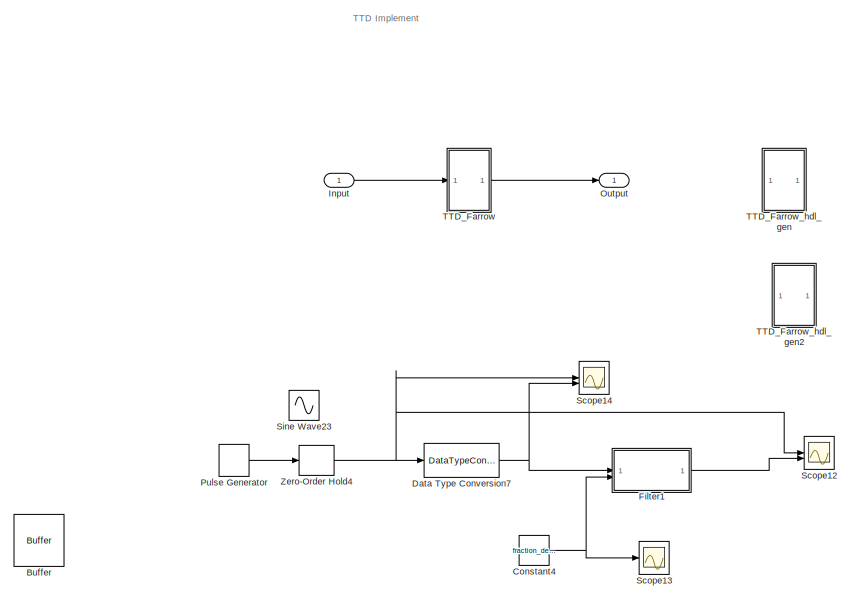
[diagram: root canvas - part 1/4, top left region]
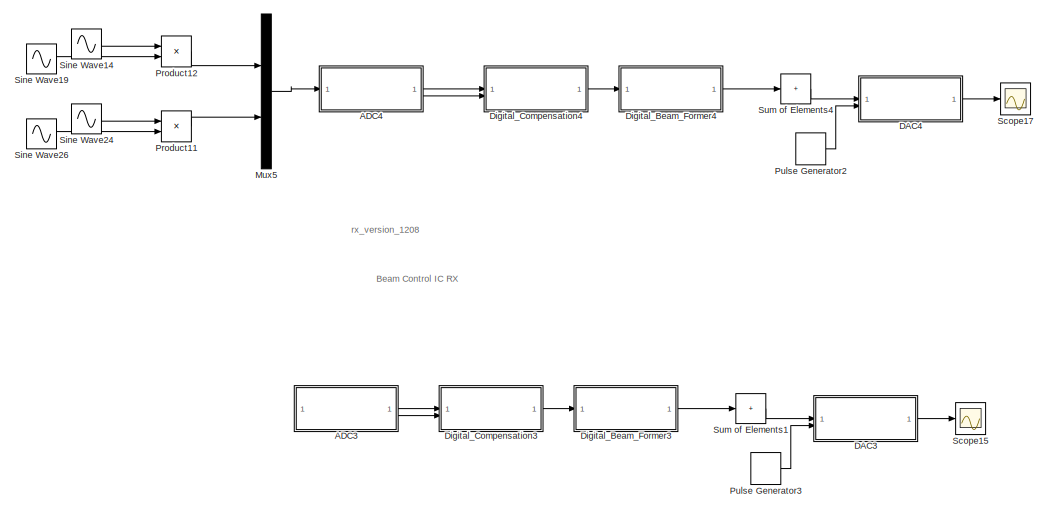
[diagram: root canvas - part 2/4, top center region]
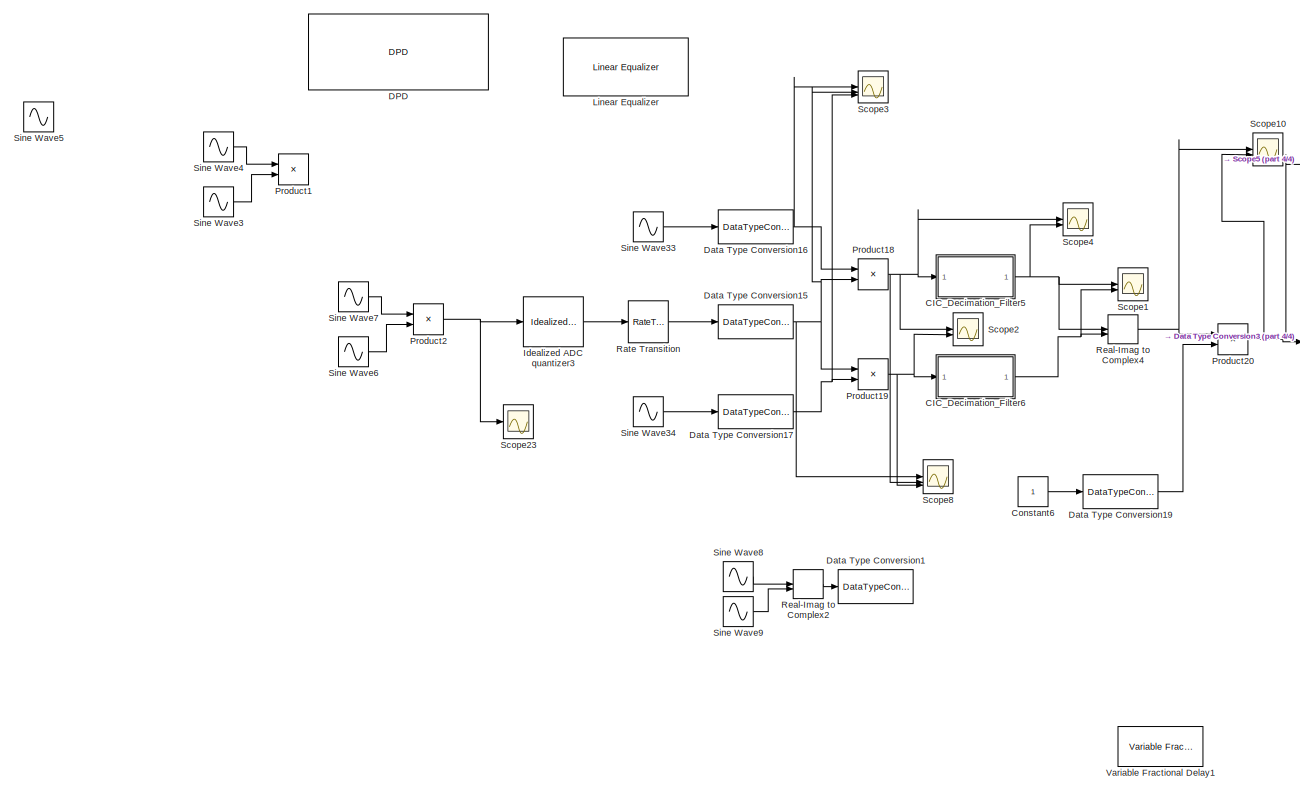
[diagram: root canvas - part 3/4, bottom center region]
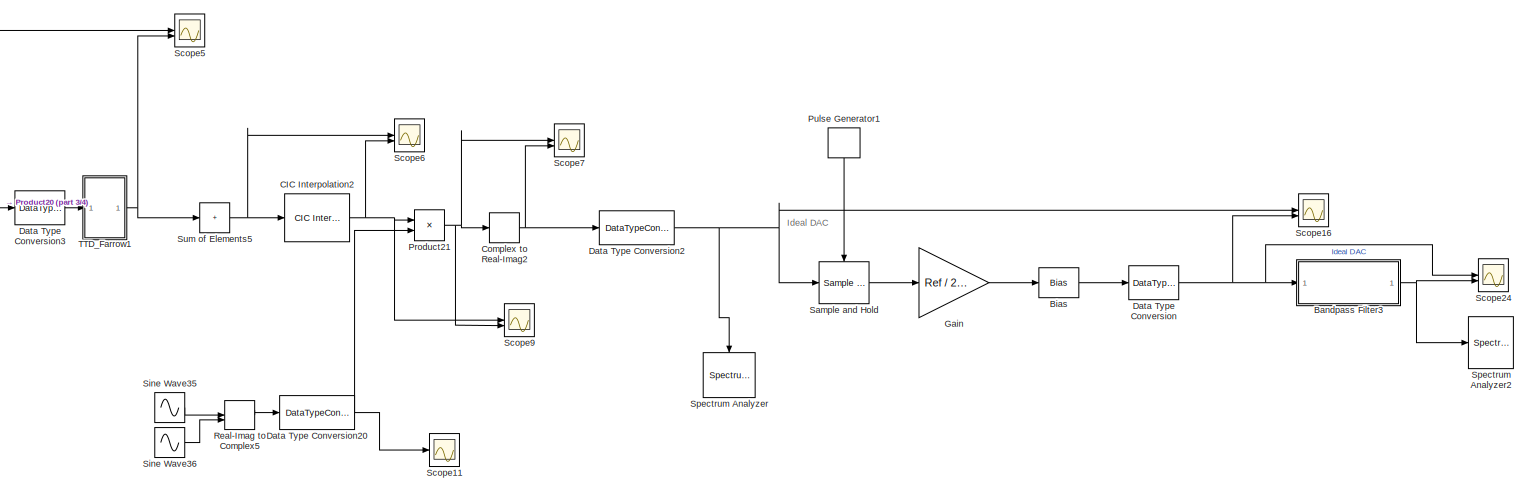
[diagram: root canvas - part 4/4, bottom right region]
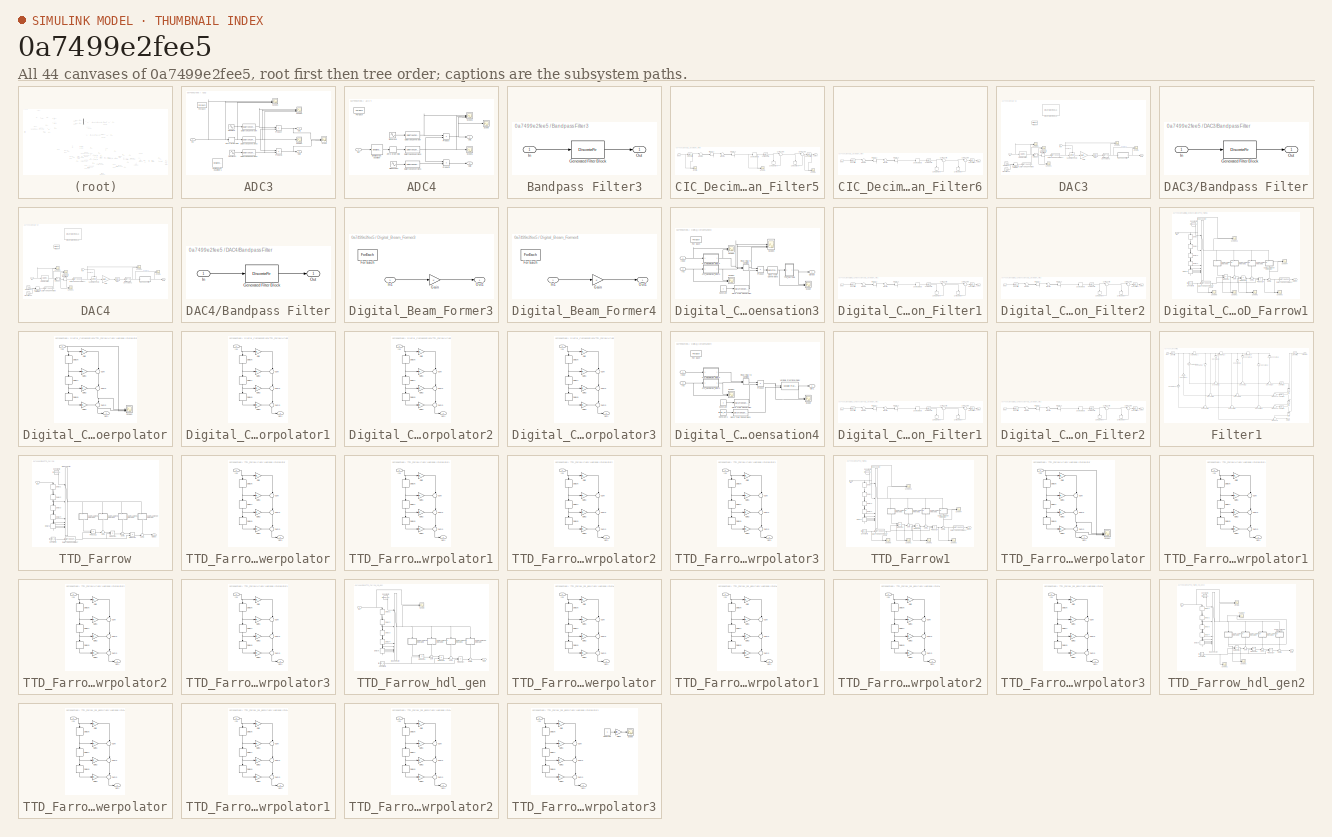
[diagram: thumbnail index - all 44 canvases of the model, root first then tree order]
MODEL slx_0a7499e2fee5
KIND model
CONFIG AbsTol = auto
CONFIG EnableMultiTasking = off
CONFIG FixedStep = auto
CONFIG MaxStep = auto
CONFIG MinStep = auto
CONFIG RelTol = 1e-3
CONFIG SampleTimeConstraint = Unconstrained
CONFIG SolverName = VariableStepAuto
CONFIG StartTime = 0.0
CONFIG StopTime = 136e-9
BLOCK [SubSystem] ADC3
  TreatAsAtomicUnit = on
BLOCK [DataTypeConversion] ADC3/Data Type Conversion
  OutDataTypeStr = fixdt(1,16,6)
  OutMax = 1
  OutMin = -1
  RndMeth = Floor
  SaturateOnIntegerOverflow = off
BLOCK [DataTypeConversion] ADC3/Data Type Conversion1
  OutDataTypeStr = fixdt(1,16,6)
  OutMax = 1
  OutMin = -1
  RndMeth = Floor
  SaturateOnIntegerOverflow = off
BLOCK [DataTypeConversion] ADC3/Data Type Conversion2
  OutDataTypeStr = fixdt(1,16,15)
  OutMax = 0.9
  OutMin = -1
  RndMeth = Floor
  SaturateOnIntegerOverflow = off
BLOCK [ForEach] ADC3/For Each
  DisableCoverage = on
  NameLocation = top
BLOCK [Reference] ADC3/Idealized ADC quantizer1  REF=simulink_extras/Additional
Discrete/Idealized ADC quantizer
  AttributesFormatString = (settings: %<NumberOfConverterBits>-bit converter\nVmin: %<Vmin>, Vmax: %<Vmax>)
  Commented = on
  SourceBlock = simulink_extras/Additional\nDiscrete/Idealized ADC quantizer
  SourceType = IdealADC
BLOCK [Inport] ADC3/In1
  Partition = on
  PartitionDimension = 1
  PartitionOffset = 0
  PartitionWidth = 1
BLOCK [Outport] ADC3/Out1
  ConcatenationDimension = 1
BLOCK [Outport] ADC3/Out2
  ConcatenationDimension = 1
  Port = 2
BLOCK [Product] ADC3/Product
BLOCK [Product] ADC3/Product1
BLOCK [Scope] ADC3/Scope
  Floating = off
  NumInputPorts = 2
  ScopeSpecificationString = Simulink.scopes.TimeScopeBlockCfg('CurrentConfiguration', extmgr.ConfigurationSet(extmgr.Configuration('Core','General UI',true),extmgr.Configuration('Core','Source UI',true),extmgr.Configuration('Sources','WiredSimulink',true,'DataLoggingVariableName','ScopeData5'),extmgr.Configuration('Visuals','Time Domain',true,'SerializedDisplays',{struct('MinYLimReal','-0.00001','MaxYLimReal','0.0001','YLabe...<+2073ch>
BLOCK [Scope] ADC3/Scope1
  Floating = off
  NumInputPorts = 1
  ScopeSpecificationString = Simulink.scopes.TimeScopeBlockCfg('CurrentConfiguration', extmgr.ConfigurationSet(extmgr.Configuration('Core','General UI',true),extmgr.Configuration('Core','Source UI',true),extmgr.Configuration('Sources','WiredSimulink',true,'DataLoggingVariableName','ScopeData6'),extmgr.Configuration('Visuals','Time Domain',true,'SerializedDisplays',{struct('MinYLimReal','-0.00011','MaxYLimReal','0.00008','YLab...<+1415ch>
BLOCK [Scope] ADC3/Scope2
  Floating = off
  NumInputPorts = 3
  ScopeSpecificationString = Simulink.scopes.TimeScopeBlockCfg('CurrentConfiguration', extmgr.ConfigurationSet(extmgr.Configuration('Core','General UI',true),extmgr.Configuration('Core','Source UI',true),extmgr.Configuration('Sources','WiredSimulink',true,'DataLoggingVariableName','ScopeData14'),extmgr.Configuration('Visuals','Time Domain',true,'SerializedDisplays',{struct('MinYLimReal','-1.24805','MaxYLimReal','1.23242','YLa...<+2855ch>
BLOCK [Scope] ADC3/Scope3
  Floating = off
  NumInputPorts = 3
  ScopeSpecificationString = Simulink.scopes.TimeScopeBlockCfg('CurrentConfiguration', extmgr.ConfigurationSet(extmgr.Configuration('Core','General UI',true),extmgr.Configuration('Core','Source UI',true),extmgr.Configuration('Sources','WiredSimulink',true,'DataLoggingVariableName','ScopeData9'),extmgr.Configuration('Visuals','Time Domain',true,'SerializedDisplays',{struct('MinYLimReal','-0.0001','MaxYLimReal','0.0001','YLabel...<+2787ch>
BLOCK [Sin] ADC3/Sine Wave
  Frequency = 2*pi*250e6
  Phase = 1.57
  SampleTime = 1/1e9
BLOCK [Sin] ADC3/Sine Wave1
  Frequency = 2*pi*250e6
  SampleTime = 1/1e9
BLOCK [ZeroOrderHold] ADC3/Zero-Order Hold
  SampleTime = 1/1e9
BLOCK [SubSystem] ADC4
  Commented = on
  TreatAsAtomicUnit = on
BLOCK [DataTypeConversion] ADC4/Data Type Conversion
  OutDataTypeStr = fixdt(1,16,6)
  OutMax = 1
  OutMin = -1
  RndMeth = Floor
  SaturateOnIntegerOverflow = off
BLOCK [DataTypeConversion] ADC4/Data Type Conversion1
  OutDataTypeStr = fixdt(1,16,6)
  OutMax = 1
  OutMin = -1
  RndMeth = Floor
  SaturateOnIntegerOverflow = off
BLOCK [DataTypeConversion] ADC4/Data Type Conversion2
  OutDataTypeStr = fixdt(1,18,6)
  OutMax = 2047
  OutMin = -2048
  RndMeth = Floor
  SaturateOnIntegerOverflow = off
BLOCK [ForEach] ADC4/For Each
  DisableCoverage = on
  NameLocation = top
BLOCK [Reference] ADC4/Idealized ADC quantizer  REF=simulink_extras/Additional
Discrete/Idealized ADC quantizer
  AttributesFormatString = (settings: %<NumberOfConverterBits>-bit converter\nVmin: %<Vmin>, Vmax: %<Vmax>)
  SourceBlock = simulink_extras/Additional\nDiscrete/Idealized ADC quantizer
  SourceType = IdealADC
BLOCK [Inport] ADC4/In1
  Partition = on
  PartitionDimension = 1
  PartitionOffset = 0
  PartitionWidth = 1
BLOCK [Outport] ADC4/Out1
  ConcatenationDimension = 1
BLOCK [Outport] ADC4/Out2
  ConcatenationDimension = 1
  Port = 2
BLOCK [Product] ADC4/Product
BLOCK [Product] ADC4/Product1
BLOCK [Scope] ADC4/Scope
  Floating = off
  NumInputPorts = 1
  ScopeSpecificationString = Simulink.scopes.TimeScopeBlockCfg('CurrentConfiguration', extmgr.ConfigurationSet(extmgr.Configuration('Core','General UI',true),extmgr.Configuration('Core','Source UI',true),extmgr.Configuration('Sources','WiredSimulink',true,'DataLoggingVariableName','ScopeData5'),extmgr.Configuration('Visuals','Time Domain',true,'SerializedDisplays',{struct('MinYLimReal','-2365.00000','MaxYLimReal','2365.00000'...<+1424ch>
BLOCK [Scope] ADC4/Scope1
  Floating = off
  NumInputPorts = 1
  ScopeSpecificationString = Simulink.scopes.TimeScopeBlockCfg('CurrentConfiguration', extmgr.ConfigurationSet(extmgr.Configuration('Core','General UI',true),extmgr.Configuration('Core','Source UI',true),extmgr.Configuration('Sources','WiredSimulink',true,'DataLoggingVariableName','ScopeData6'),extmgr.Configuration('Visuals','Time Domain',true,'SerializedDisplays',{struct('MinYLimReal','-2365.00000','MaxYLimReal','2365.00000'...<+1405ch>
BLOCK [Scope] ADC4/Scope2
  Floating = off
  NumInputPorts = 3
  ScopeSpecificationString = Simulink.scopes.TimeScopeBlockCfg('CurrentConfiguration', extmgr.ConfigurationSet(extmgr.Configuration('Core','General UI',true),extmgr.Configuration('Core','Source UI',true),extmgr.Configuration('Sources','WiredSimulink',true,'DataLoggingVariableName','ScopeData14'),extmgr.Configuration('Visuals','Time Domain',true,'SerializedDisplays',{struct('MinYLimReal','-1.24805','MaxYLimReal','1.23242','YLa...<+2827ch>
BLOCK [Sin] ADC4/Sine Wave
  Frequency = 2*pi*250e6
  Phase = 1.57
  SampleTime = 1/1e9
BLOCK [Sin] ADC4/Sine Wave1
  Frequency = 2*pi*250e6
  SampleTime = 1/1e9
BLOCK [ZeroOrderHold] ADC4/Zero-Order Hold
  SampleTime = 1/1e9
BLOCK [SubSystem] Bandpass Filter3
  CopyFcn = fdesignblkfcn(gcbh, {'CopyFcn'});
  DialogController = fdesignblkfcn
  InitFcn = fdesignblkfcn(gcbh, {'InitFcn'});
  UserDataPersistent = on
BLOCK [DiscreteFir] Bandpass Filter3/Generated Filter Block
  Coefficients = [-0.000551445390270867506 0.000407430436883946413 0.00151170095910276784 0.00170809108636746755 -0.000183233989486140172 -0.00314427517439309695 -0.00408384949539862194 -0.000859536641631024833 0.00458828280495307203 0.00703118910578414639 0.00304274168675388234 -0.00462111674625677576 -0.00882607470501511893 -0.00522014043057489156 0.00277191525149639382 0.00730259808984131537 0.00474853789832731...<+1388ch>
  InputPortMap = u0
  InputProcessing = Columns as channels (frame based)
  OutputPortMap = o0
  Tag = BlockMethodSubSystem
BLOCK [Inport] Bandpass Filter3/In
BLOCK [Outport] Bandpass Filter3/Out
  VectorParamsAs1DForOutWhenUnconnected = off
BLOCK [Bias] Bias
  Bias = Bias
  SaturateOnIntegerOverflow = off
BLOCK [Buffer] Buffer
  Commented = on
  OutputFrames = off
BLOCK [Reference] CIC Interpolation2  REF=dspmlti4/CIC
Interpolation
  LibrarySourceBlock = dsphdlsupportfiltering/CIC\nInterpolation
  SourceBlock = dspmlti4/CIC\nInterpolation
  SourceType = CIC Interpolation
  UserDataPersistent = on
BLOCK [SubSystem] CIC_Decimation_Filter5
  ErrorFcn = dspFilterRealizedInBasicElemsAlgLoopErrFcnCallback
  Tag = FilterWizardSubSystem
  UserDataPersistent = on
BLOCK [DataTypeConversion] CIC_Decimation_Filter5/CombCast5
  OutDataTypeStr = fixdt(1,34,15)
  RndMeth = Floor
  SaturateOnIntegerOverflow = off
BLOCK [Delay] CIC_Decimation_Filter5/CombDelay5
  DelayLength = 1
  InitialCondition = 0
  InputPortMap = u0
  NameLocation = right
BLOCK [Delay] CIC_Decimation_Filter5/CombDelay6
  DelayLength = 1
  InitialCondition = 0
  InputPortMap = u0
  NameLocation = right
BLOCK [Sum] CIC_Decimation_Filter5/CombSum5
  AccumDataTypeStr = fixdt(1,34,15)
  Inputs = |+-
  OutDataTypeStr = fixdt(1,34,15)
BLOCK [Sum] CIC_Decimation_Filter5/CombSum6
  AccumDataTypeStr = fixdt(1,34,15)
  Inputs = |+-
  OutDataTypeStr = fixdt(1,34,15)
BLOCK [DataTypeConversion] CIC_Decimation_Filter5/ConvertIn
  OutDataTypeStr = fixdt(1,32,15)
  RndMeth = Nearest
BLOCK [DataTypeConversion] CIC_Decimation_Filter5/ConvertOut
  OutDataTypeStr = fixdt(1,32,13)
  RndMeth = Floor
  SaturateOnIntegerOverflow = off
BLOCK [DownSample] CIC_Decimation_Filter5/Down Sample
  AllowArbitraryFixedInput = on
  InputProcessing = Elements as channels (sample based)
  RateOptions = Allow multirate processing
BLOCK [Inport] CIC_Decimation_Filter5/Input
BLOCK [Delay] CIC_Decimation_Filter5/IntDelay2
  DelayLength = 1
  InitialCondition = 0
  InputPortMap = u0
BLOCK [Delay] CIC_Decimation_Filter5/IntDelay3
  DelayLength = 1
  InitialCondition = 0
  InputPortMap = u0
BLOCK [Sum] CIC_Decimation_Filter5/IntSum2
  AccumDataTypeStr = fixdt(1,34,15)
  Inputs = |++
  OutDataTypeStr = fixdt(1,34,15)
BLOCK [Sum] CIC_Decimation_Filter5/IntSum3
  AccumDataTypeStr = fixdt(1,34,15)
  Inputs = |++
  OutDataTypeStr = fixdt(1,34,15)
BLOCK [Outport] CIC_Decimation_Filter5/Output
BLOCK [Scope] CIC_Decimation_Filter5/Scope
  Floating = off
  NumInputPorts = 2
  ScopeSpecificationString = Simulink.scopes.TimeScopeBlockCfg('CurrentConfiguration', extmgr.ConfigurationSet(extmgr.Configuration('Core','General UI',true),extmgr.Configuration('Core','Source UI',true),extmgr.Configuration('Sources','WiredSimulink',true,'DataLoggingVariableName','ScopeData1'),extmgr.Configuration('Visuals','Time Domain',true,'SerializedDisplays',{struct('MinYLimReal','-36.95312','MaxYLimReal','36.95312','YL...<+2062ch>
BLOCK [Scope] CIC_Decimation_Filter5/Scope1
  Floating = off
  NumInputPorts = 2
  ScopeSpecificationString = Simulink.scopes.TimeScopeBlockCfg('CurrentConfiguration', extmgr.ConfigurationSet(extmgr.Configuration('Core','General UI',true),extmgr.Configuration('Core','Source UI',true),extmgr.Configuration('Sources','WiredSimulink',true,'DataLoggingVariableName','ScopeData2'),extmgr.Configuration('Visuals','Time Domain',true,'SerializedDisplays',{struct('MinYLimReal','-83.625','MaxYLimReal','752.625','YLabe...<+2028ch>
BLOCK [Scope] CIC_Decimation_Filter5/Scope2
  Floating = off
  NumInputPorts = 2
  ScopeSpecificationString = Simulink.scopes.TimeScopeBlockCfg('CurrentConfiguration', extmgr.ConfigurationSet(extmgr.Configuration('Core','General UI',true),extmgr.Configuration('Core','Source UI',true),extmgr.Configuration('Sources','WiredSimulink',true,'DataLoggingVariableName','ScopeData3'),extmgr.Configuration('Visuals','Time Domain',true,'SerializedDisplays',{struct('MinYLimReal','-73.90625','MaxYLimReal','73.90625','YL...<+2076ch>
BLOCK [SubSystem] CIC_Decimation_Filter6
  ErrorFcn = dspFilterRealizedInBasicElemsAlgLoopErrFcnCallback
  Tag = FilterWizardSubSystem
  UserDataPersistent = on
BLOCK [DataTypeConversion] CIC_Decimation_Filter6/CombCast5
  OutDataTypeStr = fixdt(1,34,15)
  RndMeth = Floor
  SaturateOnIntegerOverflow = off
BLOCK [Delay] CIC_Decimation_Filter6/CombDelay5
  DelayLength = 1
  InitialCondition = 0
  InputPortMap = u0
  NameLocation = right
BLOCK [Delay] CIC_Decimation_Filter6/CombDelay6
  DelayLength = 1
  InitialCondition = 0
  InputPortMap = u0
  NameLocation = right
BLOCK [Sum] CIC_Decimation_Filter6/CombSum5
  AccumDataTypeStr = fixdt(1,34,15)
  Inputs = |+-
  OutDataTypeStr = fixdt(1,34,15)
BLOCK [Sum] CIC_Decimation_Filter6/CombSum6
  AccumDataTypeStr = fixdt(1,34,15)
  Inputs = |+-
  OutDataTypeStr = fixdt(1,34,15)
BLOCK [DataTypeConversion] CIC_Decimation_Filter6/ConvertIn
  OutDataTypeStr = fixdt(1,32,15)
  RndMeth = Nearest
BLOCK [DataTypeConversion] CIC_Decimation_Filter6/ConvertOut
  OutDataTypeStr = fixdt(1,32,13)
  RndMeth = Floor
  SaturateOnIntegerOverflow = off
BLOCK [DownSample] CIC_Decimation_Filter6/Down Sample
  AllowArbitraryFixedInput = on
  InputProcessing = Elements as channels (sample based)
  RateOptions = Allow multirate processing
BLOCK [Inport] CIC_Decimation_Filter6/Input
BLOCK [Delay] CIC_Decimation_Filter6/IntDelay2
  DelayLength = 1
  InitialCondition = 0
  InputPortMap = u0
BLOCK [Delay] CIC_Decimation_Filter6/IntDelay3
  DelayLength = 1
  InitialCondition = 0
  InputPortMap = u0
BLOCK [Sum] CIC_Decimation_Filter6/IntSum2
  AccumDataTypeStr = fixdt(1,34,15)
  Inputs = |++
  OutDataTypeStr = fixdt(1,34,15)
BLOCK [Sum] CIC_Decimation_Filter6/IntSum3
  AccumDataTypeStr = fixdt(1,34,15)
  Inputs = |++
  OutDataTypeStr = fixdt(1,34,15)
BLOCK [Outport] CIC_Decimation_Filter6/Output
BLOCK [ComplexToRealImag] Complex to Real-Imag2
  Output = Real
BLOCK [Constant] Constant4
  Commented = on
  OutDataTypeStr = fixdt(1,16,10)
  OutMax = 1
  OutMin = 0
  Value = fraction_delay
BLOCK [Constant] Constant6
BLOCK [SubSystem] DAC3
  TreatAsAtomicUnit = on
BLOCK [SubSystem] DAC3/Bandpass Filter
  CopyFcn = fdesignblkfcn(gcbh, {'CopyFcn'});
  DialogController = fdesignblkfcn
  InitFcn = fdesignblkfcn(gcbh, {'InitFcn'});
  UserDataPersistent = on
BLOCK [DiscreteFir] DAC3/Bandpass Filter/Generated Filter Block
  Coefficients = [-0.0012202546535986659 -9.13233975482966975e-05 -8.99256829754742885e-05 -8.49568620794813187e-05 -7.65918257031608733e-05 -6.45471094074974157e-05 -4.91277813323746533e-05 -3.02130898541744078e-05 -8.26870645732298906e-06 1.6671662698626823e-05 4.39541890279793922e-05 7.34165310252373626e-05 0.00010423396503717428 0.000136131752137668013 0.000168143983641900536 0.000199929301866810821 0.00023043...<+11371ch>
  InputPortMap = u0
  InputProcessing = Columns as channels (frame based)
  OutputPortMap = o0
  Tag = BlockMethodSubSystem
BLOCK [Inport] DAC3/Bandpass Filter/In
BLOCK [Outport] DAC3/Bandpass Filter/Out
  VectorParamsAs1DForOutWhenUnconnected = off
BLOCK [Bias] DAC3/Bias
  Bias = Bias
  SaturateOnIntegerOverflow = off
BLOCK [Reference] DAC3/Binary Weighted DAC  REF=msbDacArchitectures/Binary Weighted DAC
  Commented = on
  NameLocation = top
  SourceBlock = msbDacArchitectures/Binary Weighted DAC
  SourceType = Binary Weighted DAC
BLOCK [Reference] DAC3/CIC Interpolation  REF=dspmlti4/CIC
Interpolation
  LibrarySourceBlock = dsphdlsupportfiltering/CIC\nInterpolation
  SourceBlock = dspmlti4/CIC\nInterpolation
  SourceType = CIC Interpolation
  UserDataPersistent = on
BLOCK [ComplexToRealImag] DAC3/Complex to Real-Imag
  Output = Real
BLOCK [DataTypeConversion] DAC3/Data Type Conversion
  OutDataTypeStr = fixdt(1,16,6)
  RndMeth = Floor
  SaturateOnIntegerOverflow = off
BLOCK [DataTypeConversion] DAC3/Data Type Conversion1
  OutDataTypeStr = double
  RndMeth = Floor
  SaturateOnIntegerOverflow = off
BLOCK [DataTypeConversion] DAC3/Data Type Conversion2
  OutDataTypeStr = double
  RndMeth = Floor
  SaturateOnIntegerOverflow = off
BLOCK [ForEach] DAC3/For Each
  DisableCoverage = on
BLOCK [Gain] DAC3/Gain
  Gain = Ref / 2^N
BLOCK [Inport] DAC3/In1
  Partition = on
  PartitionDimension = 1
  PartitionOffset = 0
  PartitionWidth = 1
BLOCK [Inport] DAC3/In2
  Partition = on
  PartitionDimension = 1
  PartitionOffset = 0
  PartitionWidth = 1
  Port = 2
BLOCK [Outport] DAC3/Out1
  ConcatenationDimension = 1
BLOCK [Product] DAC3/Product
BLOCK [RealImagToComplex] DAC3/Real-Imag to Complex
BLOCK [Reference] DAC3/Sample and Hold  REF=dspsigops/Sample
and Hold
  SourceBlock = dspsigops/Sample\nand Hold
  SourceType = Sample and Hold
BLOCK [Scope] DAC3/Scope
  Floating = off
  NumInputPorts = 2
  ScopeSpecificationString = Simulink.scopes.TimeScopeBlockCfg('CurrentConfiguration', extmgr.ConfigurationSet(extmgr.Configuration('Core','General UI',true),extmgr.Configuration('Core','Source UI',true),extmgr.Configuration('Sources','WiredSimulink',true,'DataLoggingVariableName','ScopeData2'),extmgr.Configuration('Visuals','Time Domain',true,'SerializedDisplays',{struct('MinYLimReal','-0.0000006','MaxYLimReal','0.0000006','...<+2054ch>
BLOCK [Scope] DAC3/Scope1
  Floating = off
  NumInputPorts = 2
  ScopeSpecificationString = Simulink.scopes.TimeScopeBlockCfg('CurrentConfiguration', extmgr.ConfigurationSet(extmgr.Configuration('Core','General UI',true),extmgr.Configuration('Core','Source UI',true),extmgr.Configuration('Sources','WiredSimulink',true,'DataLoggingVariableName','ScopeData3'),extmgr.Configuration('Visuals','Time Domain',true,'SerializedDisplays',{struct('MinYLimReal','-0.039','MaxYLimReal','0.03851','YLabel...<+2114ch>
BLOCK [Scope] DAC3/Scope2
  Floating = off
  NumInputPorts = 2
  ScopeSpecificationString = Simulink.scopes.TimeScopeBlockCfg('CurrentConfiguration', extmgr.ConfigurationSet(extmgr.Configuration('Core','General UI',true),extmgr.Configuration('Core','Source UI',true),extmgr.Configuration('Sources','WiredSimulink',true,'DataLoggingVariableName','ScopeData4'),extmgr.Configuration('Visuals','Time Domain',true,'SerializedDisplays',{struct('MinYLimReal','-0.01939','MaxYLimReal','0.01952','YLab...<+2144ch>
BLOCK [Scope] DAC3/Scope3
  Floating = off
  NumInputPorts = 2
  ScopeSpecificationString = Simulink.scopes.TimeScopeBlockCfg('CurrentConfiguration', extmgr.ConfigurationSet(extmgr.Configuration('Core','General UI',true),extmgr.Configuration('Core','Source UI',true),extmgr.Configuration('Sources','WiredSimulink',true,'DataLoggingVariableName','ScopeData8'),extmgr.Configuration('Visuals','Time Domain',true,'SerializedDisplays',{struct('MinYLimReal','-0.03879','MaxYLimReal','0.03903','YLab...<+2078ch>
BLOCK [Scope] DAC3/Scope4
  Floating = off
  NumInputPorts = 2
  ScopeSpecificationString = Simulink.scopes.TimeScopeBlockCfg('CurrentConfiguration', extmgr.ConfigurationSet(extmgr.Configuration('Core','General UI',true),extmgr.Configuration('Core','Source UI',true),extmgr.Configuration('Sources','WiredSimulink',true,'DataLoggingVariableName','ScopeData12'),extmgr.Configuration('Visuals','Time Domain',true,'SerializedDisplays',{struct('MinYLimReal','-0.00031','MaxYLimReal','0.0003','YLab...<+2129ch>
BLOCK [Sin] DAC3/Sine Wave
  Frequency = 2*pi*250e6
  Phase = 1.57
  SampleTime = 1/1e9
BLOCK [Sin] DAC3/Sine Wave2
  Frequency = 2*pi*250e6
  SampleTime = 1/1e9
BLOCK [SubSystem] DAC4
  Commented = on
  TreatAsAtomicUnit = on
BLOCK [SubSystem] DAC4/Bandpass Filter
  CopyFcn = fdesignblkfcn(gcbh, {'CopyFcn'});
  DialogController = fdesignblkfcn
  InitFcn = fdesignblkfcn(gcbh, {'InitFcn'});
  UserDataPersistent = on
BLOCK [DiscreteFir] DAC4/Bandpass Filter/Generated Filter Block
  Coefficients = [-0.0012202546535986659 -9.13233975482966975e-05 -8.99256829754742885e-05 -8.49568620794813187e-05 -7.65918257031608733e-05 -6.45471094074974157e-05 -4.91277813323746533e-05 -3.02130898541744078e-05 -8.26870645732298906e-06 1.6671662698626823e-05 4.39541890279793922e-05 7.34165310252373626e-05 0.00010423396503717428 0.000136131752137668013 0.000168143983641900536 0.000199929301866810821 0.00023043...<+11371ch>
  InputPortMap = u0
  InputProcessing = Columns as channels (frame based)
  OutputPortMap = o0
  Tag = BlockMethodSubSystem
BLOCK [Inport] DAC4/Bandpass Filter/In
BLOCK [Outport] DAC4/Bandpass Filter/Out
  VectorParamsAs1DForOutWhenUnconnected = off
BLOCK [Bias] DAC4/Bias
  Bias = Bias
  SaturateOnIntegerOverflow = off
BLOCK [Reference] DAC4/Binary Weighted DAC  REF=msbDacArchitectures/Binary Weighted DAC
  Commented = on
  NameLocation = top
  SourceBlock = msbDacArchitectures/Binary Weighted DAC
  SourceType = Binary Weighted DAC
BLOCK [Reference] DAC4/CIC Interpolation  REF=dspmlti4/CIC
Interpolation
  LibrarySourceBlock = dsphdlsupportfiltering/CIC\nInterpolation
  SourceBlock = dspmlti4/CIC\nInterpolation
  SourceType = CIC Interpolation
  UserDataPersistent = on
BLOCK [ComplexToRealImag] DAC4/Complex to Real-Imag
  Output = Real
BLOCK [DataTypeConversion] DAC4/Data Type Conversion
  OutDataTypeStr = fixdt(1,16,6)
  RndMeth = Floor
  SaturateOnIntegerOverflow = off
BLOCK [DataTypeConversion] DAC4/Data Type Conversion1
  OutDataTypeStr = double
  RndMeth = Floor
  SaturateOnIntegerOverflow = off
BLOCK [DataTypeConversion] DAC4/Data Type Conversion2
  OutDataTypeStr = double
  RndMeth = Floor
  SaturateOnIntegerOverflow = off
BLOCK [ForEach] DAC4/For Each
  DisableCoverage = on
BLOCK [Gain] DAC4/Gain
  Gain = Ref / 2^N
BLOCK [Inport] DAC4/In1
  Partition = on
  PartitionDimension = 1
  PartitionOffset = 0
  PartitionWidth = 1
BLOCK [Inport] DAC4/In2
  Partition = on
  PartitionDimension = 1
  PartitionOffset = 0
  PartitionWidth = 1
  Port = 2
BLOCK [Outport] DAC4/Out1
  ConcatenationDimension = 1
BLOCK [Product] DAC4/Product
BLOCK [RealImagToComplex] DAC4/Real-Imag to Complex
BLOCK [Reference] DAC4/Sample and Hold  REF=dspsigops/Sample
and Hold
  SourceBlock = dspsigops/Sample\nand Hold
  SourceType = Sample and Hold
BLOCK [Scope] DAC4/Scope
  Floating = off
  NumInputPorts = 2
  ScopeSpecificationString = Simulink.scopes.TimeScopeBlockCfg('CurrentConfiguration', extmgr.ConfigurationSet(extmgr.Configuration('Core','General UI',true),extmgr.Configuration('Core','Source UI',true),extmgr.Configuration('Sources','WiredSimulink',true,'DataLoggingVariableName','ScopeData2'),extmgr.Configuration('Visuals','Time Domain',true,'SerializedDisplays',{struct('MinYLimReal','-37.83538','MaxYLimReal','37.83538','YL...<+2043ch>
BLOCK [Scope] DAC4/Scope1
  Floating = off
  NumInputPorts = 2
  ScopeSpecificationString = Simulink.scopes.TimeScopeBlockCfg('CurrentConfiguration', extmgr.ConfigurationSet(extmgr.Configuration('Core','General UI',true),extmgr.Configuration('Core','Source UI',true),extmgr.Configuration('Sources','WiredSimulink',true,'DataLoggingVariableName','ScopeData3'),extmgr.Configuration('Visuals','Time Domain',true,'SerializedDisplays',{struct('MinYLimReal','-18919.56696','MaxYLimReal','18919.5669...<+2141ch>
BLOCK [Scope] DAC4/Scope2
  Floating = off
  NumInputPorts = 2
  ScopeSpecificationString = Simulink.scopes.TimeScopeBlockCfg('CurrentConfiguration', extmgr.ConfigurationSet(extmgr.Configuration('Core','General UI',true),extmgr.Configuration('Core','Source UI',true),extmgr.Configuration('Sources','WiredSimulink',true,'DataLoggingVariableName','ScopeData4'),extmgr.Configuration('Visuals','Time Domain',true,'SerializedDisplays',{struct('MinYLimReal','-9460.00000','MaxYLimReal','9460.00000'...<+2163ch>
BLOCK [Scope] DAC4/Scope3
  Floating = off
  NumInputPorts = 2
  ScopeSpecificationString = Simulink.scopes.TimeScopeBlockCfg('CurrentConfiguration', extmgr.ConfigurationSet(extmgr.Configuration('Core','General UI',true),extmgr.Configuration('Core','Source UI',true),extmgr.Configuration('Sources','WiredSimulink',true,'DataLoggingVariableName','ScopeData8'),extmgr.Configuration('Visuals','Time Domain',true,'SerializedDisplays',{struct('MinYLimReal','-18919.56696','MaxYLimReal','18919.5669...<+2101ch>
BLOCK [Scope] DAC4/Scope4
  Floating = off
  NumInputPorts = 2
  ScopeSpecificationString = Simulink.scopes.TimeScopeBlockCfg('CurrentConfiguration', extmgr.ConfigurationSet(extmgr.Configuration('Core','General UI',true),extmgr.Configuration('Core','Source UI',true),extmgr.Configuration('Sources','WiredSimulink',true,'DataLoggingVariableName','ScopeData12'),extmgr.Configuration('Visuals','Time Domain',true,'SerializedDisplays',{struct('MinYLimReal','-18917.69043','MaxYLimReal','18917.690...<+2117ch>
BLOCK [Sin] DAC4/Sine Wave
  Frequency = 2*pi*250e6
  Phase = 1.57
  SampleTime = 1/1e9
BLOCK [Sin] DAC4/Sine Wave2
  Frequency = 2*pi*250e6
  SampleTime = 1/1e9
BLOCK [Reference] DPD  REF=commrfcorlib/DPD
  Commented = on
  SourceBlock = commrfcorlib/DPD
  SourceType = DPD
BLOCK [DataTypeConversion] Data Type Conversion
  OutDataTypeStr = double
  RndMeth = Floor
  SaturateOnIntegerOverflow = off
BLOCK [DataTypeConversion] Data Type Conversion1
  OutDataTypeStr = fixdt(1,16,0)
  RndMeth = Floor
  SaturateOnIntegerOverflow = off
BLOCK [DataTypeConversion] Data Type Conversion15
  OutDataTypeStr = fixdt(1,16,6)
  RndMeth = Floor
  SaturateOnIntegerOverflow = off
BLOCK [DataTypeConversion] Data Type Conversion16
  OutDataTypeStr = fixdt(1,8,6)
  RndMeth = Floor
  SaturateOnIntegerOverflow = off
BLOCK [DataTypeConversion] Data Type Conversion17
  OutDataTypeStr = fixdt(1,8,6)
  RndMeth = Floor
  SaturateOnIntegerOverflow = off
BLOCK [DataTypeConversion] Data Type Conversion19
  OutDataTypeStr = fixdt(1,16,6)
  RndMeth = Floor
  SaturateOnIntegerOverflow = off
BLOCK [DataTypeConversion] Data Type Conversion2
  OutDataTypeStr = fixdt(1,16,0)
  RndMeth = Floor
  SaturateOnIntegerOverflow = off
BLOCK [DataTypeConversion] Data Type Conversion20
  OutDataTypeStr = fixdt(1,16,6)
  RndMeth = Floor
  SaturateOnIntegerOverflow = off
BLOCK [DataTypeConversion] Data Type Conversion3
  OutDataTypeStr = fixdt(1,16,6)
  RndMeth = Floor
  SaturateOnIntegerOverflow = off
BLOCK [DataTypeConversion] Data Type Conversion7
  OutDataTypeStr = fixdt(1,8,6)
  OutMax = 0.99
  OutMin = -1
  RndMeth = Floor
  SaturateOnIntegerOverflow = off
BLOCK [SubSystem] Digital_Beam_Former3
  TreatAsAtomicUnit = on
BLOCK [ForEach] Digital_Beam_Former3/For Each
  DisableCoverage = on
BLOCK [Gain] Digital_Beam_Former3/Gain
  NameLocation = top
  OutDataTypeStr = Inherit: Same as input
BLOCK [Inport] Digital_Beam_Former3/In1
  Partition = on
  PartitionDimension = 1
  PartitionOffset = 0
  PartitionWidth = 1
BLOCK [Outport] Digital_Beam_Former3/Out1
  ConcatenationDimension = 1
BLOCK [SubSystem] Digital_Beam_Former4
  Commented = on
  TreatAsAtomicUnit = on
BLOCK [ForEach] Digital_Beam_Former4/For Each
  DisableCoverage = on
BLOCK [Gain] Digital_Beam_Former4/Gain
  NameLocation = top
  OutDataTypeStr = Inherit: Same as input
BLOCK [Inport] Digital_Beam_Former4/In1
  Partition = on
  PartitionDimension = 1
  PartitionOffset = 0
  PartitionWidth = 1
BLOCK [Outport] Digital_Beam_Former4/Out1
  ConcatenationDimension = 1
BLOCK [SubSystem] Digital_Compensation3
  TreatAsAtomicUnit = on
BLOCK [SubSystem] Digital_Compensation3/CIC_Decimation_Filter1
  ErrorFcn = dspFilterRealizedInBasicElemsAlgLoopErrFcnCallback
  Tag = FilterWizardSubSystem
  UserDataPersistent = on
BLOCK [DataTypeConversion] Digital_Compensation3/CIC_Decimation_Filter1/CombCast5
  OutDataTypeStr = fixdt(1,34,15)
  RndMeth = Floor
  SaturateOnIntegerOverflow = off
BLOCK [Delay] Digital_Compensation3/CIC_Decimation_Filter1/CombDelay5
  DelayLength = 1
  InitialCondition = 0
  InputPortMap = u0
  NameLocation = right
BLOCK [Delay] Digital_Compensation3/CIC_Decimation_Filter1/CombDelay6
  DelayLength = 1
  InitialCondition = 0
  InputPortMap = u0
  NameLocation = right
BLOCK [Sum] Digital_Compensation3/CIC_Decimation_Filter1/CombSum5
  AccumDataTypeStr = fixdt(1,34,15)
  Inputs = |+-
  OutDataTypeStr = fixdt(1,34,15)
BLOCK [Sum] Digital_Compensation3/CIC_Decimation_Filter1/CombSum6
  AccumDataTypeStr = fixdt(1,34,15)
  Inputs = |+-
  OutDataTypeStr = fixdt(1,34,15)
BLOCK [DataTypeConversion] Digital_Compensation3/CIC_Decimation_Filter1/ConvertIn
  OutDataTypeStr = fixdt(1,32,15)
  RndMeth = Nearest
BLOCK [DataTypeConversion] Digital_Compensation3/CIC_Decimation_Filter1/ConvertOut
  OutDataTypeStr = fixdt(1,32,13)
  RndMeth = Floor
  SaturateOnIntegerOverflow = off
BLOCK [DownSample] Digital_Compensation3/CIC_Decimation_Filter1/Down Sample
  AllowArbitraryFixedInput = on
  InputProcessing = Elements as channels (sample based)
  RateOptions = Allow multirate processing
BLOCK [Inport] Digital_Compensation3/CIC_Decimation_Filter1/Input
BLOCK [Delay] Digital_Compensation3/CIC_Decimation_Filter1/IntDelay2
  DelayLength = 1
  InitialCondition = 0
  InputPortMap = u0
BLOCK [Delay] Digital_Compensation3/CIC_Decimation_Filter1/IntDelay3
  DelayLength = 1
  InitialCondition = 0
  InputPortMap = u0
BLOCK [Sum] Digital_Compensation3/CIC_Decimation_Filter1/IntSum2
  AccumDataTypeStr = fixdt(1,34,15)
  Inputs = |++
  OutDataTypeStr = fixdt(1,34,15)
BLOCK [Sum] Digital_Compensation3/CIC_Decimation_Filter1/IntSum3
  AccumDataTypeStr = fixdt(1,34,15)
  Inputs = |++
  OutDataTypeStr = fixdt(1,34,15)
BLOCK [Outport] Digital_Compensation3/CIC_Decimation_Filter1/Output
BLOCK [SubSystem] Digital_Compensation3/CIC_Decimation_Filter2
  ErrorFcn = dspFilterRealizedInBasicElemsAlgLoopErrFcnCallback
  Tag = FilterWizardSubSystem
  UserDataPersistent = on
BLOCK [DataTypeConversion] Digital_Compensation3/CIC_Decimation_Filter2/CombCast5
  OutDataTypeStr = fixdt(1,34,15)
  RndMeth = Floor
  SaturateOnIntegerOverflow = off
BLOCK [Delay] Digital_Compensation3/CIC_Decimation_Filter2/CombDelay5
  DelayLength = 1
  InitialCondition = 0
  InputPortMap = u0
  NameLocation = right
BLOCK [Delay] Digital_Compensation3/CIC_Decimation_Filter2/CombDelay6
  DelayLength = 1
  InitialCondition = 0
  InputPortMap = u0
  NameLocation = right
BLOCK [Sum] Digital_Compensation3/CIC_Decimation_Filter2/CombSum5
  AccumDataTypeStr = fixdt(1,34,15)
  Inputs = |+-
  OutDataTypeStr = fixdt(1,34,15)
BLOCK [Sum] Digital_Compensation3/CIC_Decimation_Filter2/CombSum6
  AccumDataTypeStr = fixdt(1,34,15)
  Inputs = |+-
  OutDataTypeStr = fixdt(1,34,15)
BLOCK [DataTypeConversion] Digital_Compensation3/CIC_Decimation_Filter2/ConvertIn
  OutDataTypeStr = fixdt(1,32,15)
  RndMeth = Nearest
BLOCK [DataTypeConversion] Digital_Compensation3/CIC_Decimation_Filter2/ConvertOut
  OutDataTypeStr = fixdt(1,32,13)
  RndMeth = Floor
  SaturateOnIntegerOverflow = off
BLOCK [DownSample] Digital_Compensation3/CIC_Decimation_Filter2/Down Sample
  AllowArbitraryFixedInput = on
  InputProcessing = Elements as channels (sample based)
  RateOptions = Allow multirate processing
BLOCK [Inport] Digital_Compensation3/CIC_Decimation_Filter2/Input
BLOCK [Delay] Digital_Compensation3/CIC_Decimation_Filter2/IntDelay2
  DelayLength = 1
  InitialCondition = 0
  InputPortMap = u0
BLOCK [Delay] Digital_Compensation3/CIC_Decimation_Filter2/IntDelay3
  DelayLength = 1
  InitialCondition = 0
  InputPortMap = u0
BLOCK [Sum] Digital_Compensation3/CIC_Decimation_Filter2/IntSum2
  AccumDataTypeStr = fixdt(1,34,15)
  Inputs = |++
  OutDataTypeStr = fixdt(1,34,15)
BLOCK [Sum] Digital_Compensation3/CIC_Decimation_Filter2/IntSum3
  AccumDataTypeStr = fixdt(1,34,15)
  Inputs = |++
  OutDataTypeStr = fixdt(1,34,15)
BLOCK [Outport] Digital_Compensation3/CIC_Decimation_Filter2/Output
BLOCK [Constant] Digital_Compensation3/Constant
BLOCK [DataTypeConversion] Digital_Compensation3/Data Type Conversion
  OutDataTypeStr = fixdt(1,16,0)
  RndMeth = Floor
  SaturateOnIntegerOverflow = off
BLOCK [DataTypeConversion] Digital_Compensation3/Data Type Conversion3
  OutDataTypeStr = fixdt(1,16,6)
  RndMeth = Floor
  SaturateOnIntegerOverflow = off
BLOCK [ForEach] Digital_Compensation3/For Each
  DisableCoverage = on
BLOCK [Inport] Digital_Compensation3/In2
  Partition = on
  PartitionDimension = 1
  PartitionOffset = 0
  PartitionWidth = 1
  Port = 2
BLOCK [Inport] Digital_Compensation3/Input
  Partition = on
  PartitionDimension = 1
  PartitionOffset = 0
  PartitionWidth = 1
BLOCK [Outport] Digital_Compensation3/Output
  ConcatenationDimension = 1
BLOCK [Product] Digital_Compensation3/Product
BLOCK [RealImagToComplex] Digital_Compensation3/Real-Imag to Complex
BLOCK [Scope] Digital_Compensation3/Scope
  Floating = off
  NumInputPorts = 2
  ScopeSpecificationString = Simulink.scopes.TimeScopeBlockCfg('CurrentConfiguration', extmgr.ConfigurationSet(extmgr.Configuration('Core','General UI',true),extmgr.Configuration('Core','Source UI',true),extmgr.Configuration('Sources','WiredSimulink',true,'DataLoggingVariableName','ScopeData1'),extmgr.Configuration('Visuals','Time Domain',true,'SerializedDisplays',{struct('MinYLimReal','-0.00015','MaxYLimReal','0.00015','YLab...<+2176ch>
BLOCK [Scope] Digital_Compensation3/Scope1
  Floating = off
  NumInputPorts = 2
  ScopeSpecificationString = Simulink.scopes.TimeScopeBlockCfg('CurrentConfiguration', extmgr.ConfigurationSet(extmgr.Configuration('Core','General UI',true),extmgr.Configuration('Core','Source UI',true),extmgr.Configuration('Sources','WiredSimulink',true,'DataLoggingVariableName','ScopeData13'),extmgr.Configuration('Visuals','Time Domain',true,'SerializedDisplays',{struct('MinYLimReal','-0.00014','MaxYLimReal','0.00002','YLa...<+2100ch>
BLOCK [Scope] Digital_Compensation3/Scope2
  Floating = off
  NumInputPorts = 2
  ScopeSpecificationString = Simulink.scopes.TimeScopeBlockCfg('CurrentConfiguration', extmgr.ConfigurationSet(extmgr.Configuration('Core','General UI',true),extmgr.Configuration('Core','Source UI',true),extmgr.Configuration('Sources','WiredSimulink',true,'DataLoggingVariableName','ScopeData10'),extmgr.Configuration('Visuals','Time Domain',true,'SerializedDisplays',{struct('MinYLimReal','-0.00001','MaxYLimReal','0.0001','YLab...<+2120ch>
BLOCK [Scope] Digital_Compensation3/Scope3
  Floating = off
  NumInputPorts = 3
  ScopeSpecificationString = Simulink.scopes.TimeScopeBlockCfg('CurrentConfiguration', extmgr.ConfigurationSet(extmgr.Configuration('Core','General UI',true),extmgr.Configuration('Core','Source UI',true),extmgr.Configuration('Sources','WiredSimulink',true,'DataLoggingVariableName','ScopeData11'),extmgr.Configuration('Visuals','Time Domain',true,'SerializedDisplays',{struct('MinYLimReal','-0.00002','MaxYLimReal','0.00014','YLa...<+2889ch>
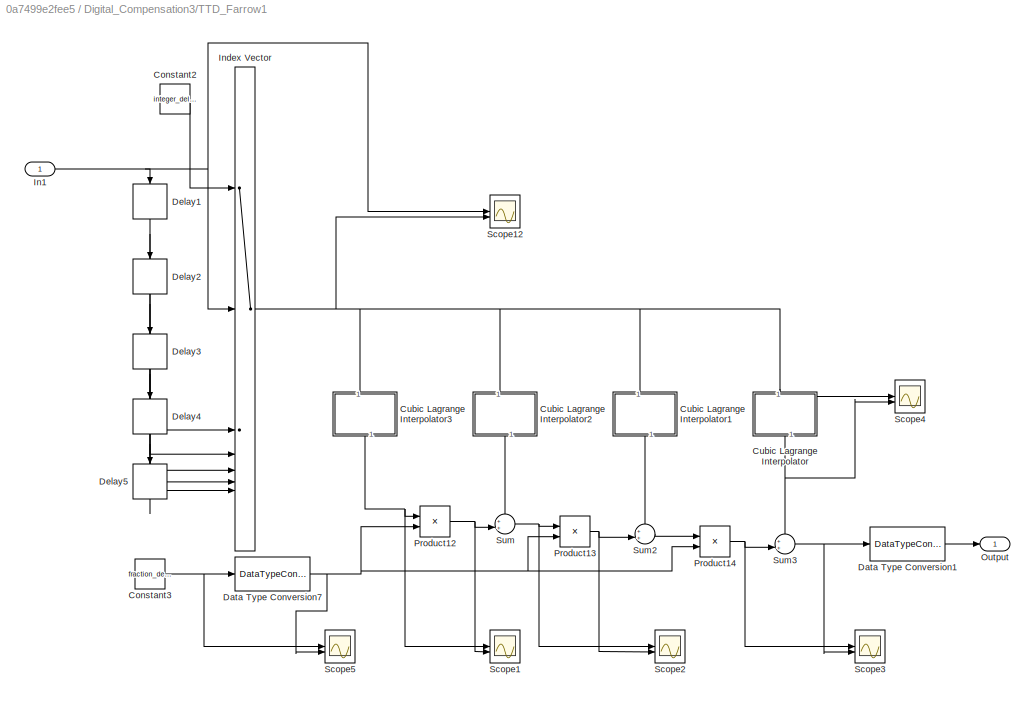
BLOCK [SubSystem] Digital_Compensation3/TTD_Farrow1
BLOCK [Constant] Digital_Compensation3/TTD_Farrow1/Constant2
  Value = integer_delay
BLOCK [Constant] Digital_Compensation3/TTD_Farrow1/Constant3
  Value = fraction_delay
BLOCK [SubSystem] Digital_Compensation3/TTD_Farrow1/Cubic Lagrange Interpolator
  NameLocation = left
BLOCK [Delay] Digital_Compensation3/TTD_Farrow1/Cubic Lagrange Interpolator/Delay6
  DelayLength = 1
  InputPortMap = u0
  NameLocation = left
BLOCK [Delay] Digital_Compensation3/TTD_Farrow1/Cubic Lagrange Interpolator/Delay7
  DelayLength = 1
  InputPortMap = u0
  NameLocation = left
BLOCK [Delay] Digital_Compensation3/TTD_Farrow1/Cubic Lagrange Interpolator/Delay8
  DelayLength = 1
  InputPortMap = u0
  NameLocation = left
BLOCK [Gain] Digital_Compensation3/TTD_Farrow1/Cubic Lagrange Interpolator/Gain
  Gain = filter_gain0_3
BLOCK [Gain] Digital_Compensation3/TTD_Farrow1/Cubic Lagrange Interpolator/Gain1
  Gain = filter_gain0_2
BLOCK [Gain] Digital_Compensation3/TTD_Farrow1/Cubic Lagrange Interpolator/Gain2
  Gain = filter_gain0_1
BLOCK [Gain] Digital_Compensation3/TTD_Farrow1/Cubic Lagrange Interpolator/Gain3
  Gain = filter_gain0_0
BLOCK [Inport] Digital_Compensation3/TTD_Farrow1/Cubic Lagrange Interpolator/In1
BLOCK [Outport] Digital_Compensation3/TTD_Farrow1/Cubic Lagrange Interpolator/Out1
BLOCK [Scope] Digital_Compensation3/TTD_Farrow1/Cubic Lagrange Interpolator/Scope2
  Floating = off
  NumInputPorts = 3
  ScopeSpecificationString = Simulink.scopes.TimeScopeBlockCfg('CurrentConfiguration', extmgr.ConfigurationSet(extmgr.Configuration('Core','General UI',true),extmgr.Configuration('Core','Source UI',true),extmgr.Configuration('Sources','WiredSimulink',true,'DataLoggingVariableName','ScopeData13'),extmgr.Configuration('Visuals','Time Domain',true,'SerializedDisplays',{struct('MinYLimReal','-0.125','MaxYLimReal','1.125','YLabelR...<+3111ch>
BLOCK [Sum] Digital_Compensation3/TTD_Farrow1/Cubic Lagrange Interpolator/Sum
  Inputs = ++|
  NameLocation = left
BLOCK [Sum] Digital_Compensation3/TTD_Farrow1/Cubic Lagrange Interpolator/Sum2
  Inputs = ++|
  NameLocation = left
BLOCK [Sum] Digital_Compensation3/TTD_Farrow1/Cubic Lagrange Interpolator/Sum3
  Inputs = ++|
  NameLocation = left
BLOCK [SubSystem] Digital_Compensation3/TTD_Farrow1/Cubic Lagrange Interpolator1
  NameLocation = left
BLOCK [Delay] Digital_Compensation3/TTD_Farrow1/Cubic Lagrange Interpolator1/Delay6
  DelayLength = 1
  InputPortMap = u0
  NameLocation = left
BLOCK [Delay] Digital_Compensation3/TTD_Farrow1/Cubic Lagrange Interpolator1/Delay7
  DelayLength = 1
  InputPortMap = u0
  NameLocation = left
BLOCK [Delay] Digital_Compensation3/TTD_Farrow1/Cubic Lagrange Interpolator1/Delay8
  DelayLength = 1
  InputPortMap = u0
  NameLocation = left
BLOCK [Gain] Digital_Compensation3/TTD_Farrow1/Cubic Lagrange Interpolator1/Gain
  Gain = filter_gain1_3
BLOCK [Gain] Digital_Compensation3/TTD_Farrow1/Cubic Lagrange Interpolator1/Gain1
  Gain = filter_gain1_2
BLOCK [Gain] Digital_Compensation3/TTD_Farrow1/Cubic Lagrange Interpolator1/Gain2
  Gain = filter_gain1_1
BLOCK [Gain] Digital_Compensation3/TTD_Farrow1/Cubic Lagrange Interpolator1/Gain3
  Gain = filter_gain1_0
BLOCK [Inport] Digital_Compensation3/TTD_Farrow1/Cubic Lagrange Interpolator1/In1
BLOCK [Outport] Digital_Compensation3/TTD_Farrow1/Cubic Lagrange Interpolator1/Out1
BLOCK [Sum] Digital_Compensation3/TTD_Farrow1/Cubic Lagrange Interpolator1/Sum
  Inputs = ++|
  NameLocation = left
BLOCK [Sum] Digital_Compensation3/TTD_Farrow1/Cubic Lagrange Interpolator1/Sum2
  Inputs = ++|
  NameLocation = left
BLOCK [Sum] Digital_Compensation3/TTD_Farrow1/Cubic Lagrange Interpolator1/Sum3
  Inputs = ++|
  NameLocation = left
BLOCK [SubSystem] Digital_Compensation3/TTD_Farrow1/Cubic Lagrange Interpolator2
  NameLocation = left
BLOCK [Delay] Digital_Compensation3/TTD_Farrow1/Cubic Lagrange Interpolator2/Delay6
  DelayLength = 1
  InputPortMap = u0
  NameLocation = left
BLOCK [Delay] Digital_Compensation3/TTD_Farrow1/Cubic Lagrange Interpolator2/Delay7
  DelayLength = 1
  InputPortMap = u0
  NameLocation = left
BLOCK [Delay] Digital_Compensation3/TTD_Farrow1/Cubic Lagrange Interpolator2/Delay8
  DelayLength = 1
  InputPortMap = u0
  NameLocation = left
BLOCK [Gain] Digital_Compensation3/TTD_Farrow1/Cubic Lagrange Interpolator2/Gain
  Gain = filter_gain2_3
BLOCK [Gain] Digital_Compensation3/TTD_Farrow1/Cubic Lagrange Interpolator2/Gain1
  Gain = filter_gain2_2
BLOCK [Gain] Digital_Compensation3/TTD_Farrow1/Cubic Lagrange Interpolator2/Gain2
  Gain = filter_gain2_1
BLOCK [Gain] Digital_Compensation3/TTD_Farrow1/Cubic Lagrange Interpolator2/Gain3
  Gain = filter_gain2_0
BLOCK [Inport] Digital_Compensation3/TTD_Farrow1/Cubic Lagrange Interpolator2/In1
BLOCK [Outport] Digital_Compensation3/TTD_Farrow1/Cubic Lagrange Interpolator2/Out1
BLOCK [Sum] Digital_Compensation3/TTD_Farrow1/Cubic Lagrange Interpolator2/Sum
  Inputs = ++|
  NameLocation = left
BLOCK [Sum] Digital_Compensation3/TTD_Farrow1/Cubic Lagrange Interpolator2/Sum2
  Inputs = ++|
  NameLocation = left
BLOCK [Sum] Digital_Compensation3/TTD_Farrow1/Cubic Lagrange Interpolator2/Sum3
  Inputs = ++|
  NameLocation = left
BLOCK [SubSystem] Digital_Compensation3/TTD_Farrow1/Cubic Lagrange Interpolator3
  NameLocation = left
BLOCK [Delay] Digital_Compensation3/TTD_Farrow1/Cubic Lagrange Interpolator3/Delay6
  DelayLength = 1
  InputPortMap = u0
  NameLocation = left
BLOCK [Delay] Digital_Compensation3/TTD_Farrow1/Cubic Lagrange Interpolator3/Delay7
  DelayLength = 1
  InputPortMap = u0
  NameLocation = left
BLOCK [Delay] Digital_Compensation3/TTD_Farrow1/Cubic Lagrange Interpolator3/Delay8
  DelayLength = 1
  InputPortMap = u0
  NameLocation = left
BLOCK [Gain] Digital_Compensation3/TTD_Farrow1/Cubic Lagrange Interpolator3/Gain
  Gain = filter_gain3_3
BLOCK [Gain] Digital_Compensation3/TTD_Farrow1/Cubic Lagrange Interpolator3/Gain1
  Gain = filter_gain3_2
BLOCK [Gain] Digital_Compensation3/TTD_Farrow1/Cubic Lagrange Interpolator3/Gain2
  Gain = filter_gain3_1
BLOCK [Gain] Digital_Compensation3/TTD_Farrow1/Cubic Lagrange Interpolator3/Gain3
  Gain = filter_gain3_0
BLOCK [Inport] Digital_Compensation3/TTD_Farrow1/Cubic Lagrange Interpolator3/In1
BLOCK [Outport] Digital_Compensation3/TTD_Farrow1/Cubic Lagrange Interpolator3/Out1
BLOCK [Sum] Digital_Compensation3/TTD_Farrow1/Cubic Lagrange Interpolator3/Sum
  Inputs = ++|
  NameLocation = left
BLOCK [Sum] Digital_Compensation3/TTD_Farrow1/Cubic Lagrange Interpolator3/Sum2
  Inputs = ++|
  NameLocation = left
BLOCK [Sum] Digital_Compensation3/TTD_Farrow1/Cubic Lagrange Interpolator3/Sum3
  Inputs = ++|
  NameLocation = left
BLOCK [DataTypeConversion] Digital_Compensation3/TTD_Farrow1/Data Type Conversion1
  OutDataTypeStr = fixdt(1,16,6)
  RndMeth = Floor
  SaturateOnIntegerOverflow = off
BLOCK [DataTypeConversion] Digital_Compensation3/TTD_Farrow1/Data Type Conversion7
  OutDataTypeStr = fixdt(1,16,6)
  RndMeth = Floor
  SaturateOnIntegerOverflow = off
BLOCK [Delay] Digital_Compensation3/TTD_Farrow1/Delay1
  DelayLength = 1
  InputPortMap = u0
  NameLocation = left
BLOCK [Delay] Digital_Compensation3/TTD_Farrow1/Delay2
  DelayLength = 1
  InputPortMap = u0
  NameLocation = left
BLOCK [Delay] Digital_Compensation3/TTD_Farrow1/Delay3
  DelayLength = 1
  InputPortMap = u0
  NameLocation = left
BLOCK [Delay] Digital_Compensation3/TTD_Farrow1/Delay4
  DelayLength = 1
  InputPortMap = u0
  NameLocation = left
BLOCK [Delay] Digital_Compensation3/TTD_Farrow1/Delay5
  DelayLength = 1
  InputPortMap = u0
  NameLocation = left
BLOCK [Inport] Digital_Compensation3/TTD_Farrow1/In1
BLOCK [MultiPortSwitch] Digital_Compensation3/TTD_Farrow1/Index Vector
  DataPortOrder = Zero-based contiguous
  InputSameDT = off
  Inputs = 6
  SaturateOnIntegerOverflow = off
  zeroidx = on
BLOCK [Outport] Digital_Compensation3/TTD_Farrow1/Output
BLOCK [Product] Digital_Compensation3/TTD_Farrow1/Product12
BLOCK [Product] Digital_Compensation3/TTD_Farrow1/Product13
BLOCK [Product] Digital_Compensation3/TTD_Farrow1/Product14
BLOCK [Scope] Digital_Compensation3/TTD_Farrow1/Scope1
  Floating = off
  NumInputPorts = 2
  ScopeSpecificationString = Simulink.scopes.TimeScopeBlockCfg('CurrentConfiguration', extmgr.ConfigurationSet(extmgr.Configuration('Core','General UI',true),extmgr.Configuration('Core','Source UI',true),extmgr.Configuration('Sources','WiredSimulink',true,'DataLoggingVariableName','ScopeData7'),extmgr.Configuration('Visuals','Time Domain',true,'SerializedDisplays',{struct('MinYLimReal','-0.125','MaxYLimReal','1.125','YLabelRe...<+2461ch>
BLOCK [Scope] Digital_Compensation3/TTD_Farrow1/Scope12
  Floating = off
  NumInputPorts = 2
  ScopeSpecificationString = Simulink.scopes.TimeScopeBlockCfg('CurrentConfiguration', extmgr.ConfigurationSet(extmgr.Configuration('Core','General UI',true),extmgr.Configuration('Core','Source UI',true),extmgr.Configuration('Sources','WiredSimulink',true,'DataLoggingVariableName','ScopeData6'),extmgr.Configuration('Visuals','Time Domain',true,'SerializedDisplays',{struct('MinYLimReal','-0.125','MaxYLimReal','1.125','YLabelRe...<+2439ch>
BLOCK [Scope] Digital_Compensation3/TTD_Farrow1/Scope2
  Floating = off
  NumInputPorts = 2
  ScopeSpecificationString = Simulink.scopes.TimeScopeBlockCfg('CurrentConfiguration', extmgr.ConfigurationSet(extmgr.Configuration('Core','General UI',true),extmgr.Configuration('Core','Source UI',true),extmgr.Configuration('Sources','WiredSimulink',true,'DataLoggingVariableName','ScopeData8'),extmgr.Configuration('Visuals','Time Domain',true,'SerializedDisplays',{struct('MinYLimReal','-0.125','MaxYLimReal','1.125','YLabelRe...<+2436ch>
BLOCK [Scope] Digital_Compensation3/TTD_Farrow1/Scope3
  Floating = off
  NumInputPorts = 2
  ScopeSpecificationString = Simulink.scopes.TimeScopeBlockCfg('CurrentConfiguration', extmgr.ConfigurationSet(extmgr.Configuration('Core','General UI',true),extmgr.Configuration('Core','Source UI',true),extmgr.Configuration('Sources','WiredSimulink',true,'DataLoggingVariableName','ScopeData9'),extmgr.Configuration('Visuals','Time Domain',true,'SerializedDisplays',{struct('MinYLimReal','-0.125','MaxYLimReal','1.125','YLabelRe...<+2439ch>
BLOCK [Scope] Digital_Compensation3/TTD_Farrow1/Scope4
  Floating = off
  NumInputPorts = 2
  ScopeSpecificationString = Simulink.scopes.TimeScopeBlockCfg('CurrentConfiguration', extmgr.ConfigurationSet(extmgr.Configuration('Core','General UI',true),extmgr.Configuration('Core','Source UI',true),extmgr.Configuration('Sources','WiredSimulink',true,'DataLoggingVariableName','ScopeData10'),extmgr.Configuration('Visuals','Time Domain',true,'SerializedDisplays',{struct('MinYLimReal','-0.125','MaxYLimReal','1.125','YLabelR...<+2466ch>
BLOCK [Scope] Digital_Compensation3/TTD_Farrow1/Scope5
  Floating = off
  NumInputPorts = 2
  ScopeSpecificationString = Simulink.scopes.TimeScopeBlockCfg('CurrentConfiguration', extmgr.ConfigurationSet(extmgr.Configuration('Core','General UI',true),extmgr.Configuration('Core','Source UI',true),extmgr.Configuration('Sources','WiredSimulink',true,'DataLoggingVariableName','ScopeData16'),extmgr.Configuration('Visuals','Time Domain',true,'SerializedDisplays',{struct('MinYLimReal','-0.125','MaxYLimReal','1.125','YLabelR...<+2525ch>
BLOCK [Sum] Digital_Compensation3/TTD_Farrow1/Sum
  Inputs = ++|
BLOCK [Sum] Digital_Compensation3/TTD_Farrow1/Sum2
  Inputs = ++|
BLOCK [Sum] Digital_Compensation3/TTD_Farrow1/Sum3
  Inputs = ++|
BLOCK [SubSystem] Digital_Compensation4
  Commented = on
  TreatAsAtomicUnit = on
BLOCK [SubSystem] Digital_Compensation4/CIC_Decimation_Filter1
  ErrorFcn = dspFilterRealizedInBasicElemsAlgLoopErrFcnCallback
  Tag = FilterWizardSubSystem
  UserDataPersistent = on
BLOCK [DataTypeConversion] Digital_Compensation4/CIC_Decimation_Filter1/CombCast5
  OutDataTypeStr = fixdt(1,34,15)
  RndMeth = Floor
  SaturateOnIntegerOverflow = off
BLOCK [Delay] Digital_Compensation4/CIC_Decimation_Filter1/CombDelay5
  DelayLength = 1
  InitialCondition = 0
  InputPortMap = u0
  NameLocation = right
BLOCK [Delay] Digital_Compensation4/CIC_Decimation_Filter1/CombDelay6
  DelayLength = 1
  InitialCondition = 0
  InputPortMap = u0
  NameLocation = right
BLOCK [Sum] Digital_Compensation4/CIC_Decimation_Filter1/CombSum5
  AccumDataTypeStr = fixdt(1,34,15)
  Inputs = |+-
  OutDataTypeStr = fixdt(1,34,15)
BLOCK [Sum] Digital_Compensation4/CIC_Decimation_Filter1/CombSum6
  AccumDataTypeStr = fixdt(1,34,15)
  Inputs = |+-
  OutDataTypeStr = fixdt(1,34,15)
BLOCK [DataTypeConversion] Digital_Compensation4/CIC_Decimation_Filter1/ConvertIn
  OutDataTypeStr = fixdt(1,32,15)
  RndMeth = Nearest
BLOCK [DataTypeConversion] Digital_Compensation4/CIC_Decimation_Filter1/ConvertOut
  OutDataTypeStr = fixdt(1,32,13)
  RndMeth = Floor
  SaturateOnIntegerOverflow = off
BLOCK [DownSample] Digital_Compensation4/CIC_Decimation_Filter1/Down Sample
  AllowArbitraryFixedInput = on
  InputProcessing = Elements as channels (sample based)
  RateOptions = Allow multirate processing
BLOCK [Inport] Digital_Compensation4/CIC_Decimation_Filter1/Input
BLOCK [Delay] Digital_Compensation4/CIC_Decimation_Filter1/IntDelay2
  DelayLength = 1
  InitialCondition = 0
  InputPortMap = u0
BLOCK [Delay] Digital_Compensation4/CIC_Decimation_Filter1/IntDelay3
  DelayLength = 1
  InitialCondition = 0
  InputPortMap = u0
BLOCK [Sum] Digital_Compensation4/CIC_Decimation_Filter1/IntSum2
  AccumDataTypeStr = fixdt(1,34,15)
  Inputs = |++
  OutDataTypeStr = fixdt(1,34,15)
BLOCK [Sum] Digital_Compensation4/CIC_Decimation_Filter1/IntSum3
  AccumDataTypeStr = fixdt(1,34,15)
  Inputs = |++
  OutDataTypeStr = fixdt(1,34,15)
BLOCK [Outport] Digital_Compensation4/CIC_Decimation_Filter1/Output
BLOCK [SubSystem] Digital_Compensation4/CIC_Decimation_Filter2
  ErrorFcn = dspFilterRealizedInBasicElemsAlgLoopErrFcnCallback
  Tag = FilterWizardSubSystem
  UserDataPersistent = on
BLOCK [DataTypeConversion] Digital_Compensation4/CIC_Decimation_Filter2/CombCast5
  OutDataTypeStr = fixdt(1,34,15)
  RndMeth = Floor
  SaturateOnIntegerOverflow = off
BLOCK [Delay] Digital_Compensation4/CIC_Decimation_Filter2/CombDelay5
  DelayLength = 1
  InitialCondition = 0
  InputPortMap = u0
  NameLocation = right
BLOCK [Delay] Digital_Compensation4/CIC_Decimation_Filter2/CombDelay6
  DelayLength = 1
  InitialCondition = 0
  InputPortMap = u0
  NameLocation = right
BLOCK [Sum] Digital_Compensation4/CIC_Decimation_Filter2/CombSum5
  AccumDataTypeStr = fixdt(1,34,15)
  Inputs = |+-
  OutDataTypeStr = fixdt(1,34,15)
BLOCK [Sum] Digital_Compensation4/CIC_Decimation_Filter2/CombSum6
  AccumDataTypeStr = fixdt(1,34,15)
  Inputs = |+-
  OutDataTypeStr = fixdt(1,34,15)
BLOCK [DataTypeConversion] Digital_Compensation4/CIC_Decimation_Filter2/ConvertIn
  OutDataTypeStr = fixdt(1,32,15)
  RndMeth = Nearest
BLOCK [DataTypeConversion] Digital_Compensation4/CIC_Decimation_Filter2/ConvertOut
  OutDataTypeStr = fixdt(1,32,13)
  RndMeth = Floor
  SaturateOnIntegerOverflow = off
BLOCK [DownSample] Digital_Compensation4/CIC_Decimation_Filter2/Down Sample
  AllowArbitraryFixedInput = on
  InputProcessing = Elements as channels (sample based)
  RateOptions = Allow multirate processing
BLOCK [Inport] Digital_Compensation4/CIC_Decimation_Filter2/Input
BLOCK [Delay] Digital_Compensation4/CIC_Decimation_Filter2/IntDelay2
  DelayLength = 1
  InitialCondition = 0
  InputPortMap = u0
BLOCK [Delay] Digital_Compensation4/CIC_Decimation_Filter2/IntDelay3
  DelayLength = 1
  InitialCondition = 0
  InputPortMap = u0
BLOCK [Sum] Digital_Compensation4/CIC_Decimation_Filter2/IntSum2
  AccumDataTypeStr = fixdt(1,34,15)
  Inputs = |++
  OutDataTypeStr = fixdt(1,34,15)
BLOCK [Sum] Digital_Compensation4/CIC_Decimation_Filter2/IntSum3
  AccumDataTypeStr = fixdt(1,34,15)
  Inputs = |++
  OutDataTypeStr = fixdt(1,34,15)
BLOCK [Outport] Digital_Compensation4/CIC_Decimation_Filter2/Output
BLOCK [Constant] Digital_Compensation4/Constant
BLOCK [Constant] Digital_Compensation4/Constant1
  Value = fraction_delay
BLOCK [DataTypeConversion] Digital_Compensation4/Data Type Conversion
  OutDataTypeStr = fixdt(1,16,0)
  RndMeth = Floor
  SaturateOnIntegerOverflow = off
BLOCK [DataTypeConversion] Digital_Compensation4/Data Type Conversion1
  OutDataTypeStr = fixdt(1,16,6)
  RndMeth = Floor
  SaturateOnIntegerOverflow = off
BLOCK [ForEach] Digital_Compensation4/For Each
  DisableCoverage = on
BLOCK [Inport] Digital_Compensation4/In2
  Partition = on
  PartitionDimension = 1
  PartitionOffset = 0
  PartitionWidth = 1
  Port = 2
BLOCK [Inport] Digital_Compensation4/Input
  Partition = on
  PartitionDimension = 1
  PartitionOffset = 0
  PartitionWidth = 1
BLOCK [Outport] Digital_Compensation4/Out1
  ConcatenationDimension = 1
BLOCK [Product] Digital_Compensation4/Product
BLOCK [RealImagToComplex] Digital_Compensation4/Real-Imag to Complex
BLOCK [Scope] Digital_Compensation4/Scope
  Floating = off
  NumInputPorts = 2
  ScopeSpecificationString = Simulink.scopes.TimeScopeBlockCfg('CurrentConfiguration', extmgr.ConfigurationSet(extmgr.Configuration('Core','General UI',true),extmgr.Configuration('Core','Source UI',true),extmgr.Configuration('Sources','WiredSimulink',true,'DataLoggingVariableName','ScopeData1'),extmgr.Configuration('Visuals','Time Domain',true,'SerializedDisplays',{struct('MinYLimReal','-4.99998','MaxYLimReal','4.99986','YLab...<+2152ch>
BLOCK [Scope] Digital_Compensation4/Scope1
  Floating = off
  NumInputPorts = 2
  ScopeSpecificationString = Simulink.scopes.TimeScopeBlockCfg('CurrentConfiguration', extmgr.ConfigurationSet(extmgr.Configuration('Core','General UI',true),extmgr.Configuration('Core','Source UI',true),extmgr.Configuration('Sources','WiredSimulink',true,'DataLoggingVariableName','ScopeData13'),extmgr.Configuration('Visuals','Time Domain',true,'SerializedDisplays',{struct('MinYLimReal','-9376.27808','MaxYLimReal','9376.27808...<+2110ch>
BLOCK [Reference] Digital_Compensation4/Variable Fractional Delay  REF=dspsigops/Variable
Fractional Delay
  SourceBlock = dspsigops/Variable\nFractional Delay
  SourceType = Variable Fractional Delay
  UserDataPersistent = on
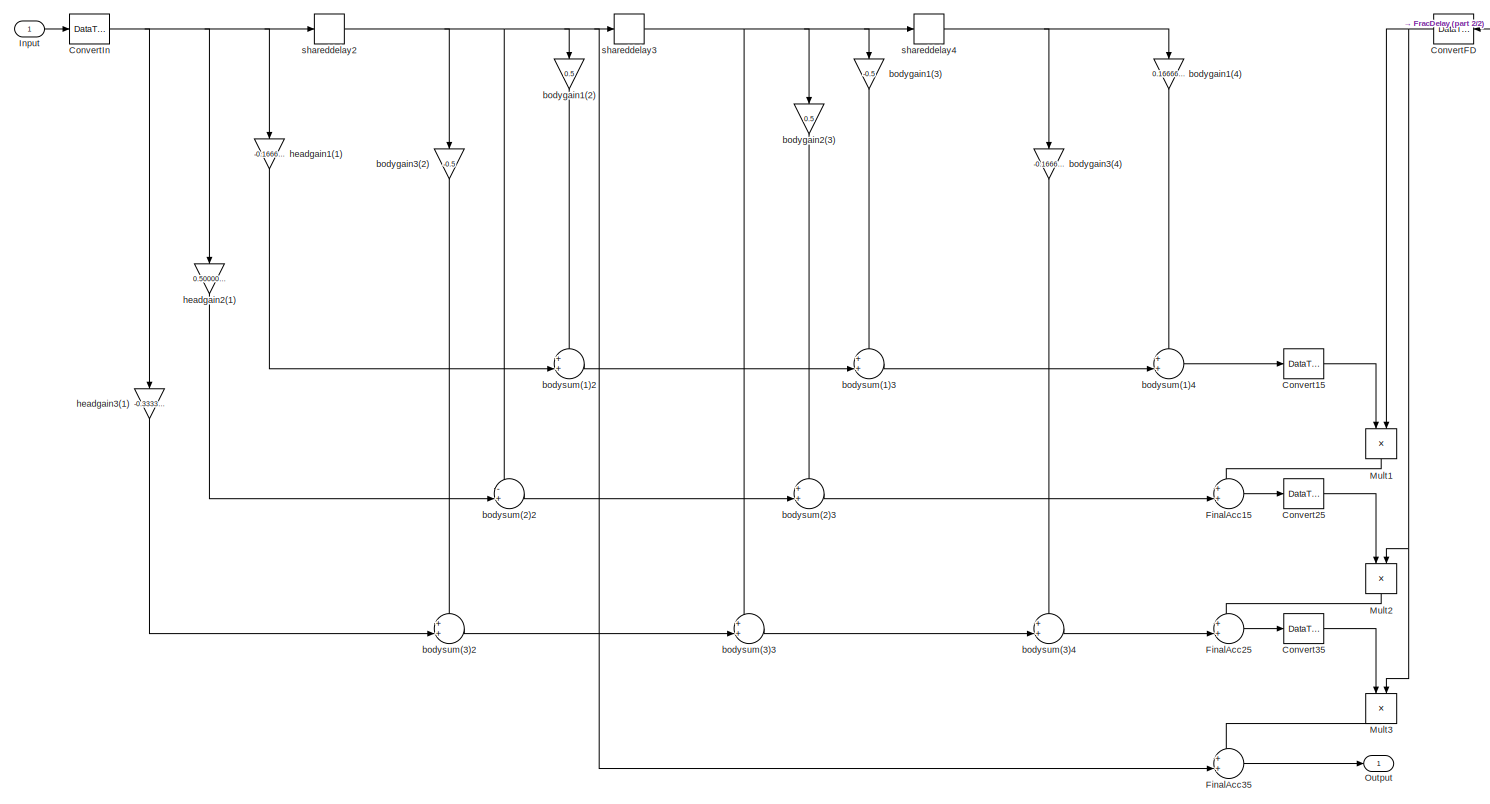
[diagram: Filter1 - part 1/2, most of the canvas]
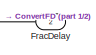
[diagram: Filter1 - part 2/2, top right region]
BLOCK [SubSystem] Filter1
  Commented = on
  ErrorFcn = dspFilterRealizedInBasicElemsAlgLoopErrFcnCallback
  Tag = FilterWizardSubSystem
  UserDataPersistent = on
BLOCK [DataTypeConversion] Filter1/Convert15
  OutDataTypeStr = fixdt(1,31,24)
  RndMeth = Convergent
  SaturateOnIntegerOverflow = off
BLOCK [DataTypeConversion] Filter1/Convert25
  OutDataTypeStr = fixdt(1,31,24)
  RndMeth = Convergent
  SaturateOnIntegerOverflow = off
BLOCK [DataTypeConversion] Filter1/Convert35
  OutDataTypeStr = fixdt(1,31,24)
  RndMeth = Convergent
  SaturateOnIntegerOverflow = off
BLOCK [DataTypeConversion] Filter1/ConvertFD
  OutDataTypeStr = fixdt(0,6,6)
  RndMeth = Nearest
BLOCK [DataTypeConversion] Filter1/ConvertIn
  OutDataTypeStr = fixdt(1,8,6)
  RndMeth = Nearest
BLOCK [Sum] Filter1/FinalAcc15
  AccumDataTypeStr = fixdt(1,38,30)
  Inputs = ++|
  OutDataTypeStr = fixdt(1,38,30)
  RndMeth = Convergent
BLOCK [Sum] Filter1/FinalAcc25
  AccumDataTypeStr = fixdt(1,38,30)
  Inputs = ++|
  OutDataTypeStr = fixdt(1,38,30)
  RndMeth = Convergent
BLOCK [Sum] Filter1/FinalAcc35
  AccumDataTypeStr = fixdt(1,38,30)
  Inputs = ++|
  OutDataTypeStr = fixdt(1,38,30)
  RndMeth = Convergent
BLOCK [Inport] Filter1/FracDelay
  Port = 2
BLOCK [Inport] Filter1/Input
BLOCK [Product] Filter1/Mult1
  NameLocation = right
  OutDataTypeStr = fixdt(1,37,30)
  RndMeth = Convergent
BLOCK [Product] Filter1/Mult2
  NameLocation = right
  OutDataTypeStr = fixdt(1,37,30)
  RndMeth = Convergent
BLOCK [Product] Filter1/Mult3
  NameLocation = right
  OutDataTypeStr = fixdt(1,37,30)
  RndMeth = Convergent
BLOCK [Outport] Filter1/Output
BLOCK [Gain] Filter1/bodygain1(2)
  Gain = 0.5
  NameLocation = right
  OutDataTypeStr = fixdt(1,15,12)
  ParamDataTypeStr = fixdt(1,8,6)
  RndMeth = Convergent
BLOCK [Gain] Filter1/bodygain1(3)
  Gain = -0.5
  NameLocation = right
  OutDataTypeStr = fixdt(1,15,12)
  ParamDataTypeStr = fixdt(1,8,6)
  RndMeth = Convergent
BLOCK [Gain] Filter1/bodygain1(4)
  Gain = 0.166666666666666657
  NameLocation = right
  OutDataTypeStr = fixdt(1,15,12)
  ParamDataTypeStr = fixdt(1,8,6)
  RndMeth = Convergent
BLOCK [Gain] Filter1/bodygain2(3)
  Gain = 0.5
  NameLocation = right
  OutDataTypeStr = fixdt(1,15,12)
  ParamDataTypeStr = fixdt(1,8,6)
  RndMeth = Convergent
BLOCK [Gain] Filter1/bodygain3(2)
  Gain = -0.5
  NameLocation = right
  OutDataTypeStr = fixdt(1,15,12)
  ParamDataTypeStr = fixdt(1,8,6)
  RndMeth = Convergent
BLOCK [Gain] Filter1/bodygain3(4)
  Gain = -0.166666666666666741
  NameLocation = right
  OutDataTypeStr = fixdt(1,15,12)
  ParamDataTypeStr = fixdt(1,8,6)
  RndMeth = Convergent
BLOCK [Sum] Filter1/bodysum(1)2
  AccumDataTypeStr = fixdt(1,17,12)
  Inputs = ++|
  OutDataTypeStr = fixdt(1,17,12)
  RndMeth = Convergent
BLOCK [Sum] Filter1/bodysum(1)3
  AccumDataTypeStr = fixdt(1,17,12)
  Inputs = ++|
  OutDataTypeStr = fixdt(1,17,12)
  RndMeth = Convergent
BLOCK [Sum] Filter1/bodysum(1)4
  AccumDataTypeStr = fixdt(1,17,12)
  Inputs = ++|
  OutDataTypeStr = fixdt(1,17,12)
  RndMeth = Convergent
BLOCK [Sum] Filter1/bodysum(2)2
  AccumDataTypeStr = fixdt(1,17,12)
  Inputs = -+|
  OutDataTypeStr = fixdt(1,17,12)
  RndMeth = Convergent
BLOCK [Sum] Filter1/bodysum(2)3
  AccumDataTypeStr = fixdt(1,17,12)
  Inputs = ++|
  OutDataTypeStr = fixdt(1,17,12)
  RndMeth = Convergent
BLOCK [Sum] Filter1/bodysum(3)2
  AccumDataTypeStr = fixdt(1,17,12)
  Inputs = ++|
  OutDataTypeStr = fixdt(1,17,12)
  RndMeth = Convergent
BLOCK [Sum] Filter1/bodysum(3)3
  AccumDataTypeStr = fixdt(1,17,12)
  Inputs = ++|
  OutDataTypeStr = fixdt(1,17,12)
  RndMeth = Convergent
BLOCK [Sum] Filter1/bodysum(3)4
  AccumDataTypeStr = fixdt(1,17,12)
  Inputs = ++|
  OutDataTypeStr = fixdt(1,17,12)
  RndMeth = Convergent
BLOCK [Gain] Filter1/headgain1(1)
  Gain = -0.16666666666666663
  NameLocation = right
  OutDataTypeStr = fixdt(1,15,12)
  ParamDataTypeStr = fixdt(1,8,6)
  RndMeth = Convergent
BLOCK [Gain] Filter1/headgain2(1)
  Gain = 0.500000000000000111
  NameLocation = right
  OutDataTypeStr = fixdt(1,15,12)
  ParamDataTypeStr = fixdt(1,8,6)
  RndMeth = Convergent
BLOCK [Gain] Filter1/headgain3(1)
  Gain = -0.333333333333333148
  NameLocation = right
  OutDataTypeStr = fixdt(1,15,12)
  ParamDataTypeStr = fixdt(1,8,6)
  RndMeth = Convergent
BLOCK [Delay] Filter1/shareddelay2
  DelayLength = 1
  InitialCondition = 0
  InputPortMap = u0
  InputProcessing = Columns as channels (frame based)
BLOCK [Delay] Filter1/shareddelay3
  DelayLength = 1
  InitialCondition = 0
  InputPortMap = u0
  InputProcessing = Columns as channels (frame based)
BLOCK [Delay] Filter1/shareddelay4
  DelayLength = 1
  InitialCondition = 0
  InputPortMap = u0
  InputProcessing = Columns as channels (frame based)
BLOCK [Gain] Gain
  Gain = Ref / 2^N
BLOCK [Reference] Idealized ADC quantizer3  REF=simulink_extras/Additional
Discrete/Idealized ADC quantizer
  AttributesFormatString = (settings: %<NumberOfConverterBits>-bit converter\nVmin: %<Vmin>, Vmax: %<Vmax>)
  SourceBlock = simulink_extras/Additional\nDiscrete/Idealized ADC quantizer
  SourceType = IdealADC
BLOCK [Inport] Input
BLOCK [Reference] Linear Equalizer  REF=commeq3/Linear Equalizer
  Commented = on
  SourceBlock = commeq3/Linear Equalizer
  SourceType = Linear Equalizer
BLOCK [Mux] Mux5
  Commented = on
  DisplayOption = bar
  Inputs = 2
BLOCK [Outport] Output
BLOCK [Product] Product1
BLOCK [Product] Product11
  Commented = on
BLOCK [Product] Product12
  Commented = on
BLOCK [Product] Product18
BLOCK [Product] Product19
BLOCK [Product] Product2
BLOCK [Product] Product20
BLOCK [Product] Product21
BLOCK [DiscretePulseGenerator] Pulse Generator
  Period = 5e-9
  PulseType = Time based
  PulseWidth = 50
BLOCK [DiscretePulseGenerator] Pulse Generator1
  NameLocation = left
  Period = 1/1e9
  PulseType = Time based
  PulseWidth = 50
BLOCK [DiscretePulseGenerator] Pulse Generator2
  Commented = on
  Period = 1/1e9
  PulseType = Time based
  PulseWidth = 50
BLOCK [DiscretePulseGenerator] Pulse Generator3
  Period = 1/1e9
  PulseType = Time based
  PulseWidth = 50
BLOCK [RateTransition] Rate Transition
  OutPortSampleTime = 1/1e9
BLOCK [RealImagToComplex] Real-Imag to Complex2
BLOCK [RealImagToComplex] Real-Imag to Complex4
BLOCK [RealImagToComplex] Real-Imag to Complex5
BLOCK [Reference] Sample and Hold  REF=dspsigops/Sample
and Hold
  SourceBlock = dspsigops/Sample\nand Hold
  SourceType = Sample and Hold
BLOCK [Scope] Scope1
  Floating = off
  NumInputPorts = 2
  ScopeSpecificationString = Simulink.scopes.TimeScopeBlockCfg('CurrentConfiguration', extmgr.ConfigurationSet(extmgr.Configuration('Core','General UI',true),extmgr.Configuration('Core','Source UI',true),extmgr.Configuration('Sources','WiredSimulink',true,'DataLoggingVariableName','ScopeData1'),extmgr.Configuration('Visuals','Time Domain',true,'SerializedDisplays',{struct('MinYLimReal','-8.00000','MaxYLimReal','72.00000','YLa...<+2238ch>
BLOCK [Scope] Scope10
  Floating = off
  NumInputPorts = 2
  ScopeSpecificationString = Simulink.scopes.TimeScopeBlockCfg('CurrentConfiguration', extmgr.ConfigurationSet(extmgr.Configuration('Core','General UI',true),extmgr.Configuration('Core','Source UI',true),extmgr.Configuration('Sources','WiredSimulink',true,'DataLoggingVariableName','ScopeData4'),extmgr.Configuration('Visuals','Time Domain',true,'SerializedDisplays',{struct('MinYLimReal','-295.00000','MaxYLimReal','295.00000','...<+2286ch>
BLOCK [Scope] Scope11
  Floating = off
  NumInputPorts = 2
  ScopeSpecificationString = Simulink.scopes.TimeScopeBlockCfg('CurrentConfiguration', extmgr.ConfigurationSet(extmgr.Configuration('Core','General UI',true),extmgr.Configuration('Core','Source UI',true),extmgr.Configuration('Sources','WiredSimulink',true,'DataLoggingVariableName','ScopeData5'),extmgr.Configuration('Visuals','Time Domain',true,'PlotType','Line','SerializedDisplays',{struct('MinYLimReal','-1.25','MaxYLimReal',...<+2187ch>
BLOCK [Scope] Scope12
  Floating = off
  NumInputPorts = 2
  ScopeSpecificationString = Simulink.scopes.TimeScopeBlockCfg('CurrentConfiguration', extmgr.ConfigurationSet(extmgr.Configuration('Core','General UI',true),extmgr.Configuration('Core','Source UI',true),extmgr.Configuration('Sources','WiredSimulink',true,'DataLoggingVariableName','ScopeData1'),extmgr.Configuration('Visuals','Time Domain',true,'SerializedDisplays',{struct('MinYLimReal','-0.125','MaxYLimReal','1.125','YLabelRe...<+2447ch>
BLOCK [Scope] Scope13
  Floating = off
  NumInputPorts = 2
  ScopeSpecificationString = Simulink.scopes.TimeScopeBlockCfg('CurrentConfiguration', extmgr.ConfigurationSet(extmgr.Configuration('Core','General UI',true),extmgr.Configuration('Core','Source UI',true),extmgr.Configuration('Sources','WiredSimulink',true,'DataLoggingVariableName','ScopeData6'),extmgr.Configuration('Visuals','Time Domain',true,'SerializedDisplays',{struct('MinYLimReal','-0.125','MaxYLimReal','1.125','YLabelRe...<+2515ch>
BLOCK [Scope] Scope14
  Floating = off
  NumInputPorts = 2
  ScopeSpecificationString = Simulink.scopes.TimeScopeBlockCfg('CurrentConfiguration', extmgr.ConfigurationSet(extmgr.Configuration('Core','General UI',true),extmgr.Configuration('Core','Source UI',true),extmgr.Configuration('Sources','WiredSimulink',true,'DataLoggingVariableName','ScopeData2'),extmgr.Configuration('Visuals','Time Domain',true,'SerializedDisplays',{struct('MinYLimReal','-0.125','MaxYLimReal','1.125','YLabelRe...<+2087ch>
BLOCK [Scope] Scope15
  Floating = off
  NumInputPorts = 1
  ScopeSpecificationString = Simulink.scopes.TimeScopeBlockCfg('CurrentConfiguration', extmgr.ConfigurationSet(extmgr.Configuration('Core','General UI',true),extmgr.Configuration('Core','Source UI',true),extmgr.Configuration('Sources','WiredSimulink',true,'DataLoggingVariableName','ScopeData1'),extmgr.Configuration('Visuals','Time Domain',true,'SerializedDisplays',{struct('MinYLimReal','-0.00000013','MaxYLimReal','0.00000013'...<+1418ch>
BLOCK [Scope] Scope16
  Floating = off
  NumInputPorts = 2
  ScopeSpecificationString = Simulink.scopes.TimeScopeBlockCfg('CurrentConfiguration', extmgr.ConfigurationSet(extmgr.Configuration('Core','General UI',true),extmgr.Configuration('Core','Source UI',true),extmgr.Configuration('Sources','WiredSimulink',true,'DataLoggingVariableName','ScopeData10'),extmgr.Configuration('Visuals','Time Domain',true,'SerializedDisplays',{struct('MinYLimReal','-590.00000','MaxYLimReal','590.00000',...<+2274ch>
BLOCK [Scope] Scope17
  Commented = on
  Floating = off
  NumInputPorts = 1
  ScopeSpecificationString = Simulink.scopes.TimeScopeBlockCfg('CurrentConfiguration', extmgr.ConfigurationSet(extmgr.Configuration('Core','General UI',true),extmgr.Configuration('Core','Source UI',true),extmgr.Configuration('Sources','WiredSimulink',true,'DataLoggingVariableName','ScopeData11'),extmgr.Configuration('Visuals','Time Domain',true,'SerializedDisplays',{struct('MinYLimReal','-5.25625','MaxYLimReal','5.25625','YLa...<+1364ch>
BLOCK [Scope] Scope2
  Floating = off
  NumInputPorts = 2
  ScopeSpecificationString = Simulink.scopes.TimeScopeBlockCfg('CurrentConfiguration', extmgr.ConfigurationSet(extmgr.Configuration('Core','General UI',true),extmgr.Configuration('Core','Source UI',true),extmgr.Configuration('Sources','WiredSimulink',true,'DataLoggingVariableName','ScopeData2'),extmgr.Configuration('Visuals','Time Domain',true,'SerializedDisplays',{struct('MinYLimReal','-4.00000','MaxYLimReal','36.00000','YLa...<+2212ch>
BLOCK [Scope] Scope23
  Floating = off
  NumInputPorts = 1
  ScopeSpecificationString = Simulink.scopes.TimeScopeBlockCfg('CurrentConfiguration', extmgr.ConfigurationSet(extmgr.Configuration('Core','General UI',true),extmgr.Configuration('Core','Source UI',true),extmgr.Configuration('Sources','WiredSimulink',true,'DataLoggingVariableName','ScopeData6'),extmgr.Configuration('Visuals','Time Domain',true,'PlotType','Line','SerializedDisplays',{struct('MinYLimReal','-0.99954','MaxYLimRea...<+1619ch>
BLOCK [Scope] Scope24
  Floating = off
  NumInputPorts = 2
  ScopeSpecificationString = Simulink.scopes.TimeScopeBlockCfg('CurrentConfiguration', extmgr.ConfigurationSet(extmgr.Configuration('Core','General UI',true),extmgr.Configuration('Core','Source UI',true),extmgr.Configuration('Sources','WiredSimulink',true,'DataLoggingVariableName','ScopeData1'),extmgr.Configuration('Visuals','Time Domain',true,'SerializedDisplays',{struct('MinYLimReal','-18.91951','MaxYLimReal','18.91751','YL...<+2038ch>
BLOCK [Scope] Scope3
  Floating = off
  NameLocation = left
  NumInputPorts = 3
  ScopeSpecificationString = Simulink.scopes.TimeScopeBlockCfg('CurrentConfiguration', extmgr.ConfigurationSet(extmgr.Configuration('Core','General UI',true),extmgr.Configuration('Core','Source UI',true),extmgr.Configuration('Sources','WiredSimulink',true,'DataLoggingVariableName','ScopeData2'),extmgr.Configuration('Visuals','Time Domain',true,'SerializedDisplays',{struct('MinYLimReal','-1.24805','MaxYLimReal','1.23242','YLab...<+3050ch>
BLOCK [Scope] Scope4
  Floating = off
  NumInputPorts = 2
  ScopeSpecificationString = Simulink.scopes.TimeScopeBlockCfg('CurrentConfiguration', extmgr.ConfigurationSet(extmgr.Configuration('Core','General UI',true),extmgr.Configuration('Core','Source UI',true),extmgr.Configuration('Sources','WiredSimulink',true,'DataLoggingVariableName','ScopeData3'),extmgr.Configuration('Visuals','Time Domain',true,'SerializedDisplays',{struct('MinYLimReal','-2.30469','MaxYLimReal','2.30469','YLab...<+2217ch>
BLOCK [Scope] Scope5
  Floating = off
  NumInputPorts = 2
  ScopeSpecificationString = Simulink.scopes.TimeScopeBlockCfg('CurrentConfiguration', extmgr.ConfigurationSet(extmgr.Configuration('Core','General UI',true),extmgr.Configuration('Core','Source UI',true),extmgr.Configuration('Sources','WiredSimulink',true,'DataLoggingVariableName','ScopeData4'),extmgr.Configuration('Visuals','Time Domain',true,'SerializedDisplays',{struct('MinYLimReal','-295.00000','MaxYLimReal','295.00000','...<+2658ch>
BLOCK [Scope] Scope6
  Floating = off
  NumInputPorts = 2
  ScopeSpecificationString = Simulink.scopes.TimeScopeBlockCfg('CurrentConfiguration', extmgr.ConfigurationSet(extmgr.Configuration('Core','General UI',true),extmgr.Configuration('Core','Source UI',true),extmgr.Configuration('Sources','WiredSimulink',true,'DataLoggingVariableName','ScopeData5'),extmgr.Configuration('Visuals','Time Domain',true,'SerializedDisplays',{struct('MinYLimReal','-295.00000','MaxYLimReal','295.00000','...<+2284ch>
BLOCK [Scope] Scope7
  Floating = off
  NumInputPorts = 2
  ScopeSpecificationString = Simulink.scopes.TimeScopeBlockCfg('CurrentConfiguration', extmgr.ConfigurationSet(extmgr.Configuration('Core','General UI',true),extmgr.Configuration('Core','Source UI',true),extmgr.Configuration('Sources','WiredSimulink',true,'DataLoggingVariableName','ScopeData6'),extmgr.Configuration('Visuals','Time Domain',true,'PlotType','Line','SerializedDisplays',{struct('MinYLimReal','-590.00000','MaxYLimR...<+2273ch>
BLOCK [Scope] Scope8
  Floating = off
  NumInputPorts = 3
  ScopeSpecificationString = Simulink.scopes.TimeScopeBlockCfg('CurrentConfiguration', extmgr.ConfigurationSet(extmgr.Configuration('Core','General UI',true),extmgr.Configuration('Core','Source UI',true),extmgr.Configuration('Sources','WiredSimulink',true,'DataLoggingVariableName','ScopeData7'),extmgr.Configuration('Visuals','Time Domain',true,'SerializedDisplays',{struct('MinYLimReal','-2559.875','MaxYLimReal','2558.875','YL...<+3043ch>
BLOCK [Scope] Scope9
  Floating = off
  NumInputPorts = 2
  ScopeSpecificationString = Simulink.scopes.TimeScopeBlockCfg('CurrentConfiguration', extmgr.ConfigurationSet(extmgr.Configuration('Core','General UI',true),extmgr.Configuration('Core','Source UI',true),extmgr.Configuration('Sources','WiredSimulink',true,'DataLoggingVariableName','ScopeData8'),extmgr.Configuration('Visuals','Time Domain',true,'PlotType','Line','SerializedDisplays',{struct('MinYLimReal','-9460.00000','MaxYLim...<+2225ch>
BLOCK [Sin] Sine Wave14
  Commented = on
  Frequency = 2*pi*3.25e9
  SampleTime = 0
BLOCK [Sin] Sine Wave19
  Commented = on
  Frequency = 2*pi*62.5e6
  SampleTime = 0
BLOCK [Sin] Sine Wave23
  Frequency = 2*pi*3.25e9
  SampleTime = 1e-11
BLOCK [Sin] Sine Wave24
  Commented = on
  Frequency = 2*pi*3.25e9
  SampleTime = 0
BLOCK [Sin] Sine Wave26
  Commented = on
  Frequency = 2*pi*62.5e6
  SampleTime = 0
BLOCK [Sin] Sine Wave3
  Frequency = 2*pi*62.5e6
  SampleTime = 0
BLOCK [Sin] Sine Wave33
  Frequency = 2*pi*250e6
  Phase = 1.57
  SampleTime = 1/1e9
BLOCK [Sin] Sine Wave34
  Frequency = 2*pi*250e6
  SampleTime = 1/1e9
BLOCK [Sin] Sine Wave35
  Frequency = 2*pi*250e6
  Phase = 1.57
  SampleTime = 1/1e9
BLOCK [Sin] Sine Wave36
  Frequency = 2*pi*250e6
  SampleTime = 1/1e9
BLOCK [Sin] Sine Wave4
  Frequency = 2*pi*3.25e9
  SampleTime = 0
BLOCK [Sin] Sine Wave5
  Frequency = 2*pi*3.25e9
  SampleTime = 0
BLOCK [Sin] Sine Wave6
  Frequency = 2*pi*62.5e6
  SampleTime = 0
BLOCK [Sin] Sine Wave7
  Frequency = 2*pi*3.25e9
  SampleTime = 0
BLOCK [Sin] Sine Wave8
  Amplitude = rx_amplitude_compensation
  Frequency = 2*pi*rx_freq_d_compensation
  Phase = pi*(rx_phase_compensation+90)/180
  SampleTime = 1/5e8
BLOCK [Sin] Sine Wave9
  Amplitude = rx_amplitude_compensation
  Frequency = 2*pi*rx_freq_d_compensation
  Phase = pi*rx_phase_compensation/180
  SampleTime = 1/5e8
BLOCK [SpectrumAnalyzer] Spectrum Analyzer
  Commented = on
  NameLocation = left
  ScopeSpecificationString = spbscopes.SpectrumAnalyzerBlockCfg('CurrentConfiguration', extmgr.ConfigurationSet(extmgr.Configuration('Core','General UI',true),extmgr.Configuration('Core','Source UI',true),extmgr.Configuration('Sources','WiredSimulink',true),extmgr.Configuration('Sources','SimulinkEvent',false),extmgr.Configuration('Sources','Simulink',false),extmgr.Configuration('Sources','File',false),extmgr.Configuration('S...<+3676ch>
BLOCK [SpectrumAnalyzer] Spectrum Analyzer2
  Commented = on
  ScopeSpecificationString = spbscopes.SpectrumAnalyzerBlockCfg('CurrentConfiguration', extmgr.ConfigurationSet(extmgr.Configuration('Core','General UI',true),extmgr.Configuration('Core','Source UI',true),extmgr.Configuration('Sources','WiredSimulink',true),extmgr.Configuration('Sources','SimulinkEvent',false),extmgr.Configuration('Sources','Simulink',false),extmgr.Configuration('Sources','File',false),extmgr.Configuration('S...<+3828ch>
BLOCK [Sum] Sum of Elements1
  IconShape = rectangular
  Inputs = +
BLOCK [Sum] Sum of Elements4
  Commented = on
  IconShape = rectangular
  Inputs = +
BLOCK [Sum] Sum of Elements5
  IconShape = rectangular
  Inputs = +
BLOCK [SubSystem] TTD_Farrow
  Commented = on
BLOCK [Constant] TTD_Farrow/Constant2
  Value = integer_delay
BLOCK [Constant] TTD_Farrow/Constant3
  Value = fraction_delay
BLOCK [SubSystem] TTD_Farrow/Cubic Lagrange Interpolator
  NameLocation = left
BLOCK [Delay] TTD_Farrow/Cubic Lagrange Interpolator/Delay6
  DelayLength = 1
  InputPortMap = u0
  NameLocation = left
BLOCK [Delay] TTD_Farrow/Cubic Lagrange Interpolator/Delay7
  DelayLength = 1
  InputPortMap = u0
  NameLocation = left
BLOCK [Delay] TTD_Farrow/Cubic Lagrange Interpolator/Delay8
  DelayLength = 1
  InputPortMap = u0
  NameLocation = left
BLOCK [Gain] TTD_Farrow/Cubic Lagrange Interpolator/Gain
  Gain = filter_gain0_0
BLOCK [Gain] TTD_Farrow/Cubic Lagrange Interpolator/Gain1
  Gain = filter_gain0_1
BLOCK [Gain] TTD_Farrow/Cubic Lagrange Interpolator/Gain2
  Gain = filter_gain0_2
BLOCK [Gain] TTD_Farrow/Cubic Lagrange Interpolator/Gain3
  Gain = filter_gain0_3
BLOCK [Inport] TTD_Farrow/Cubic Lagrange Interpolator/In1
BLOCK [Outport] TTD_Farrow/Cubic Lagrange Interpolator/Out1
BLOCK [Sum] TTD_Farrow/Cubic Lagrange Interpolator/Sum
  Inputs = ++|
  NameLocation = left
BLOCK [Sum] TTD_Farrow/Cubic Lagrange Interpolator/Sum2
  Inputs = ++|
  NameLocation = left
BLOCK [Sum] TTD_Farrow/Cubic Lagrange Interpolator/Sum3
  Inputs = ++|
  NameLocation = left
BLOCK [SubSystem] TTD_Farrow/Cubic Lagrange Interpolator1
  NameLocation = left
BLOCK [Delay] TTD_Farrow/Cubic Lagrange Interpolator1/Delay6
  DelayLength = 1
  InputPortMap = u0
  NameLocation = left
BLOCK [Delay] TTD_Farrow/Cubic Lagrange Interpolator1/Delay7
  DelayLength = 1
  InputPortMap = u0
  NameLocation = left
BLOCK [Delay] TTD_Farrow/Cubic Lagrange Interpolator1/Delay8
  DelayLength = 1
  InputPortMap = u0
  NameLocation = left
BLOCK [Gain] TTD_Farrow/Cubic Lagrange Interpolator1/Gain
  Gain = filter_gain1_0
BLOCK [Gain] TTD_Farrow/Cubic Lagrange Interpolator1/Gain1
  Gain = filter_gain1_1
BLOCK [Gain] TTD_Farrow/Cubic Lagrange Interpolator1/Gain2
  Gain = filter_gain1_2
BLOCK [Gain] TTD_Farrow/Cubic Lagrange Interpolator1/Gain3
  Gain = filter_gain1_3
BLOCK [Inport] TTD_Farrow/Cubic Lagrange Interpolator1/In1
BLOCK [Outport] TTD_Farrow/Cubic Lagrange Interpolator1/Out1
BLOCK [Sum] TTD_Farrow/Cubic Lagrange Interpolator1/Sum
  Inputs = ++|
  NameLocation = left
BLOCK [Sum] TTD_Farrow/Cubic Lagrange Interpolator1/Sum2
  Inputs = ++|
  NameLocation = left
BLOCK [Sum] TTD_Farrow/Cubic Lagrange Interpolator1/Sum3
  Inputs = ++|
  NameLocation = left
BLOCK [SubSystem] TTD_Farrow/Cubic Lagrange Interpolator2
  NameLocation = left
BLOCK [Delay] TTD_Farrow/Cubic Lagrange Interpolator2/Delay6
  DelayLength = 1
  InputPortMap = u0
  NameLocation = left
BLOCK [Delay] TTD_Farrow/Cubic Lagrange Interpolator2/Delay7
  DelayLength = 1
  InputPortMap = u0
  NameLocation = left
BLOCK [Delay] TTD_Farrow/Cubic Lagrange Interpolator2/Delay8
  DelayLength = 1
  InputPortMap = u0
  NameLocation = left
BLOCK [Gain] TTD_Farrow/Cubic Lagrange Interpolator2/Gain
  Gain = filter_gain2_0
BLOCK [Gain] TTD_Farrow/Cubic Lagrange Interpolator2/Gain1
  Gain = filter_gain2_1
BLOCK [Gain] TTD_Farrow/Cubic Lagrange Interpolator2/Gain2
  Gain = filter_gain2_2
BLOCK [Gain] TTD_Farrow/Cubic Lagrange Interpolator2/Gain3
  Gain = filter_gain2_3
BLOCK [Inport] TTD_Farrow/Cubic Lagrange Interpolator2/In1
BLOCK [Outport] TTD_Farrow/Cubic Lagrange Interpolator2/Out1
BLOCK [Sum] TTD_Farrow/Cubic Lagrange Interpolator2/Sum
  Inputs = ++|
  NameLocation = left
BLOCK [Sum] TTD_Farrow/Cubic Lagrange Interpolator2/Sum2
  Inputs = ++|
  NameLocation = left
BLOCK [Sum] TTD_Farrow/Cubic Lagrange Interpolator2/Sum3
  Inputs = ++|
  NameLocation = left
BLOCK [SubSystem] TTD_Farrow/Cubic Lagrange Interpolator3
  NameLocation = left
BLOCK [Delay] TTD_Farrow/Cubic Lagrange Interpolator3/Delay6
  DelayLength = 1
  InputPortMap = u0
  NameLocation = left
BLOCK [Delay] TTD_Farrow/Cubic Lagrange Interpolator3/Delay7
  DelayLength = 1
  InputPortMap = u0
  NameLocation = left
BLOCK [Delay] TTD_Farrow/Cubic Lagrange Interpolator3/Delay8
  DelayLength = 1
  InputPortMap = u0
  NameLocation = left
BLOCK [Gain] TTD_Farrow/Cubic Lagrange Interpolator3/Gain
  Gain = filter_gain3_0
BLOCK [Gain] TTD_Farrow/Cubic Lagrange Interpolator3/Gain1
  Gain = filter_gain3_1
BLOCK [Gain] TTD_Farrow/Cubic Lagrange Interpolator3/Gain2
  Gain = filter_gain3_2
BLOCK [Gain] TTD_Farrow/Cubic Lagrange Interpolator3/Gain3
  Gain = filter_gain3_3
BLOCK [Inport] TTD_Farrow/Cubic Lagrange Interpolator3/In1
BLOCK [Outport] TTD_Farrow/Cubic Lagrange Interpolator3/Out1
BLOCK [Sum] TTD_Farrow/Cubic Lagrange Interpolator3/Sum
  Inputs = ++|
  NameLocation = left
BLOCK [Sum] TTD_Farrow/Cubic Lagrange Interpolator3/Sum2
  Inputs = ++|
  NameLocation = left
BLOCK [Sum] TTD_Farrow/Cubic Lagrange Interpolator3/Sum3
  Inputs = ++|
  NameLocation = left
BLOCK [DataTypeConversion] TTD_Farrow/Data Type Conversion7
  OutDataTypeStr = fixdt(1,16,0)
  RndMeth = Floor
  SaturateOnIntegerOverflow = off
BLOCK [Delay] TTD_Farrow/Delay1
  DelayLength = 1
  InputPortMap = u0
  NameLocation = left
BLOCK [Delay] TTD_Farrow/Delay2
  DelayLength = 1
  InputPortMap = u0
  NameLocation = left
BLOCK [Delay] TTD_Farrow/Delay3
  DelayLength = 1
  InputPortMap = u0
  NameLocation = left
BLOCK [Delay] TTD_Farrow/Delay4
  DelayLength = 1
  InputPortMap = u0
  NameLocation = left
BLOCK [Delay] TTD_Farrow/Delay5
  DelayLength = 1
  InputPortMap = u0
  NameLocation = left
BLOCK [Inport] TTD_Farrow/In1
BLOCK [MultiPortSwitch] TTD_Farrow/Index Vector
  DataPortOrder = Zero-based contiguous
  InputSameDT = off
  Inputs = 6
  SaturateOnIntegerOverflow = off
  zeroidx = on
BLOCK [Outport] TTD_Farrow/Output
BLOCK [Product] TTD_Farrow/Product12
BLOCK [Product] TTD_Farrow/Product13
BLOCK [Product] TTD_Farrow/Product14
BLOCK [Sum] TTD_Farrow/Sum
  Inputs = ++|
BLOCK [Sum] TTD_Farrow/Sum2
  Inputs = ++|
BLOCK [Sum] TTD_Farrow/Sum3
  Inputs = ++|
BLOCK [SubSystem] TTD_Farrow1
BLOCK [Constant] TTD_Farrow1/Constant2
  Value = integer_delay
BLOCK [Constant] TTD_Farrow1/Constant3
  Value = fraction_delay
BLOCK [SubSystem] TTD_Farrow1/Cubic Lagrange Interpolator
  NameLocation = left
BLOCK [Delay] TTD_Farrow1/Cubic Lagrange Interpolator/Delay6
  DelayLength = 1
  InputPortMap = u0
  NameLocation = left
BLOCK [Delay] TTD_Farrow1/Cubic Lagrange Interpolator/Delay7
  DelayLength = 1
  InputPortMap = u0
  NameLocation = left
BLOCK [Delay] TTD_Farrow1/Cubic Lagrange Interpolator/Delay8
  DelayLength = 1
  InputPortMap = u0
  NameLocation = left
BLOCK [Gain] TTD_Farrow1/Cubic Lagrange Interpolator/Gain
  Gain = filter_gain0_3
BLOCK [Gain] TTD_Farrow1/Cubic Lagrange Interpolator/Gain1
  Gain = filter_gain0_2
BLOCK [Gain] TTD_Farrow1/Cubic Lagrange Interpolator/Gain2
  Gain = filter_gain0_1
BLOCK [Gain] TTD_Farrow1/Cubic Lagrange Interpolator/Gain3
  Gain = filter_gain0_0
BLOCK [Inport] TTD_Farrow1/Cubic Lagrange Interpolator/In1
BLOCK [Outport] TTD_Farrow1/Cubic Lagrange Interpolator/Out1
BLOCK [Scope] TTD_Farrow1/Cubic Lagrange Interpolator/Scope2
  Floating = off
  NumInputPorts = 3
  ScopeSpecificationString = Simulink.scopes.TimeScopeBlockCfg('CurrentConfiguration', extmgr.ConfigurationSet(extmgr.Configuration('Core','General UI',true),extmgr.Configuration('Core','Source UI',true),extmgr.Configuration('Sources','WiredSimulink',true,'DataLoggingVariableName','ScopeData13'),extmgr.Configuration('Visuals','Time Domain',true,'SerializedDisplays',{struct('MinYLimReal','-0.125','MaxYLimReal','1.125','YLabelR...<+3111ch>
BLOCK [Sum] TTD_Farrow1/Cubic Lagrange Interpolator/Sum
  Inputs = ++|
  NameLocation = left
BLOCK [Sum] TTD_Farrow1/Cubic Lagrange Interpolator/Sum2
  Inputs = ++|
  NameLocation = left
BLOCK [Sum] TTD_Farrow1/Cubic Lagrange Interpolator/Sum3
  Inputs = ++|
  NameLocation = left
BLOCK [SubSystem] TTD_Farrow1/Cubic Lagrange Interpolator1
  NameLocation = left
BLOCK [Delay] TTD_Farrow1/Cubic Lagrange Interpolator1/Delay6
  DelayLength = 1
  InputPortMap = u0
  NameLocation = left
BLOCK [Delay] TTD_Farrow1/Cubic Lagrange Interpolator1/Delay7
  DelayLength = 1
  InputPortMap = u0
  NameLocation = left
BLOCK [Delay] TTD_Farrow1/Cubic Lagrange Interpolator1/Delay8
  DelayLength = 1
  InputPortMap = u0
  NameLocation = left
BLOCK [Gain] TTD_Farrow1/Cubic Lagrange Interpolator1/Gain
  Gain = filter_gain1_3
BLOCK [Gain] TTD_Farrow1/Cubic Lagrange Interpolator1/Gain1
  Gain = filter_gain1_2
BLOCK [Gain] TTD_Farrow1/Cubic Lagrange Interpolator1/Gain2
  Gain = filter_gain1_1
BLOCK [Gain] TTD_Farrow1/Cubic Lagrange Interpolator1/Gain3
  Gain = filter_gain1_0
BLOCK [Inport] TTD_Farrow1/Cubic Lagrange Interpolator1/In1
BLOCK [Outport] TTD_Farrow1/Cubic Lagrange Interpolator1/Out1
BLOCK [Sum] TTD_Farrow1/Cubic Lagrange Interpolator1/Sum
  Inputs = ++|
  NameLocation = left
BLOCK [Sum] TTD_Farrow1/Cubic Lagrange Interpolator1/Sum2
  Inputs = ++|
  NameLocation = left
BLOCK [Sum] TTD_Farrow1/Cubic Lagrange Interpolator1/Sum3
  Inputs = ++|
  NameLocation = left
BLOCK [SubSystem] TTD_Farrow1/Cubic Lagrange Interpolator2
  NameLocation = left
BLOCK [Delay] TTD_Farrow1/Cubic Lagrange Interpolator2/Delay6
  DelayLength = 1
  InputPortMap = u0
  NameLocation = left
BLOCK [Delay] TTD_Farrow1/Cubic Lagrange Interpolator2/Delay7
  DelayLength = 1
  InputPortMap = u0
  NameLocation = left
BLOCK [Delay] TTD_Farrow1/Cubic Lagrange Interpolator2/Delay8
  DelayLength = 1
  InputPortMap = u0
  NameLocation = left
BLOCK [Gain] TTD_Farrow1/Cubic Lagrange Interpolator2/Gain
  Gain = filter_gain2_3
BLOCK [Gain] TTD_Farrow1/Cubic Lagrange Interpolator2/Gain1
  Gain = filter_gain2_2
BLOCK [Gain] TTD_Farrow1/Cubic Lagrange Interpolator2/Gain2
  Gain = filter_gain2_1
BLOCK [Gain] TTD_Farrow1/Cubic Lagrange Interpolator2/Gain3
  Gain = filter_gain2_0
BLOCK [Inport] TTD_Farrow1/Cubic Lagrange Interpolator2/In1
BLOCK [Outport] TTD_Farrow1/Cubic Lagrange Interpolator2/Out1
BLOCK [Sum] TTD_Farrow1/Cubic Lagrange Interpolator2/Sum
  Inputs = ++|
  NameLocation = left
BLOCK [Sum] TTD_Farrow1/Cubic Lagrange Interpolator2/Sum2
  Inputs = ++|
  NameLocation = left
BLOCK [Sum] TTD_Farrow1/Cubic Lagrange Interpolator2/Sum3
  Inputs = ++|
  NameLocation = left
BLOCK [SubSystem] TTD_Farrow1/Cubic Lagrange Interpolator3
  NameLocation = left
BLOCK [Delay] TTD_Farrow1/Cubic Lagrange Interpolator3/Delay6
  DelayLength = 1
  InputPortMap = u0
  NameLocation = left
BLOCK [Delay] TTD_Farrow1/Cubic Lagrange Interpolator3/Delay7
  DelayLength = 1
  InputPortMap = u0
  NameLocation = left
BLOCK [Delay] TTD_Farrow1/Cubic Lagrange Interpolator3/Delay8
  DelayLength = 1
  InputPortMap = u0
  NameLocation = left
BLOCK [Gain] TTD_Farrow1/Cubic Lagrange Interpolator3/Gain
  Gain = filter_gain3_3
BLOCK [Gain] TTD_Farrow1/Cubic Lagrange Interpolator3/Gain1
  Gain = filter_gain3_2
BLOCK [Gain] TTD_Farrow1/Cubic Lagrange Interpolator3/Gain2
  Gain = filter_gain3_1
BLOCK [Gain] TTD_Farrow1/Cubic Lagrange Interpolator3/Gain3
  Gain = filter_gain3_0
BLOCK [Inport] TTD_Farrow1/Cubic Lagrange Interpolator3/In1
BLOCK [Outport] TTD_Farrow1/Cubic Lagrange Interpolator3/Out1
BLOCK [Sum] TTD_Farrow1/Cubic Lagrange Interpolator3/Sum
  Inputs = ++|
  NameLocation = left
BLOCK [Sum] TTD_Farrow1/Cubic Lagrange Interpolator3/Sum2
  Inputs = ++|
  NameLocation = left
BLOCK [Sum] TTD_Farrow1/Cubic Lagrange Interpolator3/Sum3
  Inputs = ++|
  NameLocation = left
BLOCK [DataTypeConversion] TTD_Farrow1/Data Type Conversion1
  OutDataTypeStr = fixdt(1,16,6)
  RndMeth = Floor
  SaturateOnIntegerOverflow = off
BLOCK [DataTypeConversion] TTD_Farrow1/Data Type Conversion7
  OutDataTypeStr = fixdt(1,16,6)
  RndMeth = Floor
  SaturateOnIntegerOverflow = off
BLOCK [Delay] TTD_Farrow1/Delay1
  DelayLength = 1
  InputPortMap = u0
  NameLocation = left
BLOCK [Delay] TTD_Farrow1/Delay2
  DelayLength = 1
  InputPortMap = u0
  NameLocation = left
BLOCK [Delay] TTD_Farrow1/Delay3
  DelayLength = 1
  InputPortMap = u0
  NameLocation = left
BLOCK [Delay] TTD_Farrow1/Delay4
  DelayLength = 1
  InputPortMap = u0
  NameLocation = left
BLOCK [Delay] TTD_Farrow1/Delay5
  DelayLength = 1
  InputPortMap = u0
  NameLocation = left
BLOCK [Inport] TTD_Farrow1/In1
BLOCK [MultiPortSwitch] TTD_Farrow1/Index Vector
  DataPortOrder = Zero-based contiguous
  InputSameDT = off
  Inputs = 6
  SaturateOnIntegerOverflow = off
  zeroidx = on
BLOCK [Outport] TTD_Farrow1/Output
BLOCK [Product] TTD_Farrow1/Product12
BLOCK [Product] TTD_Farrow1/Product13
BLOCK [Product] TTD_Farrow1/Product14
BLOCK [Scope] TTD_Farrow1/Scope1
  Floating = off
  NumInputPorts = 2
  ScopeSpecificationString = Simulink.scopes.TimeScopeBlockCfg('CurrentConfiguration', extmgr.ConfigurationSet(extmgr.Configuration('Core','General UI',true),extmgr.Configuration('Core','Source UI',true),extmgr.Configuration('Sources','WiredSimulink',true,'DataLoggingVariableName','ScopeData7'),extmgr.Configuration('Visuals','Time Domain',true,'SerializedDisplays',{struct('MinYLimReal','-0.125','MaxYLimReal','1.125','YLabelRe...<+2461ch>
BLOCK [Scope] TTD_Farrow1/Scope12
  Floating = off
  NumInputPorts = 2
  ScopeSpecificationString = Simulink.scopes.TimeScopeBlockCfg('CurrentConfiguration', extmgr.ConfigurationSet(extmgr.Configuration('Core','General UI',true),extmgr.Configuration('Core','Source UI',true),extmgr.Configuration('Sources','WiredSimulink',true,'DataLoggingVariableName','ScopeData6'),extmgr.Configuration('Visuals','Time Domain',true,'SerializedDisplays',{struct('MinYLimReal','-0.125','MaxYLimReal','1.125','YLabelRe...<+2439ch>
BLOCK [Scope] TTD_Farrow1/Scope2
  Floating = off
  NumInputPorts = 2
  ScopeSpecificationString = Simulink.scopes.TimeScopeBlockCfg('CurrentConfiguration', extmgr.ConfigurationSet(extmgr.Configuration('Core','General UI',true),extmgr.Configuration('Core','Source UI',true),extmgr.Configuration('Sources','WiredSimulink',true,'DataLoggingVariableName','ScopeData8'),extmgr.Configuration('Visuals','Time Domain',true,'SerializedDisplays',{struct('MinYLimReal','-0.125','MaxYLimReal','1.125','YLabelRe...<+2436ch>
BLOCK [Scope] TTD_Farrow1/Scope3
  Floating = off
  NumInputPorts = 2
  ScopeSpecificationString = Simulink.scopes.TimeScopeBlockCfg('CurrentConfiguration', extmgr.ConfigurationSet(extmgr.Configuration('Core','General UI',true),extmgr.Configuration('Core','Source UI',true),extmgr.Configuration('Sources','WiredSimulink',true,'DataLoggingVariableName','ScopeData9'),extmgr.Configuration('Visuals','Time Domain',true,'SerializedDisplays',{struct('MinYLimReal','-0.125','MaxYLimReal','1.125','YLabelRe...<+2439ch>
BLOCK [Scope] TTD_Farrow1/Scope4
  Floating = off
  NumInputPorts = 2
  ScopeSpecificationString = Simulink.scopes.TimeScopeBlockCfg('CurrentConfiguration', extmgr.ConfigurationSet(extmgr.Configuration('Core','General UI',true),extmgr.Configuration('Core','Source UI',true),extmgr.Configuration('Sources','WiredSimulink',true,'DataLoggingVariableName','ScopeData10'),extmgr.Configuration('Visuals','Time Domain',true,'SerializedDisplays',{struct('MinYLimReal','-0.125','MaxYLimReal','1.125','YLabelR...<+2466ch>
BLOCK [Scope] TTD_Farrow1/Scope5
  Floating = off
  NumInputPorts = 2
  ScopeSpecificationString = Simulink.scopes.TimeScopeBlockCfg('CurrentConfiguration', extmgr.ConfigurationSet(extmgr.Configuration('Core','General UI',true),extmgr.Configuration('Core','Source UI',true),extmgr.Configuration('Sources','WiredSimulink',true,'DataLoggingVariableName','ScopeData16'),extmgr.Configuration('Visuals','Time Domain',true,'SerializedDisplays',{struct('MinYLimReal','-0.125','MaxYLimReal','1.125','YLabelR...<+2525ch>
BLOCK [Sum] TTD_Farrow1/Sum
  Inputs = ++|
BLOCK [Sum] TTD_Farrow1/Sum2
  Inputs = ++|
BLOCK [Sum] TTD_Farrow1/Sum3
  Inputs = ++|
BLOCK [SubSystem] TTD_Farrow_hdl_gen
  Commented = on
BLOCK [Constant] TTD_Farrow_hdl_gen/Constant2
  OutDataTypeStr = fixdt(1,16,0)
  Value = integer_delay
BLOCK [Constant] TTD_Farrow_hdl_gen/Constant3
  OutDataTypeStr = fixdt(1,16,0)
  Value = fraction_delay
BLOCK [SubSystem] TTD_Farrow_hdl_gen/Cubic Lagrange Interpolator
  NameLocation = left
BLOCK [Delay] TTD_Farrow_hdl_gen/Cubic Lagrange Interpolator/Delay6
  DelayLength = 1
  InputPortMap = u0
  NameLocation = left
BLOCK [Delay] TTD_Farrow_hdl_gen/Cubic Lagrange Interpolator/Delay7
  DelayLength = 1
  InputPortMap = u0
  NameLocation = left
BLOCK [Delay] TTD_Farrow_hdl_gen/Cubic Lagrange Interpolator/Delay8
  DelayLength = 1
  InputPortMap = u0
  NameLocation = left
BLOCK [Gain] TTD_Farrow_hdl_gen/Cubic Lagrange Interpolator/Gain
  Gain = filter_gain0_0
BLOCK [Gain] TTD_Farrow_hdl_gen/Cubic Lagrange Interpolator/Gain1
  Gain = filter_gain0_1
BLOCK [Gain] TTD_Farrow_hdl_gen/Cubic Lagrange Interpolator/Gain2
  Gain = filter_gain0_2
BLOCK [Gain] TTD_Farrow_hdl_gen/Cubic Lagrange Interpolator/Gain3
  Gain = filter_gain0_3
BLOCK [Inport] TTD_Farrow_hdl_gen/Cubic Lagrange Interpolator/In1
BLOCK [Outport] TTD_Farrow_hdl_gen/Cubic Lagrange Interpolator/Out1
BLOCK [Sum] TTD_Farrow_hdl_gen/Cubic Lagrange Interpolator/Sum
  Inputs = ++|
  NameLocation = left
BLOCK [Sum] TTD_Farrow_hdl_gen/Cubic Lagrange Interpolator/Sum2
  Inputs = ++|
  NameLocation = left
BLOCK [Sum] TTD_Farrow_hdl_gen/Cubic Lagrange Interpolator/Sum3
  Inputs = ++|
  NameLocation = left
BLOCK [SubSystem] TTD_Farrow_hdl_gen/Cubic Lagrange Interpolator1
  NameLocation = left
BLOCK [Delay] TTD_Farrow_hdl_gen/Cubic Lagrange Interpolator1/Delay6
  DelayLength = 1
  InputPortMap = u0
  NameLocation = left
BLOCK [Delay] TTD_Farrow_hdl_gen/Cubic Lagrange Interpolator1/Delay7
  DelayLength = 1
  InputPortMap = u0
  NameLocation = left
BLOCK [Delay] TTD_Farrow_hdl_gen/Cubic Lagrange Interpolator1/Delay8
  DelayLength = 1
  InputPortMap = u0
  NameLocation = left
BLOCK [Gain] TTD_Farrow_hdl_gen/Cubic Lagrange Interpolator1/Gain
  Gain = filter_gain1_0
BLOCK [Gain] TTD_Farrow_hdl_gen/Cubic Lagrange Interpolator1/Gain1
  Gain = filter_gain1_1
BLOCK [Gain] TTD_Farrow_hdl_gen/Cubic Lagrange Interpolator1/Gain2
  Gain = filter_gain1_2
BLOCK [Gain] TTD_Farrow_hdl_gen/Cubic Lagrange Interpolator1/Gain3
  Gain = filter_gain1_3
BLOCK [Inport] TTD_Farrow_hdl_gen/Cubic Lagrange Interpolator1/In1
BLOCK [Outport] TTD_Farrow_hdl_gen/Cubic Lagrange Interpolator1/Out1
BLOCK [Sum] TTD_Farrow_hdl_gen/Cubic Lagrange Interpolator1/Sum
  Inputs = ++|
  NameLocation = left
BLOCK [Sum] TTD_Farrow_hdl_gen/Cubic Lagrange Interpolator1/Sum2
  Inputs = ++|
  NameLocation = left
BLOCK [Sum] TTD_Farrow_hdl_gen/Cubic Lagrange Interpolator1/Sum3
  Inputs = ++|
  NameLocation = left
BLOCK [SubSystem] TTD_Farrow_hdl_gen/Cubic Lagrange Interpolator2
  NameLocation = left
BLOCK [Delay] TTD_Farrow_hdl_gen/Cubic Lagrange Interpolator2/Delay6
  DelayLength = 1
  InputPortMap = u0
  NameLocation = left
BLOCK [Delay] TTD_Farrow_hdl_gen/Cubic Lagrange Interpolator2/Delay7
  DelayLength = 1
  InputPortMap = u0
  NameLocation = left
BLOCK [Delay] TTD_Farrow_hdl_gen/Cubic Lagrange Interpolator2/Delay8
  DelayLength = 1
  InputPortMap = u0
  NameLocation = left
BLOCK [Gain] TTD_Farrow_hdl_gen/Cubic Lagrange Interpolator2/Gain
  Gain = filter_gain2_0
BLOCK [Gain] TTD_Farrow_hdl_gen/Cubic Lagrange Interpolator2/Gain1
  Gain = filter_gain2_1
BLOCK [Gain] TTD_Farrow_hdl_gen/Cubic Lagrange Interpolator2/Gain2
  Gain = filter_gain2_2
BLOCK [Gain] TTD_Farrow_hdl_gen/Cubic Lagrange Interpolator2/Gain3
  Gain = filter_gain2_3
BLOCK [Inport] TTD_Farrow_hdl_gen/Cubic Lagrange Interpolator2/In1
BLOCK [Outport] TTD_Farrow_hdl_gen/Cubic Lagrange Interpolator2/Out1
BLOCK [Sum] TTD_Farrow_hdl_gen/Cubic Lagrange Interpolator2/Sum
  Inputs = ++|
  NameLocation = left
BLOCK [Sum] TTD_Farrow_hdl_gen/Cubic Lagrange Interpolator2/Sum2
  Inputs = ++|
  NameLocation = left
BLOCK [Sum] TTD_Farrow_hdl_gen/Cubic Lagrange Interpolator2/Sum3
  Inputs = ++|
  NameLocation = left
BLOCK [SubSystem] TTD_Farrow_hdl_gen/Cubic Lagrange Interpolator3
  NameLocation = left
BLOCK [Delay] TTD_Farrow_hdl_gen/Cubic Lagrange Interpolator3/Delay6
  DelayLength = 1
  InputPortMap = u0
  NameLocation = left
BLOCK [Delay] TTD_Farrow_hdl_gen/Cubic Lagrange Interpolator3/Delay7
  DelayLength = 1
  InputPortMap = u0
  NameLocation = left
BLOCK [Delay] TTD_Farrow_hdl_gen/Cubic Lagrange Interpolator3/Delay8
  DelayLength = 1
  InputPortMap = u0
  NameLocation = left
BLOCK [Gain] TTD_Farrow_hdl_gen/Cubic Lagrange Interpolator3/Gain
  Gain = filter_gain3_0
BLOCK [Gain] TTD_Farrow_hdl_gen/Cubic Lagrange Interpolator3/Gain1
  Gain = filter_gain3_1
BLOCK [Gain] TTD_Farrow_hdl_gen/Cubic Lagrange Interpolator3/Gain2
  Gain = filter_gain3_2
BLOCK [Gain] TTD_Farrow_hdl_gen/Cubic Lagrange Interpolator3/Gain3
  Gain = filter_gain3_3
BLOCK [Inport] TTD_Farrow_hdl_gen/Cubic Lagrange Interpolator3/In1
BLOCK [Outport] TTD_Farrow_hdl_gen/Cubic Lagrange Interpolator3/Out1
BLOCK [Sum] TTD_Farrow_hdl_gen/Cubic Lagrange Interpolator3/Sum
  Inputs = ++|
  NameLocation = left
BLOCK [Sum] TTD_Farrow_hdl_gen/Cubic Lagrange Interpolator3/Sum2
  Inputs = ++|
  NameLocation = left
BLOCK [Sum] TTD_Farrow_hdl_gen/Cubic Lagrange Interpolator3/Sum3
  Inputs = ++|
  NameLocation = left
BLOCK [Delay] TTD_Farrow_hdl_gen/Delay1
  DelayLength = 1
  InputPortMap = u0
  NameLocation = left
BLOCK [Delay] TTD_Farrow_hdl_gen/Delay2
  DelayLength = 1
  InputPortMap = u0
  NameLocation = left
BLOCK [Delay] TTD_Farrow_hdl_gen/Delay3
  DelayLength = 1
  InputPortMap = u0
  NameLocation = left
BLOCK [Delay] TTD_Farrow_hdl_gen/Delay4
  DelayLength = 1
  InputPortMap = u0
  NameLocation = left
BLOCK [Delay] TTD_Farrow_hdl_gen/Delay5
  DelayLength = 1
  InputPortMap = u0
  NameLocation = left
BLOCK [Inport] TTD_Farrow_hdl_gen/In1
BLOCK [MultiPortSwitch] TTD_Farrow_hdl_gen/Index Vector
  DataPortOrder = Zero-based contiguous
  InputSameDT = off
  Inputs = 6
  SaturateOnIntegerOverflow = off
  zeroidx = on
BLOCK [Outport] TTD_Farrow_hdl_gen/Out1
BLOCK [Product] TTD_Farrow_hdl_gen/Product12
BLOCK [Product] TTD_Farrow_hdl_gen/Product13
BLOCK [Product] TTD_Farrow_hdl_gen/Product14
BLOCK [Scope] TTD_Farrow_hdl_gen/Scope
  Floating = off
  NumInputPorts = 2
  ScopeSpecificationString = Simulink.scopes.TimeScopeBlockCfg('CurrentConfiguration', extmgr.ConfigurationSet(extmgr.Configuration('Core','General UI',true),extmgr.Configuration('Core','Source UI',true),extmgr.Configuration('Sources','WiredSimulink',true),extmgr.Configuration('Visuals','Time Domain',true,'SerializedDisplays',{struct('MinYLimReal','-1.25007','MaxYLimReal','1.25001','YLabelReal','','MinYLimMag','0.00000','MaxY...<+2038ch>
BLOCK [Sum] TTD_Farrow_hdl_gen/Sum
  Inputs = ++|
BLOCK [Sum] TTD_Farrow_hdl_gen/Sum2
  Inputs = ++|
BLOCK [Sum] TTD_Farrow_hdl_gen/Sum3
  Inputs = ++|
BLOCK [SubSystem] TTD_Farrow_hdl_gen2
  Commented = on
BLOCK [Constant] TTD_Farrow_hdl_gen2/Constant2
  OutDataTypeStr = fixdt(1,16,0)
  Value = integer_delay
BLOCK [Constant] TTD_Farrow_hdl_gen2/Constant3
  OutDataTypeStr = fixdt(1,16,10)
  OutMax = 10
  OutMin = -10
  Value = fraction_delay
BLOCK [SubSystem] TTD_Farrow_hdl_gen2/Cubic Lagrange Interpolator
  NameLocation = left
BLOCK [Delay] TTD_Farrow_hdl_gen2/Cubic Lagrange Interpolator/Delay6
  DelayLength = 1
  InputPortMap = u0
  NameLocation = left
BLOCK [Delay] TTD_Farrow_hdl_gen2/Cubic Lagrange Interpolator/Delay7
  DelayLength = 1
  InputPortMap = u0
  NameLocation = left
BLOCK [Delay] TTD_Farrow_hdl_gen2/Cubic Lagrange Interpolator/Delay8
  DelayLength = 1
  InputPortMap = u0
  NameLocation = left
BLOCK [Gain] TTD_Farrow_hdl_gen2/Cubic Lagrange Interpolator/Gain
  Gain = filter_gain0_0
BLOCK [Gain] TTD_Farrow_hdl_gen2/Cubic Lagrange Interpolator/Gain1
  Gain = filter_gain0_1
BLOCK [Gain] TTD_Farrow_hdl_gen2/Cubic Lagrange Interpolator/Gain2
  Gain = filter_gain0_2
BLOCK [Gain] TTD_Farrow_hdl_gen2/Cubic Lagrange Interpolator/Gain3
  Gain = filter_gain0_3
BLOCK [Inport] TTD_Farrow_hdl_gen2/Cubic Lagrange Interpolator/In1
BLOCK [Outport] TTD_Farrow_hdl_gen2/Cubic Lagrange Interpolator/Out1
BLOCK [Sum] TTD_Farrow_hdl_gen2/Cubic Lagrange Interpolator/Sum
  Inputs = ++|
  NameLocation = left
BLOCK [Sum] TTD_Farrow_hdl_gen2/Cubic Lagrange Interpolator/Sum2
  Inputs = ++|
  NameLocation = left
BLOCK [Sum] TTD_Farrow_hdl_gen2/Cubic Lagrange Interpolator/Sum3
  Inputs = ++|
  NameLocation = left
BLOCK [SubSystem] TTD_Farrow_hdl_gen2/Cubic Lagrange Interpolator1
  NameLocation = left
BLOCK [Delay] TTD_Farrow_hdl_gen2/Cubic Lagrange Interpolator1/Delay6
  DelayLength = 1
  InputPortMap = u0
  NameLocation = left
BLOCK [Delay] TTD_Farrow_hdl_gen2/Cubic Lagrange Interpolator1/Delay7
  DelayLength = 1
  InputPortMap = u0
  NameLocation = left
BLOCK [Delay] TTD_Farrow_hdl_gen2/Cubic Lagrange Interpolator1/Delay8
  DelayLength = 1
  InputPortMap = u0
  NameLocation = left
BLOCK [Gain] TTD_Farrow_hdl_gen2/Cubic Lagrange Interpolator1/Gain
  Gain = filter_gain1_0
BLOCK [Gain] TTD_Farrow_hdl_gen2/Cubic Lagrange Interpolator1/Gain1
  Gain = filter_gain1_1
BLOCK [Gain] TTD_Farrow_hdl_gen2/Cubic Lagrange Interpolator1/Gain2
  Gain = filter_gain1_2
BLOCK [Gain] TTD_Farrow_hdl_gen2/Cubic Lagrange Interpolator1/Gain3
  Gain = filter_gain1_3
BLOCK [Inport] TTD_Farrow_hdl_gen2/Cubic Lagrange Interpolator1/In1
BLOCK [Outport] TTD_Farrow_hdl_gen2/Cubic Lagrange Interpolator1/Out1
BLOCK [Sum] TTD_Farrow_hdl_gen2/Cubic Lagrange Interpolator1/Sum
  Inputs = ++|
  NameLocation = left
BLOCK [Sum] TTD_Farrow_hdl_gen2/Cubic Lagrange Interpolator1/Sum2
  Inputs = ++|
  NameLocation = left
BLOCK [Sum] TTD_Farrow_hdl_gen2/Cubic Lagrange Interpolator1/Sum3
  Inputs = ++|
  NameLocation = left
BLOCK [SubSystem] TTD_Farrow_hdl_gen2/Cubic Lagrange Interpolator2
  NameLocation = left
BLOCK [Delay] TTD_Farrow_hdl_gen2/Cubic Lagrange Interpolator2/Delay6
  DelayLength = 1
  InputPortMap = u0
  NameLocation = left
BLOCK [Delay] TTD_Farrow_hdl_gen2/Cubic Lagrange Interpolator2/Delay7
  DelayLength = 1
  InputPortMap = u0
  NameLocation = left
BLOCK [Delay] TTD_Farrow_hdl_gen2/Cubic Lagrange Interpolator2/Delay8
  DelayLength = 1
  InputPortMap = u0
  NameLocation = left
BLOCK [Gain] TTD_Farrow_hdl_gen2/Cubic Lagrange Interpolator2/Gain
  Gain = filter_gain2_0
BLOCK [Gain] TTD_Farrow_hdl_gen2/Cubic Lagrange Interpolator2/Gain1
  Gain = filter_gain2_1
BLOCK [Gain] TTD_Farrow_hdl_gen2/Cubic Lagrange Interpolator2/Gain2
  Gain = filter_gain2_2
BLOCK [Gain] TTD_Farrow_hdl_gen2/Cubic Lagrange Interpolator2/Gain3
  Gain = filter_gain2_3
BLOCK [Inport] TTD_Farrow_hdl_gen2/Cubic Lagrange Interpolator2/In1
BLOCK [Outport] TTD_Farrow_hdl_gen2/Cubic Lagrange Interpolator2/Out1
BLOCK [Sum] TTD_Farrow_hdl_gen2/Cubic Lagrange Interpolator2/Sum
  Inputs = ++|
  NameLocation = left
BLOCK [Sum] TTD_Farrow_hdl_gen2/Cubic Lagrange Interpolator2/Sum2
  Inputs = ++|
  NameLocation = left
BLOCK [Sum] TTD_Farrow_hdl_gen2/Cubic Lagrange Interpolator2/Sum3
  Inputs = ++|
  NameLocation = left
BLOCK [SubSystem] TTD_Farrow_hdl_gen2/Cubic Lagrange Interpolator3
  NameLocation = left
BLOCK [Constant] TTD_Farrow_hdl_gen2/Cubic Lagrange Interpolator3/Constant
BLOCK [Delay] TTD_Farrow_hdl_gen2/Cubic Lagrange Interpolator3/Delay6
  DelayLength = 1
  InputPortMap = u0
  NameLocation = left
BLOCK [Delay] TTD_Farrow_hdl_gen2/Cubic Lagrange Interpolator3/Delay7
  DelayLength = 1
  InputPortMap = u0
  NameLocation = left
BLOCK [Delay] TTD_Farrow_hdl_gen2/Cubic Lagrange Interpolator3/Delay8
  DelayLength = 1
  InputPortMap = u0
  NameLocation = left
BLOCK [Gain] TTD_Farrow_hdl_gen2/Cubic Lagrange Interpolator3/Gain
  Gain = filter_gain3_0
BLOCK [Gain] TTD_Farrow_hdl_gen2/Cubic Lagrange Interpolator3/Gain1
  Gain = filter_gain3_1
BLOCK [Gain] TTD_Farrow_hdl_gen2/Cubic Lagrange Interpolator3/Gain2
  Gain = filter_gain3_2
BLOCK [Gain] TTD_Farrow_hdl_gen2/Cubic Lagrange Interpolator3/Gain3
  Gain = filter_gain3_3
BLOCK [Gain] TTD_Farrow_hdl_gen2/Cubic Lagrange Interpolator3/Gain4
  Gain = filter_gain3_0
BLOCK [Inport] TTD_Farrow_hdl_gen2/Cubic Lagrange Interpolator3/In1
BLOCK [Outport] TTD_Farrow_hdl_gen2/Cubic Lagrange Interpolator3/Out1
BLOCK [Scope] TTD_Farrow_hdl_gen2/Cubic Lagrange Interpolator3/Scope
  Floating = off
  NumInputPorts = 1
  ScopeSpecificationString = Simulink.scopes.TimeScopeBlockCfg('CurrentConfiguration', extmgr.ConfigurationSet(extmgr.Configuration('Core','General UI',true),extmgr.Configuration('Core','Source UI',true),extmgr.Configuration('Sources','WiredSimulink',true,'DataLoggingVariableName','ScopeData3'),extmgr.Configuration('Visuals','Time Domain',true,'SerializedDisplays',{struct('MinYLimReal','0.06667','MaxYLimReal','0.26667','YLabe...<+1397ch>
BLOCK [Sum] TTD_Farrow_hdl_gen2/Cubic Lagrange Interpolator3/Sum
  Inputs = ++|
  NameLocation = left
BLOCK [Sum] TTD_Farrow_hdl_gen2/Cubic Lagrange Interpolator3/Sum2
  Inputs = ++|
  NameLocation = left
BLOCK [Sum] TTD_Farrow_hdl_gen2/Cubic Lagrange Interpolator3/Sum3
  Inputs = ++|
  NameLocation = left
BLOCK [Delay] TTD_Farrow_hdl_gen2/Delay1
  DelayLength = 1
  InputPortMap = u0
  NameLocation = left
BLOCK [Delay] TTD_Farrow_hdl_gen2/Delay2
  DelayLength = 1
  InputPortMap = u0
  NameLocation = left
BLOCK [Delay] TTD_Farrow_hdl_gen2/Delay3
  DelayLength = 1
  InputPortMap = u0
  NameLocation = left
BLOCK [Delay] TTD_Farrow_hdl_gen2/Delay4
  DelayLength = 1
  InputPortMap = u0
  NameLocation = left
BLOCK [Delay] TTD_Farrow_hdl_gen2/Delay5
  DelayLength = 1
  InputPortMap = u0
  NameLocation = left
BLOCK [Inport] TTD_Farrow_hdl_gen2/In1
BLOCK [MultiPortSwitch] TTD_Farrow_hdl_gen2/Index Vector
  DataPortOrder = Zero-based contiguous
  InputSameDT = off
  Inputs = 6
  SaturateOnIntegerOverflow = off
  zeroidx = on
BLOCK [Outport] TTD_Farrow_hdl_gen2/Out1
BLOCK [Product] TTD_Farrow_hdl_gen2/Product12
BLOCK [Product] TTD_Farrow_hdl_gen2/Product13
BLOCK [Product] TTD_Farrow_hdl_gen2/Product14
BLOCK [Scope] TTD_Farrow_hdl_gen2/Scope
  Floating = off
  NumInputPorts = 2
  ScopeSpecificationString = Simulink.scopes.TimeScopeBlockCfg('CurrentConfiguration', extmgr.ConfigurationSet(extmgr.Configuration('Core','General UI',true),extmgr.Configuration('Core','Source UI',true),extmgr.Configuration('Sources','WiredSimulink',true),extmgr.Configuration('Visuals','Time Domain',true,'SerializedDisplays',{struct('MinYLimReal','-1.25007','MaxYLimReal','1.25001','YLabelReal','','MinYLimMag','0.00000','MaxY...<+2038ch>
BLOCK [Scope] TTD_Farrow_hdl_gen2/Scope1
  Floating = off
  NumInputPorts = 2
  ScopeSpecificationString = Simulink.scopes.TimeScopeBlockCfg('CurrentConfiguration', extmgr.ConfigurationSet(extmgr.Configuration('Core','General UI',true),extmgr.Configuration('Core','Source UI',true),extmgr.Configuration('Sources','WiredSimulink',true,'DataLoggingVariableName','ScopeData1'),extmgr.Configuration('Visuals','Time Domain',true,'SerializedDisplays',{struct('MinYLimReal','0.4','MaxYLimReal','0.6','YLabelReal','...<+2133ch>
BLOCK [Scope] TTD_Farrow_hdl_gen2/Scope2
  Floating = off
  NumInputPorts = 2
  ScopeSpecificationString = Simulink.scopes.TimeScopeBlockCfg('CurrentConfiguration', extmgr.ConfigurationSet(extmgr.Configuration('Core','General UI',true),extmgr.Configuration('Core','Source UI',true),extmgr.Configuration('Sources','WiredSimulink',true,'DataLoggingVariableName','ScopeData4'),extmgr.Configuration('Visuals','Time Domain',true,'SerializedDisplays',{struct('MinYLimReal','-0.41667','MaxYLimReal','0.41667','YLab...<+2169ch>
BLOCK [Scope] TTD_Farrow_hdl_gen2/Scope3
  Floating = off
  NumInputPorts = 2
  ScopeSpecificationString = Simulink.scopes.TimeScopeBlockCfg('CurrentConfiguration', extmgr.ConfigurationSet(extmgr.Configuration('Core','General UI',true),extmgr.Configuration('Core','Source UI',true),extmgr.Configuration('Sources','WiredSimulink',true,'DataLoggingVariableName','ScopeData5'),extmgr.Configuration('Visuals','Time Domain',true,'SerializedDisplays',{struct('MinYLimReal','-0.125','MaxYLimReal','1.125','YLabelRe...<+2096ch>
BLOCK [Sum] TTD_Farrow_hdl_gen2/Sum
  Inputs = ++|
BLOCK [Sum] TTD_Farrow_hdl_gen2/Sum2
  Inputs = ++|
BLOCK [Sum] TTD_Farrow_hdl_gen2/Sum3
  Inputs = ++|
BLOCK [Reference] Variable Fractional Delay1  REF=dspsigops/Variable
Fractional Delay
  SourceBlock = dspsigops/Variable\nFractional Delay
  SourceType = Variable Fractional Delay
  UserDataPersistent = on
BLOCK [ZeroOrderHold] Zero-Order Hold4
  SampleTime = 1e-9
ANNOTATION (root): TTD Implement
ANNOTATION (root): rx_version_1208
ANNOTATION (root): Beam Control IC RX
ANNOTATION (root): Ideal DAC
ANNOTATION DAC3: Ideal DAC
ANNOTATION DAC4: Ideal DAC
NET ADC3/Data Type Conversion1:1 -> ADC3/Product1:2, ADC3/Scope2:3
NET ADC3/Data Type Conversion2:1 -> ADC3/Product1:1, ADC3/Product:2, ADC3/Scope1:1, ADC3/Scope2:2
NET ADC3/Data Type Conversion:1 -> ADC3/Product:1, ADC3/Scope2:1
NET ADC3/In1:1 -> ADC3/Scope3:1, ADC3/Scope3:2, ADC3/Zero-Order Hold:1
NET ADC3/Product1:1 -> ADC3/Out2:1, ADC3/Scope:2
NET ADC3/Product:1 -> ADC3/Out1:1, ADC3/Scope:1
LINE ADC3/Sine Wave1:1 -> ADC3/Data Type Conversion1:1
LINE ADC3/Sine Wave:1 -> ADC3/Data Type Conversion:1
NET ADC3/Zero-Order Hold:1 -> ADC3/Data Type Conversion2:1, ADC3/Scope3:3
LINE ADC3:1 -> Digital_Compensation3:1
LINE ADC3:2 -> Digital_Compensation3:2
LINE ADC4/Data Type Conversion1:1 -> ADC4/Product1:2
NET ADC4/Data Type Conversion2:1 -> ADC4/Product1:1, ADC4/Product:2, ADC4/Scope1:1, ADC4/Scope2:2
NET ADC4/Data Type Conversion:1 -> ADC4/Product:1, ADC4/Scope2:1
LINE ADC4/Idealized ADC quantizer:1 -> ADC4/Zero-Order Hold:1
LINE ADC4/In1:1 -> ADC4/Idealized ADC quantizer:1
LINE ADC4/Product1:1 -> ADC4/Out2:1
NET ADC4/Product:1 -> ADC4/Out1:1, ADC4/Scope2:3, ADC4/Scope:1
LINE ADC4/Sine Wave1:1 -> ADC4/Data Type Conversion1:1
LINE ADC4/Sine Wave:1 -> ADC4/Data Type Conversion:1
LINE ADC4/Zero-Order Hold:1 -> ADC4/Data Type Conversion2:1
LINE ADC4:1 -> Digital_Compensation4:1
LINE ADC4:2 -> Digital_Compensation4:2
NET Bandpass Filter3:1 -> Scope24:2, Spectrum Analyzer2:1
LINE Bias:1 -> Data Type Conversion:1
NET CIC Interpolation2:1 -> Product21:1, Scope6:2, Scope9:1
NET CIC_Decimation_Filter5/CombCast5:1 -> CIC_Decimation_Filter5/CombDelay5:1, CIC_Decimation_Filter5/CombSum5:1
LINE CIC_Decimation_Filter5/CombDelay5:1 -> CIC_Decimation_Filter5/CombSum5:2
LINE CIC_Decimation_Filter5/CombDelay6:1 -> CIC_Decimation_Filter5/CombSum6:2
NET CIC_Decimation_Filter5/CombSum5:1 -> CIC_Decimation_Filter5/CombDelay6:1, CIC_Decimation_Filter5/CombSum6:1
NET CIC_Decimation_Filter5/CombSum6:1 -> CIC_Decimation_Filter5/ConvertOut:1, CIC_Decimation_Filter5/Scope2:1
NET CIC_Decimation_Filter5/ConvertIn:1 -> CIC_Decimation_Filter5/IntSum2:1, CIC_Decimation_Filter5/Scope:2
NET CIC_Decimation_Filter5/ConvertOut:1 -> CIC_Decimation_Filter5/Output:1, CIC_Decimation_Filter5/Scope2:2
NET CIC_Decimation_Filter5/Down Sample:1 -> CIC_Decimation_Filter5/CombCast5:1, CIC_Decimation_Filter5/Scope1:2
NET CIC_Decimation_Filter5/Input:1 -> CIC_Decimation_Filter5/ConvertIn:1, CIC_Decimation_Filter5/Scope:1
NET CIC_Decimation_Filter5/IntDelay2:1 -> CIC_Decimation_Filter5/IntSum2:2, CIC_Decimation_Filter5/IntSum3:1
NET CIC_Decimation_Filter5/IntDelay3:1 -> CIC_Decimation_Filter5/Down Sample:1, CIC_Decimation_Filter5/IntSum3:2, CIC_Decimation_Filter5/Scope1:1
LINE CIC_Decimation_Filter5/IntSum2:1 -> CIC_Decimation_Filter5/IntDelay2:1
LINE CIC_Decimation_Filter5/IntSum3:1 -> CIC_Decimation_Filter5/IntDelay3:1
NET CIC_Decimation_Filter5:1 -> Real-Imag to Complex4:1, Scope1:1, Scope4:2
NET CIC_Decimation_Filter6/CombCast5:1 -> CIC_Decimation_Filter6/CombDelay5:1, CIC_Decimation_Filter6/CombSum5:1
LINE CIC_Decimation_Filter6/CombDelay5:1 -> CIC_Decimation_Filter6/CombSum5:2
LINE CIC_Decimation_Filter6/CombDelay6:1 -> CIC_Decimation_Filter6/CombSum6:2
NET CIC_Decimation_Filter6/CombSum5:1 -> CIC_Decimation_Filter6/CombDelay6:1, CIC_Decimation_Filter6/CombSum6:1
LINE CIC_Decimation_Filter6/CombSum6:1 -> CIC_Decimation_Filter6/ConvertOut:1
LINE CIC_Decimation_Filter6/ConvertIn:1 -> CIC_Decimation_Filter6/IntSum2:1
LINE CIC_Decimation_Filter6/ConvertOut:1 -> CIC_Decimation_Filter6/Output:1
LINE CIC_Decimation_Filter6/Down Sample:1 -> CIC_Decimation_Filter6/CombCast5:1
LINE CIC_Decimation_Filter6/Input:1 -> CIC_Decimation_Filter6/ConvertIn:1
NET CIC_Decimation_Filter6/IntDelay2:1 -> CIC_Decimation_Filter6/IntSum2:2, CIC_Decimation_Filter6/IntSum3:1
NET CIC_Decimation_Filter6/IntDelay3:1 -> CIC_Decimation_Filter6/Down Sample:1, CIC_Decimation_Filter6/IntSum3:2
LINE CIC_Decimation_Filter6/IntSum2:1 -> CIC_Decimation_Filter6/IntDelay2:1
LINE CIC_Decimation_Filter6/IntSum3:1 -> CIC_Decimation_Filter6/IntDelay3:1
NET CIC_Decimation_Filter6:1 -> Real-Imag to Complex4:2, Scope1:2
NET Complex to Real-Imag2:1 -> Data Type Conversion2:1, Scope7:2
NET Constant4:1 -> Filter1:2, Scope13:1
LINE Constant6:1 -> Data Type Conversion19:1
NET DAC3/Bandpass Filter:1 -> DAC3/Out1:1, DAC3/Scope:2
LINE DAC3/Bias:1 -> DAC3/Data Type Conversion2:1
NET DAC3/CIC Interpolation:1 -> DAC3/Product:1, DAC3/Scope2:2, DAC3/Scope3:1
NET DAC3/Complex to Real-Imag:1 -> DAC3/Data Type Conversion1:1, DAC3/Scope1:1
NET DAC3/Data Type Conversion1:1 -> DAC3/Sample and Hold:1, DAC3/Scope4:1
NET DAC3/Data Type Conversion2:1 -> DAC3/Bandpass Filter:1, DAC3/Scope4:2, DAC3/Scope:1
LINE DAC3/Data Type Conversion:1 -> DAC3/Product:2
LINE DAC3/Gain:1 -> DAC3/Bias:1
NET DAC3/In1:1 -> DAC3/CIC Interpolation:1, DAC3/Scope2:1
LINE DAC3/In2:1 -> DAC3/Sample and Hold:trigger
NET DAC3/Product:1 -> DAC3/Complex to Real-Imag:1, DAC3/Scope1:2, DAC3/Scope3:2
LINE DAC3/Real-Imag to Complex:1 -> DAC3/Data Type Conversion:1
LINE DAC3/Sample and Hold:1 -> DAC3/Gain:1
LINE DAC3/Sine Wave2:1 -> DAC3/Real-Imag to Complex:2
LINE DAC3/Sine Wave:1 -> DAC3/Real-Imag to Complex:1
LINE DAC3:1 -> Scope15:1
NET DAC4/Bandpass Filter:1 -> DAC4/Out1:1, DAC4/Scope:2
LINE DAC4/Bias:1 -> DAC4/Data Type Conversion2:1
NET DAC4/CIC Interpolation:1 -> DAC4/Product:1, DAC4/Scope2:2, DAC4/Scope3:1
NET DAC4/Complex to Real-Imag:1 -> DAC4/Data Type Conversion1:1, DAC4/Scope1:1
NET DAC4/Data Type Conversion1:1 -> DAC4/Sample and Hold:1, DAC4/Scope4:1
NET DAC4/Data Type Conversion2:1 -> DAC4/Bandpass Filter:1, DAC4/Scope4:2, DAC4/Scope:1
LINE DAC4/Data Type Conversion:1 -> DAC4/Product:2
LINE DAC4/Gain:1 -> DAC4/Bias:1
NET DAC4/In1:1 -> DAC4/CIC Interpolation:1, DAC4/Scope2:1
LINE DAC4/In2:1 -> DAC4/Sample and Hold:trigger
NET DAC4/Product:1 -> DAC4/Complex to Real-Imag:1, DAC4/Scope1:2, DAC4/Scope3:2
LINE DAC4/Real-Imag to Complex:1 -> DAC4/Data Type Conversion:1
LINE DAC4/Sample and Hold:1 -> DAC4/Gain:1
LINE DAC4/Sine Wave2:1 -> DAC4/Real-Imag to Complex:2
LINE DAC4/Sine Wave:1 -> DAC4/Real-Imag to Complex:1
LINE DAC4:1 -> Scope17:1
NET Data Type Conversion15:1 -> Product18:2, Product19:1, Scope3:2, Scope8:1
NET Data Type Conversion16:1 -> Product18:1, Scope3:1
NET Data Type Conversion17:1 -> Product19:2, Scope3:3
LINE Data Type Conversion19:1 -> Product20:2
NET Data Type Conversion20:1 -> Product21:2, Scope11:1
NET Data Type Conversion2:1 -> Sample and Hold:1, Scope16:1, Spectrum Analyzer:1
LINE Data Type Conversion3:1 -> TTD_Farrow1:1
NET Data Type Conversion7:1 -> Filter1:1, Scope14:2
NET Data Type Conversion:1 -> Bandpass Filter3:1, Scope16:2, Scope24:1
LINE Digital_Beam_Former3/Gain:1 -> Digital_Beam_Former3/Out1:1
LINE Digital_Beam_Former3/In1:1 -> Digital_Beam_Former3/Gain:1
LINE Digital_Beam_Former3:1 -> Sum of Elements1:1
LINE Digital_Beam_Former4/Gain:1 -> Digital_Beam_Former4/Out1:1
LINE Digital_Beam_Former4/In1:1 -> Digital_Beam_Former4/Gain:1
LINE Digital_Beam_Former4:1 -> Sum of Elements4:1
NET Digital_Compensation3/CIC_Decimation_Filter1/CombCast5:1 -> Digital_Compensation3/CIC_Decimation_Filter1/CombDelay5:1, Digital_Compensation3/CIC_Decimation_Filter1/CombSum5:1
LINE Digital_Compensation3/CIC_Decimation_Filter1/CombDelay5:1 -> Digital_Compensation3/CIC_Decimation_Filter1/CombSum5:2
LINE Digital_Compensation3/CIC_Decimation_Filter1/CombDelay6:1 -> Digital_Compensation3/CIC_Decimation_Filter1/CombSum6:2
NET Digital_Compensation3/CIC_Decimation_Filter1/CombSum5:1 -> Digital_Compensation3/CIC_Decimation_Filter1/CombDelay6:1, Digital_Compensation3/CIC_Decimation_Filter1/CombSum6:1
LINE Digital_Compensation3/CIC_Decimation_Filter1/CombSum6:1 -> Digital_Compensation3/CIC_Decimation_Filter1/ConvertOut:1
LINE Digital_Compensation3/CIC_Decimation_Filter1/ConvertIn:1 -> Digital_Compensation3/CIC_Decimation_Filter1/IntSum2:1
LINE Digital_Compensation3/CIC_Decimation_Filter1/ConvertOut:1 -> Digital_Compensation3/CIC_Decimation_Filter1/Output:1
LINE Digital_Compensation3/CIC_Decimation_Filter1/Down Sample:1 -> Digital_Compensation3/CIC_Decimation_Filter1/CombCast5:1
LINE Digital_Compensation3/CIC_Decimation_Filter1/Input:1 -> Digital_Compensation3/CIC_Decimation_Filter1/ConvertIn:1
NET Digital_Compensation3/CIC_Decimation_Filter1/IntDelay2:1 -> Digital_Compensation3/CIC_Decimation_Filter1/IntSum2:2, Digital_Compensation3/CIC_Decimation_Filter1/IntSum3:1
NET Digital_Compensation3/CIC_Decimation_Filter1/IntDelay3:1 -> Digital_Compensation3/CIC_Decimation_Filter1/Down Sample:1, Digital_Compensation3/CIC_Decimation_Filter1/IntSum3:2
LINE Digital_Compensation3/CIC_Decimation_Filter1/IntSum2:1 -> Digital_Compensation3/CIC_Decimation_Filter1/IntDelay2:1
LINE Digital_Compensation3/CIC_Decimation_Filter1/IntSum3:1 -> Digital_Compensation3/CIC_Decimation_Filter1/IntDelay3:1
NET Digital_Compensation3/CIC_Decimation_Filter1:1 -> Digital_Compensation3/Real-Imag to Complex:1, Digital_Compensation3/Scope2:2, Digital_Compensation3/Scope3:1
NET Digital_Compensation3/CIC_Decimation_Filter2/CombCast5:1 -> Digital_Compensation3/CIC_Decimation_Filter2/CombDelay5:1, Digital_Compensation3/CIC_Decimation_Filter2/CombSum5:1
LINE Digital_Compensation3/CIC_Decimation_Filter2/CombDelay5:1 -> Digital_Compensation3/CIC_Decimation_Filter2/CombSum5:2
LINE Digital_Compensation3/CIC_Decimation_Filter2/CombDelay6:1 -> Digital_Compensation3/CIC_Decimation_Filter2/CombSum6:2
NET Digital_Compensation3/CIC_Decimation_Filter2/CombSum5:1 -> Digital_Compensation3/CIC_Decimation_Filter2/CombDelay6:1, Digital_Compensation3/CIC_Decimation_Filter2/CombSum6:1
LINE Digital_Compensation3/CIC_Decimation_Filter2/CombSum6:1 -> Digital_Compensation3/CIC_Decimation_Filter2/ConvertOut:1
LINE Digital_Compensation3/CIC_Decimation_Filter2/ConvertIn:1 -> Digital_Compensation3/CIC_Decimation_Filter2/IntSum2:1
LINE Digital_Compensation3/CIC_Decimation_Filter2/ConvertOut:1 -> Digital_Compensation3/CIC_Decimation_Filter2/Output:1
LINE Digital_Compensation3/CIC_Decimation_Filter2/Down Sample:1 -> Digital_Compensation3/CIC_Decimation_Filter2/CombCast5:1
LINE Digital_Compensation3/CIC_Decimation_Filter2/Input:1 -> Digital_Compensation3/CIC_Decimation_Filter2/ConvertIn:1
NET Digital_Compensation3/CIC_Decimation_Filter2/IntDelay2:1 -> Digital_Compensation3/CIC_Decimation_Filter2/IntSum2:2, Digital_Compensation3/CIC_Decimation_Filter2/IntSum3:1
NET Digital_Compensation3/CIC_Decimation_Filter2/IntDelay3:1 -> Digital_Compensation3/CIC_Decimation_Filter2/Down Sample:1, Digital_Compensation3/CIC_Decimation_Filter2/IntSum3:2
LINE Digital_Compensation3/CIC_Decimation_Filter2/IntSum2:1 -> Digital_Compensation3/CIC_Decimation_Filter2/IntDelay2:1
LINE Digital_Compensation3/CIC_Decimation_Filter2/IntSum3:1 -> Digital_Compensation3/CIC_Decimation_Filter2/IntDelay3:1
NET Digital_Compensation3/CIC_Decimation_Filter2:1 -> Digital_Compensation3/Real-Imag to Complex:2, Digital_Compensation3/Scope1:1, Digital_Compensation3/Scope3:2
LINE Digital_Compensation3/Constant:1 -> Digital_Compensation3/Data Type Conversion:1
NET Digital_Compensation3/Data Type Conversion3:1 -> Digital_Compensation3/Scope:2, Digital_Compensation3/TTD_Farrow1:1
LINE Digital_Compensation3/Data Type Conversion:1 -> Digital_Compensation3/Product:2
NET Digital_Compensation3/In2:1 -> Digital_Compensation3/CIC_Decimation_Filter2:1, Digital_Compensation3/Scope1:2
NET Digital_Compensation3/Input:1 -> Digital_Compensation3/CIC_Decimation_Filter1:1, Digital_Compensation3/Scope2:1
LINE Digital_Compensation3/Product:1 -> Digital_Compensation3/Data Type Conversion3:1
NET Digital_Compensation3/Real-Imag to Complex:1 -> Digital_Compensation3/Product:1, Digital_Compensation3/Scope3:3
LINE Digital_Compensation3/TTD_Farrow1/Constant2:1 -> Digital_Compensation3/TTD_Farrow1/Index Vector:1
NET Digital_Compensation3/TTD_Farrow1/Constant3:1 -> Digital_Compensation3/TTD_Farrow1/Data Type Conversion7:1, Digital_Compensation3/TTD_Farrow1/Scope5:1
NET Digital_Compensation3/TTD_Farrow1/Cubic Lagrange Interpolator/Delay6:1 -> Digital_Compensation3/TTD_Farrow1/Cubic Lagrange Interpolator/Delay7:1, Digital_Compensation3/TTD_Farrow1/Cubic Lagrange Interpolator/Gain1:1
NET Digital_Compensation3/TTD_Farrow1/Cubic Lagrange Interpolator/Delay7:1 -> Digital_Compensation3/TTD_Farrow1/Cubic Lagrange Interpolator/Delay8:1, Digital_Compensation3/TTD_Farrow1/Cubic Lagrange Interpolator/Gain2:1
LINE Digital_Compensation3/TTD_Farrow1/Cubic Lagrange Interpolator/Delay8:1 -> Digital_Compensation3/TTD_Farrow1/Cubic Lagrange Interpolator/Gain3:1
LINE Digital_Compensation3/TTD_Farrow1/Cubic Lagrange Interpolator/Gain1:1 -> Digital_Compensation3/TTD_Farrow1/Cubic Lagrange Interpolator/Sum:1
LINE Digital_Compensation3/TTD_Farrow1/Cubic Lagrange Interpolator/Gain2:1 -> Digital_Compensation3/TTD_Farrow1/Cubic Lagrange Interpolator/Sum2:1
LINE Digital_Compensation3/TTD_Farrow1/Cubic Lagrange Interpolator/Gain3:1 -> Digital_Compensation3/TTD_Farrow1/Cubic Lagrange Interpolator/Sum3:1
LINE Digital_Compensation3/TTD_Farrow1/Cubic Lagrange Interpolator/Gain:1 -> Digital_Compensation3/TTD_Farrow1/Cubic Lagrange Interpolator/Sum:2
NET Digital_Compensation3/TTD_Farrow1/Cubic Lagrange Interpolator/In1:1 -> Digital_Compensation3/TTD_Farrow1/Cubic Lagrange Interpolator/Delay6:1, Digital_Compensation3/TTD_Farrow1/Cubic Lagrange Interpolator/Gain:1, Digital_Compensation3/TTD_Farrow1/Cubic Lagrange Interpolator/Scope2:3
NET Digital_Compensation3/TTD_Farrow1/Cubic Lagrange Interpolator/Sum2:1 -> Digital_Compensation3/TTD_Farrow1/Cubic Lagrange Interpolator/Scope2:1, Digital_Compensation3/TTD_Farrow1/Cubic Lagrange Interpolator/Sum3:2
NET Digital_Compensation3/TTD_Farrow1/Cubic Lagrange Interpolator/Sum3:1 -> Digital_Compensation3/TTD_Farrow1/Cubic Lagrange Interpolator/Out1:1, Digital_Compensation3/TTD_Farrow1/Cubic Lagrange Interpolator/Scope2:2
LINE Digital_Compensation3/TTD_Farrow1/Cubic Lagrange Interpolator/Sum:1 -> Digital_Compensation3/TTD_Farrow1/Cubic Lagrange Interpolator/Sum2:2
NET Digital_Compensation3/TTD_Farrow1/Cubic Lagrange Interpolator1/Delay6:1 -> Digital_Compensation3/TTD_Farrow1/Cubic Lagrange Interpolator1/Delay7:1, Digital_Compensation3/TTD_Farrow1/Cubic Lagrange Interpolator1/Gain1:1
NET Digital_Compensation3/TTD_Farrow1/Cubic Lagrange Interpolator1/Delay7:1 -> Digital_Compensation3/TTD_Farrow1/Cubic Lagrange Interpolator1/Delay8:1, Digital_Compensation3/TTD_Farrow1/Cubic Lagrange Interpolator1/Gain2:1
LINE Digital_Compensation3/TTD_Farrow1/Cubic Lagrange Interpolator1/Delay8:1 -> Digital_Compensation3/TTD_Farrow1/Cubic Lagrange Interpolator1/Gain3:1
LINE Digital_Compensation3/TTD_Farrow1/Cubic Lagrange Interpolator1/Gain1:1 -> Digital_Compensation3/TTD_Farrow1/Cubic Lagrange Interpolator1/Sum:1
LINE Digital_Compensation3/TTD_Farrow1/Cubic Lagrange Interpolator1/Gain2:1 -> Digital_Compensation3/TTD_Farrow1/Cubic Lagrange Interpolator1/Sum2:1
LINE Digital_Compensation3/TTD_Farrow1/Cubic Lagrange Interpolator1/Gain3:1 -> Digital_Compensation3/TTD_Farrow1/Cubic Lagrange Interpolator1/Sum3:1
LINE Digital_Compensation3/TTD_Farrow1/Cubic Lagrange Interpolator1/Gain:1 -> Digital_Compensation3/TTD_Farrow1/Cubic Lagrange Interpolator1/Sum:2
NET Digital_Compensation3/TTD_Farrow1/Cubic Lagrange Interpolator1/In1:1 -> Digital_Compensation3/TTD_Farrow1/Cubic Lagrange Interpolator1/Delay6:1, Digital_Compensation3/TTD_Farrow1/Cubic Lagrange Interpolator1/Gain:1
LINE Digital_Compensation3/TTD_Farrow1/Cubic Lagrange Interpolator1/Sum2:1 -> Digital_Compensation3/TTD_Farrow1/Cubic Lagrange Interpolator1/Sum3:2
LINE Digital_Compensation3/TTD_Farrow1/Cubic Lagrange Interpolator1/Sum3:1 -> Digital_Compensation3/TTD_Farrow1/Cubic Lagrange Interpolator1/Out1:1
LINE Digital_Compensation3/TTD_Farrow1/Cubic Lagrange Interpolator1/Sum:1 -> Digital_Compensation3/TTD_Farrow1/Cubic Lagrange Interpolator1/Sum2:2
LINE Digital_Compensation3/TTD_Farrow1/Cubic Lagrange Interpolator1:1 -> Digital_Compensation3/TTD_Farrow1/Sum2:1
NET Digital_Compensation3/TTD_Farrow1/Cubic Lagrange Interpolator2/Delay6:1 -> Digital_Compensation3/TTD_Farrow1/Cubic Lagrange Interpolator2/Delay7:1, Digital_Compensation3/TTD_Farrow1/Cubic Lagrange Interpolator2/Gain1:1
NET Digital_Compensation3/TTD_Farrow1/Cubic Lagrange Interpolator2/Delay7:1 -> Digital_Compensation3/TTD_Farrow1/Cubic Lagrange Interpolator2/Delay8:1, Digital_Compensation3/TTD_Farrow1/Cubic Lagrange Interpolator2/Gain2:1
LINE Digital_Compensation3/TTD_Farrow1/Cubic Lagrange Interpolator2/Delay8:1 -> Digital_Compensation3/TTD_Farrow1/Cubic Lagrange Interpolator2/Gain3:1
LINE Digital_Compensation3/TTD_Farrow1/Cubic Lagrange Interpolator2/Gain1:1 -> Digital_Compensation3/TTD_Farrow1/Cubic Lagrange Interpolator2/Sum:1
LINE Digital_Compensation3/TTD_Farrow1/Cubic Lagrange Interpolator2/Gain2:1 -> Digital_Compensation3/TTD_Farrow1/Cubic Lagrange Interpolator2/Sum2:1
LINE Digital_Compensation3/TTD_Farrow1/Cubic Lagrange Interpolator2/Gain3:1 -> Digital_Compensation3/TTD_Farrow1/Cubic Lagrange Interpolator2/Sum3:1
LINE Digital_Compensation3/TTD_Farrow1/Cubic Lagrange Interpolator2/Gain:1 -> Digital_Compensation3/TTD_Farrow1/Cubic Lagrange Interpolator2/Sum:2
NET Digital_Compensation3/TTD_Farrow1/Cubic Lagrange Interpolator2/In1:1 -> Digital_Compensation3/TTD_Farrow1/Cubic Lagrange Interpolator2/Delay6:1, Digital_Compensation3/TTD_Farrow1/Cubic Lagrange Interpolator2/Gain:1
LINE Digital_Compensation3/TTD_Farrow1/Cubic Lagrange Interpolator2/Sum2:1 -> Digital_Compensation3/TTD_Farrow1/Cubic Lagrange Interpolator2/Sum3:2
LINE Digital_Compensation3/TTD_Farrow1/Cubic Lagrange Interpolator2/Sum3:1 -> Digital_Compensation3/TTD_Farrow1/Cubic Lagrange Interpolator2/Out1:1
LINE Digital_Compensation3/TTD_Farrow1/Cubic Lagrange Interpolator2/Sum:1 -> Digital_Compensation3/TTD_Farrow1/Cubic Lagrange Interpolator2/Sum2:2
LINE Digital_Compensation3/TTD_Farrow1/Cubic Lagrange Interpolator2:1 -> Digital_Compensation3/TTD_Farrow1/Sum:1
NET Digital_Compensation3/TTD_Farrow1/Cubic Lagrange Interpolator3/Delay6:1 -> Digital_Compensation3/TTD_Farrow1/Cubic Lagrange Interpolator3/Delay7:1, Digital_Compensation3/TTD_Farrow1/Cubic Lagrange Interpolator3/Gain1:1
NET Digital_Compensation3/TTD_Farrow1/Cubic Lagrange Interpolator3/Delay7:1 -> Digital_Compensation3/TTD_Farrow1/Cubic Lagrange Interpolator3/Delay8:1, Digital_Compensation3/TTD_Farrow1/Cubic Lagrange Interpolator3/Gain2:1
LINE Digital_Compensation3/TTD_Farrow1/Cubic Lagrange Interpolator3/Delay8:1 -> Digital_Compensation3/TTD_Farrow1/Cubic Lagrange Interpolator3/Gain3:1
LINE Digital_Compensation3/TTD_Farrow1/Cubic Lagrange Interpolator3/Gain1:1 -> Digital_Compensation3/TTD_Farrow1/Cubic Lagrange Interpolator3/Sum:1
LINE Digital_Compensation3/TTD_Farrow1/Cubic Lagrange Interpolator3/Gain2:1 -> Digital_Compensation3/TTD_Farrow1/Cubic Lagrange Interpolator3/Sum2:1
LINE Digital_Compensation3/TTD_Farrow1/Cubic Lagrange Interpolator3/Gain3:1 -> Digital_Compensation3/TTD_Farrow1/Cubic Lagrange Interpolator3/Sum3:1
LINE Digital_Compensation3/TTD_Farrow1/Cubic Lagrange Interpolator3/Gain:1 -> Digital_Compensation3/TTD_Farrow1/Cubic Lagrange Interpolator3/Sum:2
NET Digital_Compensation3/TTD_Farrow1/Cubic Lagrange Interpolator3/In1:1 -> Digital_Compensation3/TTD_Farrow1/Cubic Lagrange Interpolator3/Delay6:1, Digital_Compensation3/TTD_Farrow1/Cubic Lagrange Interpolator3/Gain:1
LINE Digital_Compensation3/TTD_Farrow1/Cubic Lagrange Interpolator3/Sum2:1 -> Digital_Compensation3/TTD_Farrow1/Cubic Lagrange Interpolator3/Sum3:2
LINE Digital_Compensation3/TTD_Farrow1/Cubic Lagrange Interpolator3/Sum3:1 -> Digital_Compensation3/TTD_Farrow1/Cubic Lagrange Interpolator3/Out1:1
LINE Digital_Compensation3/TTD_Farrow1/Cubic Lagrange Interpolator3/Sum:1 -> Digital_Compensation3/TTD_Farrow1/Cubic Lagrange Interpolator3/Sum2:2
NET Digital_Compensation3/TTD_Farrow1/Cubic Lagrange Interpolator3:1 -> Digital_Compensation3/TTD_Farrow1/Product12:1, Digital_Compensation3/TTD_Farrow1/Scope1:1
NET Digital_Compensation3/TTD_Farrow1/Cubic Lagrange Interpolator:1 -> Digital_Compensation3/TTD_Farrow1/Scope4:2, Digital_Compensation3/TTD_Farrow1/Sum3:1
LINE Digital_Compensation3/TTD_Farrow1/Data Type Conversion1:1 -> Digital_Compensation3/TTD_Farrow1/Output:1
NET Digital_Compensation3/TTD_Farrow1/Data Type Conversion7:1 -> Digital_Compensation3/TTD_Farrow1/Product12:2, Digital_Compensation3/TTD_Farrow1/Product13:2, Digital_Compensation3/TTD_Farrow1/Product14:2, Digital_Compensation3/TTD_Farrow1/Scope5:2
NET Digital_Compensation3/TTD_Farrow1/Delay1:1 -> Digital_Compensation3/TTD_Farrow1/Delay2:1, Digital_Compensation3/TTD_Farrow1/Index Vector:3
NET Digital_Compensation3/TTD_Farrow1/Delay2:1 -> Digital_Compensation3/TTD_Farrow1/Delay3:1, Digital_Compensation3/TTD_Farrow1/Index Vector:4
NET Digital_Compensation3/TTD_Farrow1/Delay3:1 -> Digital_Compensation3/TTD_Farrow1/Delay4:1, Digital_Compensation3/TTD_Farrow1/Index Vector:5
NET Digital_Compensation3/TTD_Farrow1/Delay4:1 -> Digital_Compensation3/TTD_Farrow1/Delay5:1, Digital_Compensation3/TTD_Farrow1/Index Vector:6
LINE Digital_Compensation3/TTD_Farrow1/Delay5:1 -> Digital_Compensation3/TTD_Farrow1/Index Vector:7
NET Digital_Compensation3/TTD_Farrow1/In1:1 -> Digital_Compensation3/TTD_Farrow1/Delay1:1, Digital_Compensation3/TTD_Farrow1/Index Vector:2, Digital_Compensation3/TTD_Farrow1/Scope12:1
NET Digital_Compensation3/TTD_Farrow1/Index Vector:1 -> Digital_Compensation3/TTD_Farrow1/Cubic Lagrange Interpolator1:1, Digital_Compensation3/TTD_Farrow1/Cubic Lagrange Interpolator2:1, Digital_Compensation3/TTD_Farrow1/Cubic Lagrange Interpolator3:1, Digital_Compensation3/TTD_Farrow1/Cubic Lagrange Interpolator:1, Digital_Compensation3/TTD_Farrow1/Scope12:2, Digital_Compensation3/TTD_Farrow1/Scope4:1
NET Digital_Compensation3/TTD_Farrow1/Product12:1 -> Digital_Compensation3/TTD_Farrow1/Scope1:2, Digital_Compensation3/TTD_Farrow1/Sum:2
NET Digital_Compensation3/TTD_Farrow1/Product13:1 -> Digital_Compensation3/TTD_Farrow1/Scope2:2, Digital_Compensation3/TTD_Farrow1/Sum2:2
NET Digital_Compensation3/TTD_Farrow1/Product14:1 -> Digital_Compensation3/TTD_Farrow1/Scope3:1, Digital_Compensation3/TTD_Farrow1/Sum3:2
LINE Digital_Compensation3/TTD_Farrow1/Sum2:1 -> Digital_Compensation3/TTD_Farrow1/Product14:1
NET Digital_Compensation3/TTD_Farrow1/Sum3:1 -> Digital_Compensation3/TTD_Farrow1/Data Type Conversion1:1, Digital_Compensation3/TTD_Farrow1/Scope3:2
NET Digital_Compensation3/TTD_Farrow1/Sum:1 -> Digital_Compensation3/TTD_Farrow1/Product13:1, Digital_Compensation3/TTD_Farrow1/Scope2:1
NET Digital_Compensation3/TTD_Farrow1:1 -> Digital_Compensation3/Output:1, Digital_Compensation3/Scope:1
LINE Digital_Compensation3:1 -> Digital_Beam_Former3:1
NET Digital_Compensation4/CIC_Decimation_Filter1/CombCast5:1 -> Digital_Compensation4/CIC_Decimation_Filter1/CombDelay5:1, Digital_Compensation4/CIC_Decimation_Filter1/CombSum5:1
LINE Digital_Compensation4/CIC_Decimation_Filter1/CombDelay5:1 -> Digital_Compensation4/CIC_Decimation_Filter1/CombSum5:2
LINE Digital_Compensation4/CIC_Decimation_Filter1/CombDelay6:1 -> Digital_Compensation4/CIC_Decimation_Filter1/CombSum6:2
NET Digital_Compensation4/CIC_Decimation_Filter1/CombSum5:1 -> Digital_Compensation4/CIC_Decimation_Filter1/CombDelay6:1, Digital_Compensation4/CIC_Decimation_Filter1/CombSum6:1
LINE Digital_Compensation4/CIC_Decimation_Filter1/CombSum6:1 -> Digital_Compensation4/CIC_Decimation_Filter1/ConvertOut:1
LINE Digital_Compensation4/CIC_Decimation_Filter1/ConvertIn:1 -> Digital_Compensation4/CIC_Decimation_Filter1/IntSum2:1
LINE Digital_Compensation4/CIC_Decimation_Filter1/ConvertOut:1 -> Digital_Compensation4/CIC_Decimation_Filter1/Output:1
LINE Digital_Compensation4/CIC_Decimation_Filter1/Down Sample:1 -> Digital_Compensation4/CIC_Decimation_Filter1/CombCast5:1
LINE Digital_Compensation4/CIC_Decimation_Filter1/Input:1 -> Digital_Compensation4/CIC_Decimation_Filter1/ConvertIn:1
NET Digital_Compensation4/CIC_Decimation_Filter1/IntDelay2:1 -> Digital_Compensation4/CIC_Decimation_Filter1/IntSum2:2, Digital_Compensation4/CIC_Decimation_Filter1/IntSum3:1
NET Digital_Compensation4/CIC_Decimation_Filter1/IntDelay3:1 -> Digital_Compensation4/CIC_Decimation_Filter1/Down Sample:1, Digital_Compensation4/CIC_Decimation_Filter1/IntSum3:2
LINE Digital_Compensation4/CIC_Decimation_Filter1/IntSum2:1 -> Digital_Compensation4/CIC_Decimation_Filter1/IntDelay2:1
LINE Digital_Compensation4/CIC_Decimation_Filter1/IntSum3:1 -> Digital_Compensation4/CIC_Decimation_Filter1/IntDelay3:1
LINE Digital_Compensation4/CIC_Decimation_Filter1:1 -> Digital_Compensation4/Real-Imag to Complex:1
NET Digital_Compensation4/CIC_Decimation_Filter2/CombCast5:1 -> Digital_Compensation4/CIC_Decimation_Filter2/CombDelay5:1, Digital_Compensation4/CIC_Decimation_Filter2/CombSum5:1
LINE Digital_Compensation4/CIC_Decimation_Filter2/CombDelay5:1 -> Digital_Compensation4/CIC_Decimation_Filter2/CombSum5:2
LINE Digital_Compensation4/CIC_Decimation_Filter2/CombDelay6:1 -> Digital_Compensation4/CIC_Decimation_Filter2/CombSum6:2
NET Digital_Compensation4/CIC_Decimation_Filter2/CombSum5:1 -> Digital_Compensation4/CIC_Decimation_Filter2/CombDelay6:1, Digital_Compensation4/CIC_Decimation_Filter2/CombSum6:1
LINE Digital_Compensation4/CIC_Decimation_Filter2/CombSum6:1 -> Digital_Compensation4/CIC_Decimation_Filter2/ConvertOut:1
LINE Digital_Compensation4/CIC_Decimation_Filter2/ConvertIn:1 -> Digital_Compensation4/CIC_Decimation_Filter2/IntSum2:1
LINE Digital_Compensation4/CIC_Decimation_Filter2/ConvertOut:1 -> Digital_Compensation4/CIC_Decimation_Filter2/Output:1
LINE Digital_Compensation4/CIC_Decimation_Filter2/Down Sample:1 -> Digital_Compensation4/CIC_Decimation_Filter2/CombCast5:1
LINE Digital_Compensation4/CIC_Decimation_Filter2/Input:1 -> Digital_Compensation4/CIC_Decimation_Filter2/ConvertIn:1
NET Digital_Compensation4/CIC_Decimation_Filter2/IntDelay2:1 -> Digital_Compensation4/CIC_Decimation_Filter2/IntSum2:2, Digital_Compensation4/CIC_Decimation_Filter2/IntSum3:1
NET Digital_Compensation4/CIC_Decimation_Filter2/IntDelay3:1 -> Digital_Compensation4/CIC_Decimation_Filter2/Down Sample:1, Digital_Compensation4/CIC_Decimation_Filter2/IntSum3:2
LINE Digital_Compensation4/CIC_Decimation_Filter2/IntSum2:1 -> Digital_Compensation4/CIC_Decimation_Filter2/IntDelay2:1
LINE Digital_Compensation4/CIC_Decimation_Filter2/IntSum3:1 -> Digital_Compensation4/CIC_Decimation_Filter2/IntDelay3:1
NET Digital_Compensation4/CIC_Decimation_Filter2:1 -> Digital_Compensation4/Real-Imag to Complex:2, Digital_Compensation4/Scope1:1
LINE Digital_Compensation4/Constant1:1 -> Digital_Compensation4/Data Type Conversion1:1
LINE Digital_Compensation4/Constant:1 -> Digital_Compensation4/Data Type Conversion:1
LINE Digital_Compensation4/Data Type Conversion1:1 -> Digital_Compensation4/Variable Fractional Delay:2
LINE Digital_Compensation4/Data Type Conversion:1 -> Digital_Compensation4/Product:2
NET Digital_Compensation4/In2:1 -> Digital_Compensation4/CIC_Decimation_Filter2:1, Digital_Compensation4/Scope1:2
LINE Digital_Compensation4/Input:1 -> Digital_Compensation4/CIC_Decimation_Filter1:1
NET Digital_Compensation4/Product:1 -> Digital_Compensation4/Scope:2, Digital_Compensation4/Variable Fractional Delay:1
LINE Digital_Compensation4/Real-Imag to Complex:1 -> Digital_Compensation4/Product:1
NET Digital_Compensation4/Variable Fractional Delay:1 -> Digital_Compensation4/Out1:1, Digital_Compensation4/Scope:1
LINE Digital_Compensation4:1 -> Digital_Beam_Former4:1
LINE Filter1/Convert15:1 -> Filter1/Mult1:1
LINE Filter1/Convert25:1 -> Filter1/Mult2:1
LINE Filter1/Convert35:1 -> Filter1/Mult3:1
NET Filter1/ConvertFD:1 -> Filter1/Mult1:2, Filter1/Mult2:2, Filter1/Mult3:2
NET Filter1/ConvertIn:1 -> Filter1/headgain1(1):1, Filter1/headgain2(1):1, Filter1/headgain3(1):1, Filter1/shareddelay2:1
LINE Filter1/FinalAcc15:1 -> Filter1/Convert25:1
LINE Filter1/FinalAcc25:1 -> Filter1/Convert35:1
LINE Filter1/FinalAcc35:1 -> Filter1/Output:1
LINE Filter1/FracDelay:1 -> Filter1/ConvertFD:1
LINE Filter1/Input:1 -> Filter1/ConvertIn:1
LINE Filter1/Mult1:1 -> Filter1/FinalAcc15:1
LINE Filter1/Mult2:1 -> Filter1/FinalAcc25:1
LINE Filter1/Mult3:1 -> Filter1/FinalAcc35:1
LINE Filter1/bodygain1(2):1 -> Filter1/bodysum(1)2:1
LINE Filter1/bodygain1(3):1 -> Filter1/bodysum(1)3:1
LINE Filter1/bodygain1(4):1 -> Filter1/bodysum(1)4:1
LINE Filter1/bodygain2(3):1 -> Filter1/bodysum(2)3:1
LINE Filter1/bodygain3(2):1 -> Filter1/bodysum(3)2:1
LINE Filter1/bodygain3(4):1 -> Filter1/bodysum(3)4:1
LINE Filter1/bodysum(1)2:1 -> Filter1/bodysum(1)3:2
LINE Filter1/bodysum(1)3:1 -> Filter1/bodysum(1)4:2
LINE Filter1/bodysum(1)4:1 -> Filter1/Convert15:1
LINE Filter1/bodysum(2)2:1 -> Filter1/bodysum(2)3:2
LINE Filter1/bodysum(2)3:1 -> Filter1/FinalAcc15:2
LINE Filter1/bodysum(3)2:1 -> Filter1/bodysum(3)3:2
LINE Filter1/bodysum(3)3:1 -> Filter1/bodysum(3)4:2
LINE Filter1/bodysum(3)4:1 -> Filter1/FinalAcc25:2
LINE Filter1/headgain1(1):1 -> Filter1/bodysum(1)2:2
LINE Filter1/headgain2(1):1 -> Filter1/bodysum(2)2:2
LINE Filter1/headgain3(1):1 -> Filter1/bodysum(3)2:2
NET Filter1/shareddelay2:1 -> Filter1/FinalAcc35:2, Filter1/bodygain1(2):1, Filter1/bodygain3(2):1, Filter1/bodysum(2)2:1, Filter1/shareddelay3:1
NET Filter1/shareddelay3:1 -> Filter1/bodygain1(3):1, Filter1/bodygain2(3):1, Filter1/bodysum(3)3:1, Filter1/shareddelay4:1
NET Filter1/shareddelay4:1 -> Filter1/bodygain1(4):1, Filter1/bodygain3(4):1
LINE Filter1:1 -> Scope12:2
LINE Gain:1 -> Bias:1
LINE Idealized ADC quantizer3:1 -> Rate Transition:1
LINE Input:1 -> TTD_Farrow:1
LINE Mux5:1 -> ADC4:1
LINE Product11:1 -> Mux5:2
LINE Product12:1 -> Mux5:1
NET Product18:1 -> CIC_Decimation_Filter5:1, Scope2:1, Scope4:1, Scope8:2
NET Product19:1 -> CIC_Decimation_Filter6:1, Scope2:2, Scope8:3
NET Product20:1 -> Data Type Conversion3:1, Scope10:2, Scope5:1
NET Product21:1 -> Complex to Real-Imag2:1, Scope7:1, Scope9:2
NET Product2:1 -> Idealized ADC quantizer3:1, Scope23:1
LINE Pulse Generator1:1 -> Sample and Hold:trigger
LINE Pulse Generator2:1 -> DAC4:2
LINE Pulse Generator3:1 -> DAC3:2
LINE Pulse Generator:1 -> Zero-Order Hold4:1
LINE Rate Transition:1 -> Data Type Conversion15:1
LINE Real-Imag to Complex2:1 -> Data Type Conversion1:1
NET Real-Imag to Complex4:1 -> Product20:1, Scope10:1
LINE Real-Imag to Complex5:1 -> Data Type Conversion20:1
LINE Sample and Hold:1 -> Gain:1
LINE Sine Wave14:1 -> Product12:1
LINE Sine Wave19:1 -> Product12:2
LINE Sine Wave24:1 -> Product11:1
LINE Sine Wave26:1 -> Product11:2
LINE Sine Wave33:1 -> Data Type Conversion16:1
LINE Sine Wave34:1 -> Data Type Conversion17:1
LINE Sine Wave35:1 -> Real-Imag to Complex5:1
LINE Sine Wave36:1 -> Real-Imag to Complex5:2
LINE Sine Wave3:1 -> Product1:2
LINE Sine Wave4:1 -> Product1:1
LINE Sine Wave6:1 -> Product2:2
LINE Sine Wave7:1 -> Product2:1
LINE Sine Wave8:1 -> Real-Imag to Complex2:1
LINE Sine Wave9:1 -> Real-Imag to Complex2:2
LINE Sum of Elements1:1 -> DAC3:1
LINE Sum of Elements4:1 -> DAC4:1
NET Sum of Elements5:1 -> CIC Interpolation2:1, Scope6:1
LINE TTD_Farrow/Constant2:1 -> TTD_Farrow/Index Vector:1
LINE TTD_Farrow/Constant3:1 -> TTD_Farrow/Data Type Conversion7:1
NET TTD_Farrow/Cubic Lagrange Interpolator/Delay6:1 -> TTD_Farrow/Cubic Lagrange Interpolator/Delay7:1, TTD_Farrow/Cubic Lagrange Interpolator/Gain1:1
NET TTD_Farrow/Cubic Lagrange Interpolator/Delay7:1 -> TTD_Farrow/Cubic Lagrange Interpolator/Delay8:1, TTD_Farrow/Cubic Lagrange Interpolator/Gain2:1
LINE TTD_Farrow/Cubic Lagrange Interpolator/Delay8:1 -> TTD_Farrow/Cubic Lagrange Interpolator/Gain3:1
LINE TTD_Farrow/Cubic Lagrange Interpolator/Gain1:1 -> TTD_Farrow/Cubic Lagrange Interpolator/Sum:1
LINE TTD_Farrow/Cubic Lagrange Interpolator/Gain2:1 -> TTD_Farrow/Cubic Lagrange Interpolator/Sum2:1
LINE TTD_Farrow/Cubic Lagrange Interpolator/Gain3:1 -> TTD_Farrow/Cubic Lagrange Interpolator/Sum3:1
LINE TTD_Farrow/Cubic Lagrange Interpolator/Gain:1 -> TTD_Farrow/Cubic Lagrange Interpolator/Sum:2
NET TTD_Farrow/Cubic Lagrange Interpolator/In1:1 -> TTD_Farrow/Cubic Lagrange Interpolator/Delay6:1, TTD_Farrow/Cubic Lagrange Interpolator/Gain:1
LINE TTD_Farrow/Cubic Lagrange Interpolator/Sum2:1 -> TTD_Farrow/Cubic Lagrange Interpolator/Sum3:2
LINE TTD_Farrow/Cubic Lagrange Interpolator/Sum3:1 -> TTD_Farrow/Cubic Lagrange Interpolator/Out1:1
LINE TTD_Farrow/Cubic Lagrange Interpolator/Sum:1 -> TTD_Farrow/Cubic Lagrange Interpolator/Sum2:2
NET TTD_Farrow/Cubic Lagrange Interpolator1/Delay6:1 -> TTD_Farrow/Cubic Lagrange Interpolator1/Delay7:1, TTD_Farrow/Cubic Lagrange Interpolator1/Gain1:1
NET TTD_Farrow/Cubic Lagrange Interpolator1/Delay7:1 -> TTD_Farrow/Cubic Lagrange Interpolator1/Delay8:1, TTD_Farrow/Cubic Lagrange Interpolator1/Gain2:1
LINE TTD_Farrow/Cubic Lagrange Interpolator1/Delay8:1 -> TTD_Farrow/Cubic Lagrange Interpolator1/Gain3:1
LINE TTD_Farrow/Cubic Lagrange Interpolator1/Gain1:1 -> TTD_Farrow/Cubic Lagrange Interpolator1/Sum:1
LINE TTD_Farrow/Cubic Lagrange Interpolator1/Gain2:1 -> TTD_Farrow/Cubic Lagrange Interpolator1/Sum2:1
LINE TTD_Farrow/Cubic Lagrange Interpolator1/Gain3:1 -> TTD_Farrow/Cubic Lagrange Interpolator1/Sum3:1
LINE TTD_Farrow/Cubic Lagrange Interpolator1/Gain:1 -> TTD_Farrow/Cubic Lagrange Interpolator1/Sum:2
NET TTD_Farrow/Cubic Lagrange Interpolator1/In1:1 -> TTD_Farrow/Cubic Lagrange Interpolator1/Delay6:1, TTD_Farrow/Cubic Lagrange Interpolator1/Gain:1
LINE TTD_Farrow/Cubic Lagrange Interpolator1/Sum2:1 -> TTD_Farrow/Cubic Lagrange Interpolator1/Sum3:2
LINE TTD_Farrow/Cubic Lagrange Interpolator1/Sum3:1 -> TTD_Farrow/Cubic Lagrange Interpolator1/Out1:1
LINE TTD_Farrow/Cubic Lagrange Interpolator1/Sum:1 -> TTD_Farrow/Cubic Lagrange Interpolator1/Sum2:2
LINE TTD_Farrow/Cubic Lagrange Interpolator1:1 -> TTD_Farrow/Sum2:1
NET TTD_Farrow/Cubic Lagrange Interpolator2/Delay6:1 -> TTD_Farrow/Cubic Lagrange Interpolator2/Delay7:1, TTD_Farrow/Cubic Lagrange Interpolator2/Gain1:1
NET TTD_Farrow/Cubic Lagrange Interpolator2/Delay7:1 -> TTD_Farrow/Cubic Lagrange Interpolator2/Delay8:1, TTD_Farrow/Cubic Lagrange Interpolator2/Gain2:1
LINE TTD_Farrow/Cubic Lagrange Interpolator2/Delay8:1 -> TTD_Farrow/Cubic Lagrange Interpolator2/Gain3:1
LINE TTD_Farrow/Cubic Lagrange Interpolator2/Gain1:1 -> TTD_Farrow/Cubic Lagrange Interpolator2/Sum:1
LINE TTD_Farrow/Cubic Lagrange Interpolator2/Gain2:1 -> TTD_Farrow/Cubic Lagrange Interpolator2/Sum2:1
LINE TTD_Farrow/Cubic Lagrange Interpolator2/Gain3:1 -> TTD_Farrow/Cubic Lagrange Interpolator2/Sum3:1
LINE TTD_Farrow/Cubic Lagrange Interpolator2/Gain:1 -> TTD_Farrow/Cubic Lagrange Interpolator2/Sum:2
NET TTD_Farrow/Cubic Lagrange Interpolator2/In1:1 -> TTD_Farrow/Cubic Lagrange Interpolator2/Delay6:1, TTD_Farrow/Cubic Lagrange Interpolator2/Gain:1
LINE TTD_Farrow/Cubic Lagrange Interpolator2/Sum2:1 -> TTD_Farrow/Cubic Lagrange Interpolator2/Sum3:2
LINE TTD_Farrow/Cubic Lagrange Interpolator2/Sum3:1 -> TTD_Farrow/Cubic Lagrange Interpolator2/Out1:1
LINE TTD_Farrow/Cubic Lagrange Interpolator2/Sum:1 -> TTD_Farrow/Cubic Lagrange Interpolator2/Sum2:2
LINE TTD_Farrow/Cubic Lagrange Interpolator2:1 -> TTD_Farrow/Sum:1
NET TTD_Farrow/Cubic Lagrange Interpolator3/Delay6:1 -> TTD_Farrow/Cubic Lagrange Interpolator3/Delay7:1, TTD_Farrow/Cubic Lagrange Interpolator3/Gain1:1
NET TTD_Farrow/Cubic Lagrange Interpolator3/Delay7:1 -> TTD_Farrow/Cubic Lagrange Interpolator3/Delay8:1, TTD_Farrow/Cubic Lagrange Interpolator3/Gain2:1
LINE TTD_Farrow/Cubic Lagrange Interpolator3/Delay8:1 -> TTD_Farrow/Cubic Lagrange Interpolator3/Gain3:1
LINE TTD_Farrow/Cubic Lagrange Interpolator3/Gain1:1 -> TTD_Farrow/Cubic Lagrange Interpolator3/Sum:1
LINE TTD_Farrow/Cubic Lagrange Interpolator3/Gain2:1 -> TTD_Farrow/Cubic Lagrange Interpolator3/Sum2:1
LINE TTD_Farrow/Cubic Lagrange Interpolator3/Gain3:1 -> TTD_Farrow/Cubic Lagrange Interpolator3/Sum3:1
LINE TTD_Farrow/Cubic Lagrange Interpolator3/Gain:1 -> TTD_Farrow/Cubic Lagrange Interpolator3/Sum:2
NET TTD_Farrow/Cubic Lagrange Interpolator3/In1:1 -> TTD_Farrow/Cubic Lagrange Interpolator3/Delay6:1, TTD_Farrow/Cubic Lagrange Interpolator3/Gain:1
LINE TTD_Farrow/Cubic Lagrange Interpolator3/Sum2:1 -> TTD_Farrow/Cubic Lagrange Interpolator3/Sum3:2
LINE TTD_Farrow/Cubic Lagrange Interpolator3/Sum3:1 -> TTD_Farrow/Cubic Lagrange Interpolator3/Out1:1
LINE TTD_Farrow/Cubic Lagrange Interpolator3/Sum:1 -> TTD_Farrow/Cubic Lagrange Interpolator3/Sum2:2
LINE TTD_Farrow/Cubic Lagrange Interpolator3:1 -> TTD_Farrow/Product12:1
LINE TTD_Farrow/Cubic Lagrange Interpolator:1 -> TTD_Farrow/Sum3:1
NET TTD_Farrow/Data Type Conversion7:1 -> TTD_Farrow/Product12:2, TTD_Farrow/Product13:2, TTD_Farrow/Product14:2
NET TTD_Farrow/Delay1:1 -> TTD_Farrow/Delay2:1, TTD_Farrow/Index Vector:3
NET TTD_Farrow/Delay2:1 -> TTD_Farrow/Delay3:1, TTD_Farrow/Index Vector:4
NET TTD_Farrow/Delay3:1 -> TTD_Farrow/Delay4:1, TTD_Farrow/Index Vector:5
NET TTD_Farrow/Delay4:1 -> TTD_Farrow/Delay5:1, TTD_Farrow/Index Vector:6
LINE TTD_Farrow/Delay5:1 -> TTD_Farrow/Index Vector:7
NET TTD_Farrow/In1:1 -> TTD_Farrow/Delay1:1, TTD_Farrow/Index Vector:2
NET TTD_Farrow/Index Vector:1 -> TTD_Farrow/Cubic Lagrange Interpolator1:1, TTD_Farrow/Cubic Lagrange Interpolator2:1, TTD_Farrow/Cubic Lagrange Interpolator3:1, TTD_Farrow/Cubic Lagrange Interpolator:1
LINE TTD_Farrow/Product12:1 -> TTD_Farrow/Sum:2
LINE TTD_Farrow/Product13:1 -> TTD_Farrow/Sum2:2
LINE TTD_Farrow/Product14:1 -> TTD_Farrow/Sum3:2
LINE TTD_Farrow/Sum2:1 -> TTD_Farrow/Product14:1
LINE TTD_Farrow/Sum3:1 -> TTD_Farrow/Output:1
LINE TTD_Farrow/Sum:1 -> TTD_Farrow/Product13:1
LINE TTD_Farrow1/Constant2:1 -> TTD_Farrow1/Index Vector:1
NET TTD_Farrow1/Constant3:1 -> TTD_Farrow1/Data Type Conversion7:1, TTD_Farrow1/Scope5:1
NET TTD_Farrow1/Cubic Lagrange Interpolator/Delay6:1 -> TTD_Farrow1/Cubic Lagrange Interpolator/Delay7:1, TTD_Farrow1/Cubic Lagrange Interpolator/Gain1:1
NET TTD_Farrow1/Cubic Lagrange Interpolator/Delay7:1 -> TTD_Farrow1/Cubic Lagrange Interpolator/Delay8:1, TTD_Farrow1/Cubic Lagrange Interpolator/Gain2:1
LINE TTD_Farrow1/Cubic Lagrange Interpolator/Delay8:1 -> TTD_Farrow1/Cubic Lagrange Interpolator/Gain3:1
LINE TTD_Farrow1/Cubic Lagrange Interpolator/Gain1:1 -> TTD_Farrow1/Cubic Lagrange Interpolator/Sum:1
LINE TTD_Farrow1/Cubic Lagrange Interpolator/Gain2:1 -> TTD_Farrow1/Cubic Lagrange Interpolator/Sum2:1
LINE TTD_Farrow1/Cubic Lagrange Interpolator/Gain3:1 -> TTD_Farrow1/Cubic Lagrange Interpolator/Sum3:1
LINE TTD_Farrow1/Cubic Lagrange Interpolator/Gain:1 -> TTD_Farrow1/Cubic Lagrange Interpolator/Sum:2
NET TTD_Farrow1/Cubic Lagrange Interpolator/In1:1 -> TTD_Farrow1/Cubic Lagrange Interpolator/Delay6:1, TTD_Farrow1/Cubic Lagrange Interpolator/Gain:1, TTD_Farrow1/Cubic Lagrange Interpolator/Scope2:3
NET TTD_Farrow1/Cubic Lagrange Interpolator/Sum2:1 -> TTD_Farrow1/Cubic Lagrange Interpolator/Scope2:1, TTD_Farrow1/Cubic Lagrange Interpolator/Sum3:2
NET TTD_Farrow1/Cubic Lagrange Interpolator/Sum3:1 -> TTD_Farrow1/Cubic Lagrange Interpolator/Out1:1, TTD_Farrow1/Cubic Lagrange Interpolator/Scope2:2
LINE TTD_Farrow1/Cubic Lagrange Interpolator/Sum:1 -> TTD_Farrow1/Cubic Lagrange Interpolator/Sum2:2
NET TTD_Farrow1/Cubic Lagrange Interpolator1/Delay6:1 -> TTD_Farrow1/Cubic Lagrange Interpolator1/Delay7:1, TTD_Farrow1/Cubic Lagrange Interpolator1/Gain1:1
NET TTD_Farrow1/Cubic Lagrange Interpolator1/Delay7:1 -> TTD_Farrow1/Cubic Lagrange Interpolator1/Delay8:1, TTD_Farrow1/Cubic Lagrange Interpolator1/Gain2:1
LINE TTD_Farrow1/Cubic Lagrange Interpolator1/Delay8:1 -> TTD_Farrow1/Cubic Lagrange Interpolator1/Gain3:1
LINE TTD_Farrow1/Cubic Lagrange Interpolator1/Gain1:1 -> TTD_Farrow1/Cubic Lagrange Interpolator1/Sum:1
LINE TTD_Farrow1/Cubic Lagrange Interpolator1/Gain2:1 -> TTD_Farrow1/Cubic Lagrange Interpolator1/Sum2:1
LINE TTD_Farrow1/Cubic Lagrange Interpolator1/Gain3:1 -> TTD_Farrow1/Cubic Lagrange Interpolator1/Sum3:1
LINE TTD_Farrow1/Cubic Lagrange Interpolator1/Gain:1 -> TTD_Farrow1/Cubic Lagrange Interpolator1/Sum:2
NET TTD_Farrow1/Cubic Lagrange Interpolator1/In1:1 -> TTD_Farrow1/Cubic Lagrange Interpolator1/Delay6:1, TTD_Farrow1/Cubic Lagrange Interpolator1/Gain:1
LINE TTD_Farrow1/Cubic Lagrange Interpolator1/Sum2:1 -> TTD_Farrow1/Cubic Lagrange Interpolator1/Sum3:2
LINE TTD_Farrow1/Cubic Lagrange Interpolator1/Sum3:1 -> TTD_Farrow1/Cubic Lagrange Interpolator1/Out1:1
LINE TTD_Farrow1/Cubic Lagrange Interpolator1/Sum:1 -> TTD_Farrow1/Cubic Lagrange Interpolator1/Sum2:2
LINE TTD_Farrow1/Cubic Lagrange Interpolator1:1 -> TTD_Farrow1/Sum2:1
NET TTD_Farrow1/Cubic Lagrange Interpolator2/Delay6:1 -> TTD_Farrow1/Cubic Lagrange Interpolator2/Delay7:1, TTD_Farrow1/Cubic Lagrange Interpolator2/Gain1:1
NET TTD_Farrow1/Cubic Lagrange Interpolator2/Delay7:1 -> TTD_Farrow1/Cubic Lagrange Interpolator2/Delay8:1, TTD_Farrow1/Cubic Lagrange Interpolator2/Gain2:1
LINE TTD_Farrow1/Cubic Lagrange Interpolator2/Delay8:1 -> TTD_Farrow1/Cubic Lagrange Interpolator2/Gain3:1
LINE TTD_Farrow1/Cubic Lagrange Interpolator2/Gain1:1 -> TTD_Farrow1/Cubic Lagrange Interpolator2/Sum:1
LINE TTD_Farrow1/Cubic Lagrange Interpolator2/Gain2:1 -> TTD_Farrow1/Cubic Lagrange Interpolator2/Sum2:1
LINE TTD_Farrow1/Cubic Lagrange Interpolator2/Gain3:1 -> TTD_Farrow1/Cubic Lagrange Interpolator2/Sum3:1
LINE TTD_Farrow1/Cubic Lagrange Interpolator2/Gain:1 -> TTD_Farrow1/Cubic Lagrange Interpolator2/Sum:2
NET TTD_Farrow1/Cubic Lagrange Interpolator2/In1:1 -> TTD_Farrow1/Cubic Lagrange Interpolator2/Delay6:1, TTD_Farrow1/Cubic Lagrange Interpolator2/Gain:1
LINE TTD_Farrow1/Cubic Lagrange Interpolator2/Sum2:1 -> TTD_Farrow1/Cubic Lagrange Interpolator2/Sum3:2
LINE TTD_Farrow1/Cubic Lagrange Interpolator2/Sum3:1 -> TTD_Farrow1/Cubic Lagrange Interpolator2/Out1:1
LINE TTD_Farrow1/Cubic Lagrange Interpolator2/Sum:1 -> TTD_Farrow1/Cubic Lagrange Interpolator2/Sum2:2
LINE TTD_Farrow1/Cubic Lagrange Interpolator2:1 -> TTD_Farrow1/Sum:1
NET TTD_Farrow1/Cubic Lagrange Interpolator3/Delay6:1 -> TTD_Farrow1/Cubic Lagrange Interpolator3/Delay7:1, TTD_Farrow1/Cubic Lagrange Interpolator3/Gain1:1
NET TTD_Farrow1/Cubic Lagrange Interpolator3/Delay7:1 -> TTD_Farrow1/Cubic Lagrange Interpolator3/Delay8:1, TTD_Farrow1/Cubic Lagrange Interpolator3/Gain2:1
LINE TTD_Farrow1/Cubic Lagrange Interpolator3/Delay8:1 -> TTD_Farrow1/Cubic Lagrange Interpolator3/Gain3:1
LINE TTD_Farrow1/Cubic Lagrange Interpolator3/Gain1:1 -> TTD_Farrow1/Cubic Lagrange Interpolator3/Sum:1
LINE TTD_Farrow1/Cubic Lagrange Interpolator3/Gain2:1 -> TTD_Farrow1/Cubic Lagrange Interpolator3/Sum2:1
LINE TTD_Farrow1/Cubic Lagrange Interpolator3/Gain3:1 -> TTD_Farrow1/Cubic Lagrange Interpolator3/Sum3:1
LINE TTD_Farrow1/Cubic Lagrange Interpolator3/Gain:1 -> TTD_Farrow1/Cubic Lagrange Interpolator3/Sum:2
NET TTD_Farrow1/Cubic Lagrange Interpolator3/In1:1 -> TTD_Farrow1/Cubic Lagrange Interpolator3/Delay6:1, TTD_Farrow1/Cubic Lagrange Interpolator3/Gain:1
LINE TTD_Farrow1/Cubic Lagrange Interpolator3/Sum2:1 -> TTD_Farrow1/Cubic Lagrange Interpolator3/Sum3:2
LINE TTD_Farrow1/Cubic Lagrange Interpolator3/Sum3:1 -> TTD_Farrow1/Cubic Lagrange Interpolator3/Out1:1
LINE TTD_Farrow1/Cubic Lagrange Interpolator3/Sum:1 -> TTD_Farrow1/Cubic Lagrange Interpolator3/Sum2:2
NET TTD_Farrow1/Cubic Lagrange Interpolator3:1 -> TTD_Farrow1/Product12:1, TTD_Farrow1/Scope1:1
NET TTD_Farrow1/Cubic Lagrange Interpolator:1 -> TTD_Farrow1/Scope4:2, TTD_Farrow1/Sum3:1
LINE TTD_Farrow1/Data Type Conversion1:1 -> TTD_Farrow1/Output:1
NET TTD_Farrow1/Data Type Conversion7:1 -> TTD_Farrow1/Product12:2, TTD_Farrow1/Product13:2, TTD_Farrow1/Product14:2, TTD_Farrow1/Scope5:2
NET TTD_Farrow1/Delay1:1 -> TTD_Farrow1/Delay2:1, TTD_Farrow1/Index Vector:3
NET TTD_Farrow1/Delay2:1 -> TTD_Farrow1/Delay3:1, TTD_Farrow1/Index Vector:4
NET TTD_Farrow1/Delay3:1 -> TTD_Farrow1/Delay4:1, TTD_Farrow1/Index Vector:5
NET TTD_Farrow1/Delay4:1 -> TTD_Farrow1/Delay5:1, TTD_Farrow1/Index Vector:6
LINE TTD_Farrow1/Delay5:1 -> TTD_Farrow1/Index Vector:7
NET TTD_Farrow1/In1:1 -> TTD_Farrow1/Delay1:1, TTD_Farrow1/Index Vector:2, TTD_Farrow1/Scope12:1
NET TTD_Farrow1/Index Vector:1 -> TTD_Farrow1/Cubic Lagrange Interpolator1:1, TTD_Farrow1/Cubic Lagrange Interpolator2:1, TTD_Farrow1/Cubic Lagrange Interpolator3:1, TTD_Farrow1/Cubic Lagrange Interpolator:1, TTD_Farrow1/Scope12:2, TTD_Farrow1/Scope4:1
NET TTD_Farrow1/Product12:1 -> TTD_Farrow1/Scope1:2, TTD_Farrow1/Sum:2
NET TTD_Farrow1/Product13:1 -> TTD_Farrow1/Scope2:2, TTD_Farrow1/Sum2:2
NET TTD_Farrow1/Product14:1 -> TTD_Farrow1/Scope3:1, TTD_Farrow1/Sum3:2
LINE TTD_Farrow1/Sum2:1 -> TTD_Farrow1/Product14:1
NET TTD_Farrow1/Sum3:1 -> TTD_Farrow1/Data Type Conversion1:1, TTD_Farrow1/Scope3:2
NET TTD_Farrow1/Sum:1 -> TTD_Farrow1/Product13:1, TTD_Farrow1/Scope2:1
NET TTD_Farrow1:1 -> Scope5:2, Sum of Elements5:1
LINE TTD_Farrow:1 -> Output:1
LINE TTD_Farrow_hdl_gen/Constant2:1 -> TTD_Farrow_hdl_gen/Index Vector:1
NET TTD_Farrow_hdl_gen/Constant3:1 -> TTD_Farrow_hdl_gen/Product12:2, TTD_Farrow_hdl_gen/Product13:2, TTD_Farrow_hdl_gen/Product14:2
NET TTD_Farrow_hdl_gen/Cubic Lagrange Interpolator/Delay6:1 -> TTD_Farrow_hdl_gen/Cubic Lagrange Interpolator/Delay7:1, TTD_Farrow_hdl_gen/Cubic Lagrange Interpolator/Gain1:1
NET TTD_Farrow_hdl_gen/Cubic Lagrange Interpolator/Delay7:1 -> TTD_Farrow_hdl_gen/Cubic Lagrange Interpolator/Delay8:1, TTD_Farrow_hdl_gen/Cubic Lagrange Interpolator/Gain2:1
LINE TTD_Farrow_hdl_gen/Cubic Lagrange Interpolator/Delay8:1 -> TTD_Farrow_hdl_gen/Cubic Lagrange Interpolator/Gain3:1
LINE TTD_Farrow_hdl_gen/Cubic Lagrange Interpolator/Gain1:1 -> TTD_Farrow_hdl_gen/Cubic Lagrange Interpolator/Sum:1
LINE TTD_Farrow_hdl_gen/Cubic Lagrange Interpolator/Gain2:1 -> TTD_Farrow_hdl_gen/Cubic Lagrange Interpolator/Sum2:1
LINE TTD_Farrow_hdl_gen/Cubic Lagrange Interpolator/Gain3:1 -> TTD_Farrow_hdl_gen/Cubic Lagrange Interpolator/Sum3:1
LINE TTD_Farrow_hdl_gen/Cubic Lagrange Interpolator/Gain:1 -> TTD_Farrow_hdl_gen/Cubic Lagrange Interpolator/Sum:2
NET TTD_Farrow_hdl_gen/Cubic Lagrange Interpolator/In1:1 -> TTD_Farrow_hdl_gen/Cubic Lagrange Interpolator/Delay6:1, TTD_Farrow_hdl_gen/Cubic Lagrange Interpolator/Gain:1
LINE TTD_Farrow_hdl_gen/Cubic Lagrange Interpolator/Sum2:1 -> TTD_Farrow_hdl_gen/Cubic Lagrange Interpolator/Sum3:2
LINE TTD_Farrow_hdl_gen/Cubic Lagrange Interpolator/Sum3:1 -> TTD_Farrow_hdl_gen/Cubic Lagrange Interpolator/Out1:1
LINE TTD_Farrow_hdl_gen/Cubic Lagrange Interpolator/Sum:1 -> TTD_Farrow_hdl_gen/Cubic Lagrange Interpolator/Sum2:2
NET TTD_Farrow_hdl_gen/Cubic Lagrange Interpolator1/Delay6:1 -> TTD_Farrow_hdl_gen/Cubic Lagrange Interpolator1/Delay7:1, TTD_Farrow_hdl_gen/Cubic Lagrange Interpolator1/Gain1:1
NET TTD_Farrow_hdl_gen/Cubic Lagrange Interpolator1/Delay7:1 -> TTD_Farrow_hdl_gen/Cubic Lagrange Interpolator1/Delay8:1, TTD_Farrow_hdl_gen/Cubic Lagrange Interpolator1/Gain2:1
LINE TTD_Farrow_hdl_gen/Cubic Lagrange Interpolator1/Delay8:1 -> TTD_Farrow_hdl_gen/Cubic Lagrange Interpolator1/Gain3:1
LINE TTD_Farrow_hdl_gen/Cubic Lagrange Interpolator1/Gain1:1 -> TTD_Farrow_hdl_gen/Cubic Lagrange Interpolator1/Sum:1
LINE TTD_Farrow_hdl_gen/Cubic Lagrange Interpolator1/Gain2:1 -> TTD_Farrow_hdl_gen/Cubic Lagrange Interpolator1/Sum2:1
LINE TTD_Farrow_hdl_gen/Cubic Lagrange Interpolator1/Gain3:1 -> TTD_Farrow_hdl_gen/Cubic Lagrange Interpolator1/Sum3:1
LINE TTD_Farrow_hdl_gen/Cubic Lagrange Interpolator1/Gain:1 -> TTD_Farrow_hdl_gen/Cubic Lagrange Interpolator1/Sum:2
NET TTD_Farrow_hdl_gen/Cubic Lagrange Interpolator1/In1:1 -> TTD_Farrow_hdl_gen/Cubic Lagrange Interpolator1/Delay6:1, TTD_Farrow_hdl_gen/Cubic Lagrange Interpolator1/Gain:1
LINE TTD_Farrow_hdl_gen/Cubic Lagrange Interpolator1/Sum2:1 -> TTD_Farrow_hdl_gen/Cubic Lagrange Interpolator1/Sum3:2
LINE TTD_Farrow_hdl_gen/Cubic Lagrange Interpolator1/Sum3:1 -> TTD_Farrow_hdl_gen/Cubic Lagrange Interpolator1/Out1:1
LINE TTD_Farrow_hdl_gen/Cubic Lagrange Interpolator1/Sum:1 -> TTD_Farrow_hdl_gen/Cubic Lagrange Interpolator1/Sum2:2
LINE TTD_Farrow_hdl_gen/Cubic Lagrange Interpolator1:1 -> TTD_Farrow_hdl_gen/Sum2:1
NET TTD_Farrow_hdl_gen/Cubic Lagrange Interpolator2/Delay6:1 -> TTD_Farrow_hdl_gen/Cubic Lagrange Interpolator2/Delay7:1, TTD_Farrow_hdl_gen/Cubic Lagrange Interpolator2/Gain1:1
NET TTD_Farrow_hdl_gen/Cubic Lagrange Interpolator2/Delay7:1 -> TTD_Farrow_hdl_gen/Cubic Lagrange Interpolator2/Delay8:1, TTD_Farrow_hdl_gen/Cubic Lagrange Interpolator2/Gain2:1
LINE TTD_Farrow_hdl_gen/Cubic Lagrange Interpolator2/Delay8:1 -> TTD_Farrow_hdl_gen/Cubic Lagrange Interpolator2/Gain3:1
LINE TTD_Farrow_hdl_gen/Cubic Lagrange Interpolator2/Gain1:1 -> TTD_Farrow_hdl_gen/Cubic Lagrange Interpolator2/Sum:1
LINE TTD_Farrow_hdl_gen/Cubic Lagrange Interpolator2/Gain2:1 -> TTD_Farrow_hdl_gen/Cubic Lagrange Interpolator2/Sum2:1
LINE TTD_Farrow_hdl_gen/Cubic Lagrange Interpolator2/Gain3:1 -> TTD_Farrow_hdl_gen/Cubic Lagrange Interpolator2/Sum3:1
LINE TTD_Farrow_hdl_gen/Cubic Lagrange Interpolator2/Gain:1 -> TTD_Farrow_hdl_gen/Cubic Lagrange Interpolator2/Sum:2
NET TTD_Farrow_hdl_gen/Cubic Lagrange Interpolator2/In1:1 -> TTD_Farrow_hdl_gen/Cubic Lagrange Interpolator2/Delay6:1, TTD_Farrow_hdl_gen/Cubic Lagrange Interpolator2/Gain:1
LINE TTD_Farrow_hdl_gen/Cubic Lagrange Interpolator2/Sum2:1 -> TTD_Farrow_hdl_gen/Cubic Lagrange Interpolator2/Sum3:2
LINE TTD_Farrow_hdl_gen/Cubic Lagrange Interpolator2/Sum3:1 -> TTD_Farrow_hdl_gen/Cubic Lagrange Interpolator2/Out1:1
LINE TTD_Farrow_hdl_gen/Cubic Lagrange Interpolator2/Sum:1 -> TTD_Farrow_hdl_gen/Cubic Lagrange Interpolator2/Sum2:2
LINE TTD_Farrow_hdl_gen/Cubic Lagrange Interpolator2:1 -> TTD_Farrow_hdl_gen/Sum:1
NET TTD_Farrow_hdl_gen/Cubic Lagrange Interpolator3/Delay6:1 -> TTD_Farrow_hdl_gen/Cubic Lagrange Interpolator3/Delay7:1, TTD_Farrow_hdl_gen/Cubic Lagrange Interpolator3/Gain1:1
NET TTD_Farrow_hdl_gen/Cubic Lagrange Interpolator3/Delay7:1 -> TTD_Farrow_hdl_gen/Cubic Lagrange Interpolator3/Delay8:1, TTD_Farrow_hdl_gen/Cubic Lagrange Interpolator3/Gain2:1
LINE TTD_Farrow_hdl_gen/Cubic Lagrange Interpolator3/Delay8:1 -> TTD_Farrow_hdl_gen/Cubic Lagrange Interpolator3/Gain3:1
LINE TTD_Farrow_hdl_gen/Cubic Lagrange Interpolator3/Gain1:1 -> TTD_Farrow_hdl_gen/Cubic Lagrange Interpolator3/Sum:1
LINE TTD_Farrow_hdl_gen/Cubic Lagrange Interpolator3/Gain2:1 -> TTD_Farrow_hdl_gen/Cubic Lagrange Interpolator3/Sum2:1
LINE TTD_Farrow_hdl_gen/Cubic Lagrange Interpolator3/Gain3:1 -> TTD_Farrow_hdl_gen/Cubic Lagrange Interpolator3/Sum3:1
LINE TTD_Farrow_hdl_gen/Cubic Lagrange Interpolator3/Gain:1 -> TTD_Farrow_hdl_gen/Cubic Lagrange Interpolator3/Sum:2
NET TTD_Farrow_hdl_gen/Cubic Lagrange Interpolator3/In1:1 -> TTD_Farrow_hdl_gen/Cubic Lagrange Interpolator3/Delay6:1, TTD_Farrow_hdl_gen/Cubic Lagrange Interpolator3/Gain:1
LINE TTD_Farrow_hdl_gen/Cubic Lagrange Interpolator3/Sum2:1 -> TTD_Farrow_hdl_gen/Cubic Lagrange Interpolator3/Sum3:2
LINE TTD_Farrow_hdl_gen/Cubic Lagrange Interpolator3/Sum3:1 -> TTD_Farrow_hdl_gen/Cubic Lagrange Interpolator3/Out1:1
LINE TTD_Farrow_hdl_gen/Cubic Lagrange Interpolator3/Sum:1 -> TTD_Farrow_hdl_gen/Cubic Lagrange Interpolator3/Sum2:2
LINE TTD_Farrow_hdl_gen/Cubic Lagrange Interpolator3:1 -> TTD_Farrow_hdl_gen/Product12:1
LINE TTD_Farrow_hdl_gen/Cubic Lagrange Interpolator:1 -> TTD_Farrow_hdl_gen/Sum3:1
NET TTD_Farrow_hdl_gen/Delay1:1 -> TTD_Farrow_hdl_gen/Delay2:1, TTD_Farrow_hdl_gen/Index Vector:3
NET TTD_Farrow_hdl_gen/Delay2:1 -> TTD_Farrow_hdl_gen/Delay3:1, TTD_Farrow_hdl_gen/Index Vector:4
NET TTD_Farrow_hdl_gen/Delay3:1 -> TTD_Farrow_hdl_gen/Delay4:1, TTD_Farrow_hdl_gen/Index Vector:5
NET TTD_Farrow_hdl_gen/Delay4:1 -> TTD_Farrow_hdl_gen/Delay5:1, TTD_Farrow_hdl_gen/Index Vector:6
LINE TTD_Farrow_hdl_gen/Delay5:1 -> TTD_Farrow_hdl_gen/Index Vector:7
NET TTD_Farrow_hdl_gen/In1:1 -> TTD_Farrow_hdl_gen/Delay1:1, TTD_Farrow_hdl_gen/Index Vector:2, TTD_Farrow_hdl_gen/Scope:1
NET TTD_Farrow_hdl_gen/Index Vector:1 -> TTD_Farrow_hdl_gen/Cubic Lagrange Interpolator1:1, TTD_Farrow_hdl_gen/Cubic Lagrange Interpolator2:1, TTD_Farrow_hdl_gen/Cubic Lagrange Interpolator3:1, TTD_Farrow_hdl_gen/Cubic Lagrange Interpolator:1, TTD_Farrow_hdl_gen/Scope:2
LINE TTD_Farrow_hdl_gen/Product12:1 -> TTD_Farrow_hdl_gen/Sum:2
LINE TTD_Farrow_hdl_gen/Product13:1 -> TTD_Farrow_hdl_gen/Sum2:2
LINE TTD_Farrow_hdl_gen/Product14:1 -> TTD_Farrow_hdl_gen/Sum3:2
LINE TTD_Farrow_hdl_gen/Sum2:1 -> TTD_Farrow_hdl_gen/Product14:1
LINE TTD_Farrow_hdl_gen/Sum3:1 -> TTD_Farrow_hdl_gen/Out1:1
LINE TTD_Farrow_hdl_gen/Sum:1 -> TTD_Farrow_hdl_gen/Product13:1
LINE TTD_Farrow_hdl_gen2/Constant2:1 -> TTD_Farrow_hdl_gen2/Index Vector:1
NET TTD_Farrow_hdl_gen2/Constant3:1 -> TTD_Farrow_hdl_gen2/Product12:2, TTD_Farrow_hdl_gen2/Product13:2, TTD_Farrow_hdl_gen2/Product14:2, TTD_Farrow_hdl_gen2/Scope1:1
NET TTD_Farrow_hdl_gen2/Cubic Lagrange Interpolator/Delay6:1 -> TTD_Farrow_hdl_gen2/Cubic Lagrange Interpolator/Delay7:1, TTD_Farrow_hdl_gen2/Cubic Lagrange Interpolator/Gain1:1
NET TTD_Farrow_hdl_gen2/Cubic Lagrange Interpolator/Delay7:1 -> TTD_Farrow_hdl_gen2/Cubic Lagrange Interpolator/Delay8:1, TTD_Farrow_hdl_gen2/Cubic Lagrange Interpolator/Gain2:1
LINE TTD_Farrow_hdl_gen2/Cubic Lagrange Interpolator/Delay8:1 -> TTD_Farrow_hdl_gen2/Cubic Lagrange Interpolator/Gain3:1
LINE TTD_Farrow_hdl_gen2/Cubic Lagrange Interpolator/Gain1:1 -> TTD_Farrow_hdl_gen2/Cubic Lagrange Interpolator/Sum:1
LINE TTD_Farrow_hdl_gen2/Cubic Lagrange Interpolator/Gain2:1 -> TTD_Farrow_hdl_gen2/Cubic Lagrange Interpolator/Sum2:1
LINE TTD_Farrow_hdl_gen2/Cubic Lagrange Interpolator/Gain3:1 -> TTD_Farrow_hdl_gen2/Cubic Lagrange Interpolator/Sum3:1
LINE TTD_Farrow_hdl_gen2/Cubic Lagrange Interpolator/Gain:1 -> TTD_Farrow_hdl_gen2/Cubic Lagrange Interpolator/Sum:2
NET TTD_Farrow_hdl_gen2/Cubic Lagrange Interpolator/In1:1 -> TTD_Farrow_hdl_gen2/Cubic Lagrange Interpolator/Delay6:1, TTD_Farrow_hdl_gen2/Cubic Lagrange Interpolator/Gain:1
LINE TTD_Farrow_hdl_gen2/Cubic Lagrange Interpolator/Sum2:1 -> TTD_Farrow_hdl_gen2/Cubic Lagrange Interpolator/Sum3:2
LINE TTD_Farrow_hdl_gen2/Cubic Lagrange Interpolator/Sum3:1 -> TTD_Farrow_hdl_gen2/Cubic Lagrange Interpolator/Out1:1
LINE TTD_Farrow_hdl_gen2/Cubic Lagrange Interpolator/Sum:1 -> TTD_Farrow_hdl_gen2/Cubic Lagrange Interpolator/Sum2:2
NET TTD_Farrow_hdl_gen2/Cubic Lagrange Interpolator1/Delay6:1 -> TTD_Farrow_hdl_gen2/Cubic Lagrange Interpolator1/Delay7:1, TTD_Farrow_hdl_gen2/Cubic Lagrange Interpolator1/Gain1:1
NET TTD_Farrow_hdl_gen2/Cubic Lagrange Interpolator1/Delay7:1 -> TTD_Farrow_hdl_gen2/Cubic Lagrange Interpolator1/Delay8:1, TTD_Farrow_hdl_gen2/Cubic Lagrange Interpolator1/Gain2:1
LINE TTD_Farrow_hdl_gen2/Cubic Lagrange Interpolator1/Delay8:1 -> TTD_Farrow_hdl_gen2/Cubic Lagrange Interpolator1/Gain3:1
LINE TTD_Farrow_hdl_gen2/Cubic Lagrange Interpolator1/Gain1:1 -> TTD_Farrow_hdl_gen2/Cubic Lagrange Interpolator1/Sum:1
LINE TTD_Farrow_hdl_gen2/Cubic Lagrange Interpolator1/Gain2:1 -> TTD_Farrow_hdl_gen2/Cubic Lagrange Interpolator1/Sum2:1
LINE TTD_Farrow_hdl_gen2/Cubic Lagrange Interpolator1/Gain3:1 -> TTD_Farrow_hdl_gen2/Cubic Lagrange Interpolator1/Sum3:1
LINE TTD_Farrow_hdl_gen2/Cubic Lagrange Interpolator1/Gain:1 -> TTD_Farrow_hdl_gen2/Cubic Lagrange Interpolator1/Sum:2
NET TTD_Farrow_hdl_gen2/Cubic Lagrange Interpolator1/In1:1 -> TTD_Farrow_hdl_gen2/Cubic Lagrange Interpolator1/Delay6:1, TTD_Farrow_hdl_gen2/Cubic Lagrange Interpolator1/Gain:1
LINE TTD_Farrow_hdl_gen2/Cubic Lagrange Interpolator1/Sum2:1 -> TTD_Farrow_hdl_gen2/Cubic Lagrange Interpolator1/Sum3:2
LINE TTD_Farrow_hdl_gen2/Cubic Lagrange Interpolator1/Sum3:1 -> TTD_Farrow_hdl_gen2/Cubic Lagrange Interpolator1/Out1:1
LINE TTD_Farrow_hdl_gen2/Cubic Lagrange Interpolator1/Sum:1 -> TTD_Farrow_hdl_gen2/Cubic Lagrange Interpolator1/Sum2:2
LINE TTD_Farrow_hdl_gen2/Cubic Lagrange Interpolator1:1 -> TTD_Farrow_hdl_gen2/Sum2:1
NET TTD_Farrow_hdl_gen2/Cubic Lagrange Interpolator2/Delay6:1 -> TTD_Farrow_hdl_gen2/Cubic Lagrange Interpolator2/Delay7:1, TTD_Farrow_hdl_gen2/Cubic Lagrange Interpolator2/Gain1:1
NET TTD_Farrow_hdl_gen2/Cubic Lagrange Interpolator2/Delay7:1 -> TTD_Farrow_hdl_gen2/Cubic Lagrange Interpolator2/Delay8:1, TTD_Farrow_hdl_gen2/Cubic Lagrange Interpolator2/Gain2:1
LINE TTD_Farrow_hdl_gen2/Cubic Lagrange Interpolator2/Delay8:1 -> TTD_Farrow_hdl_gen2/Cubic Lagrange Interpolator2/Gain3:1
LINE TTD_Farrow_hdl_gen2/Cubic Lagrange Interpolator2/Gain1:1 -> TTD_Farrow_hdl_gen2/Cubic Lagrange Interpolator2/Sum:1
LINE TTD_Farrow_hdl_gen2/Cubic Lagrange Interpolator2/Gain2:1 -> TTD_Farrow_hdl_gen2/Cubic Lagrange Interpolator2/Sum2:1
LINE TTD_Farrow_hdl_gen2/Cubic Lagrange Interpolator2/Gain3:1 -> TTD_Farrow_hdl_gen2/Cubic Lagrange Interpolator2/Sum3:1
LINE TTD_Farrow_hdl_gen2/Cubic Lagrange Interpolator2/Gain:1 -> TTD_Farrow_hdl_gen2/Cubic Lagrange Interpolator2/Sum:2
NET TTD_Farrow_hdl_gen2/Cubic Lagrange Interpolator2/In1:1 -> TTD_Farrow_hdl_gen2/Cubic Lagrange Interpolator2/Delay6:1, TTD_Farrow_hdl_gen2/Cubic Lagrange Interpolator2/Gain:1
LINE TTD_Farrow_hdl_gen2/Cubic Lagrange Interpolator2/Sum2:1 -> TTD_Farrow_hdl_gen2/Cubic Lagrange Interpolator2/Sum3:2
LINE TTD_Farrow_hdl_gen2/Cubic Lagrange Interpolator2/Sum3:1 -> TTD_Farrow_hdl_gen2/Cubic Lagrange Interpolator2/Out1:1
LINE TTD_Farrow_hdl_gen2/Cubic Lagrange Interpolator2/Sum:1 -> TTD_Farrow_hdl_gen2/Cubic Lagrange Interpolator2/Sum2:2
LINE TTD_Farrow_hdl_gen2/Cubic Lagrange Interpolator2:1 -> TTD_Farrow_hdl_gen2/Sum:1
LINE TTD_Farrow_hdl_gen2/Cubic Lagrange Interpolator3/Constant:1 -> TTD_Farrow_hdl_gen2/Cubic Lagrange Interpolator3/Gain4:1
NET TTD_Farrow_hdl_gen2/Cubic Lagrange Interpolator3/Delay6:1 -> TTD_Farrow_hdl_gen2/Cubic Lagrange Interpolator3/Delay7:1, TTD_Farrow_hdl_gen2/Cubic Lagrange Interpolator3/Gain1:1
NET TTD_Farrow_hdl_gen2/Cubic Lagrange Interpolator3/Delay7:1 -> TTD_Farrow_hdl_gen2/Cubic Lagrange Interpolator3/Delay8:1, TTD_Farrow_hdl_gen2/Cubic Lagrange Interpolator3/Gain2:1
LINE TTD_Farrow_hdl_gen2/Cubic Lagrange Interpolator3/Delay8:1 -> TTD_Farrow_hdl_gen2/Cubic Lagrange Interpolator3/Gain3:1
LINE TTD_Farrow_hdl_gen2/Cubic Lagrange Interpolator3/Gain1:1 -> TTD_Farrow_hdl_gen2/Cubic Lagrange Interpolator3/Sum:1
LINE TTD_Farrow_hdl_gen2/Cubic Lagrange Interpolator3/Gain2:1 -> TTD_Farrow_hdl_gen2/Cubic Lagrange Interpolator3/Sum2:1
LINE TTD_Farrow_hdl_gen2/Cubic Lagrange Interpolator3/Gain3:1 -> TTD_Farrow_hdl_gen2/Cubic Lagrange Interpolator3/Sum3:1
LINE TTD_Farrow_hdl_gen2/Cubic Lagrange Interpolator3/Gain4:1 -> TTD_Farrow_hdl_gen2/Cubic Lagrange Interpolator3/Scope:1
LINE TTD_Farrow_hdl_gen2/Cubic Lagrange Interpolator3/Gain:1 -> TTD_Farrow_hdl_gen2/Cubic Lagrange Interpolator3/Sum:2
NET TTD_Farrow_hdl_gen2/Cubic Lagrange Interpolator3/In1:1 -> TTD_Farrow_hdl_gen2/Cubic Lagrange Interpolator3/Delay6:1, TTD_Farrow_hdl_gen2/Cubic Lagrange Interpolator3/Gain:1
LINE TTD_Farrow_hdl_gen2/Cubic Lagrange Interpolator3/Sum2:1 -> TTD_Farrow_hdl_gen2/Cubic Lagrange Interpolator3/Sum3:2
LINE TTD_Farrow_hdl_gen2/Cubic Lagrange Interpolator3/Sum3:1 -> TTD_Farrow_hdl_gen2/Cubic Lagrange Interpolator3/Out1:1
LINE TTD_Farrow_hdl_gen2/Cubic Lagrange Interpolator3/Sum:1 -> TTD_Farrow_hdl_gen2/Cubic Lagrange Interpolator3/Sum2:2
NET TTD_Farrow_hdl_gen2/Cubic Lagrange Interpolator3:1 -> TTD_Farrow_hdl_gen2/Product12:1, TTD_Farrow_hdl_gen2/Scope2:1, TTD_Farrow_hdl_gen2/Scope3:2
LINE TTD_Farrow_hdl_gen2/Cubic Lagrange Interpolator:1 -> TTD_Farrow_hdl_gen2/Sum3:1
NET TTD_Farrow_hdl_gen2/Delay1:1 -> TTD_Farrow_hdl_gen2/Delay2:1, TTD_Farrow_hdl_gen2/Index Vector:3
NET TTD_Farrow_hdl_gen2/Delay2:1 -> TTD_Farrow_hdl_gen2/Delay3:1, TTD_Farrow_hdl_gen2/Index Vector:4
NET TTD_Farrow_hdl_gen2/Delay3:1 -> TTD_Farrow_hdl_gen2/Delay4:1, TTD_Farrow_hdl_gen2/Index Vector:5
NET TTD_Farrow_hdl_gen2/Delay4:1 -> TTD_Farrow_hdl_gen2/Delay5:1, TTD_Farrow_hdl_gen2/Index Vector:6
LINE TTD_Farrow_hdl_gen2/Delay5:1 -> TTD_Farrow_hdl_gen2/Index Vector:7
NET TTD_Farrow_hdl_gen2/In1:1 -> TTD_Farrow_hdl_gen2/Delay1:1, TTD_Farrow_hdl_gen2/Index Vector:2, TTD_Farrow_hdl_gen2/Scope:1
NET TTD_Farrow_hdl_gen2/Index Vector:1 -> TTD_Farrow_hdl_gen2/Cubic Lagrange Interpolator1:1, TTD_Farrow_hdl_gen2/Cubic Lagrange Interpolator2:1, TTD_Farrow_hdl_gen2/Cubic Lagrange Interpolator3:1, TTD_Farrow_hdl_gen2/Cubic Lagrange Interpolator:1, TTD_Farrow_hdl_gen2/Scope3:1, TTD_Farrow_hdl_gen2/Scope:2
NET TTD_Farrow_hdl_gen2/Product12:1 -> TTD_Farrow_hdl_gen2/Scope2:2, TTD_Farrow_hdl_gen2/Sum:2
LINE TTD_Farrow_hdl_gen2/Product13:1 -> TTD_Farrow_hdl_gen2/Sum2:2
LINE TTD_Farrow_hdl_gen2/Product14:1 -> TTD_Farrow_hdl_gen2/Sum3:2
LINE TTD_Farrow_hdl_gen2/Sum2:1 -> TTD_Farrow_hdl_gen2/Product14:1
LINE TTD_Farrow_hdl_gen2/Sum3:1 -> TTD_Farrow_hdl_gen2/Out1:1
LINE TTD_Farrow_hdl_gen2/Sum:1 -> TTD_Farrow_hdl_gen2/Product13:1
NET Zero-Order Hold4:1 -> Data Type Conversion7:1, Scope12:1, Scope14:1
note: NET lines group one-source signal fan-out (src -> all destinations, sorted); 1:1 wires keep LINE
